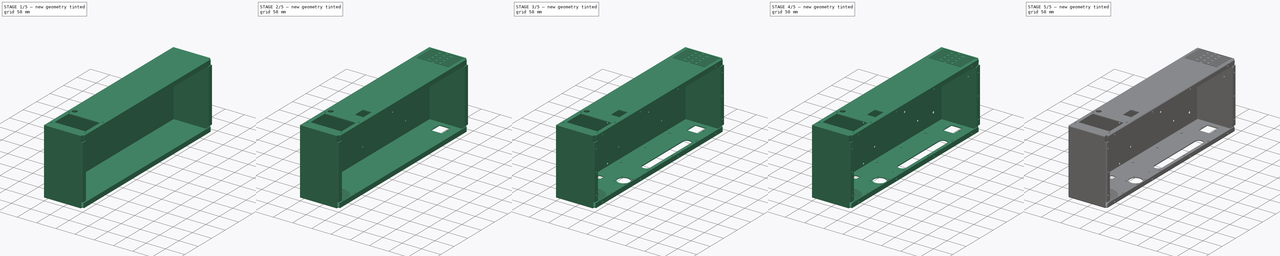
[diagram: build sequence overview — one tinted view per stage of 5, left to right]
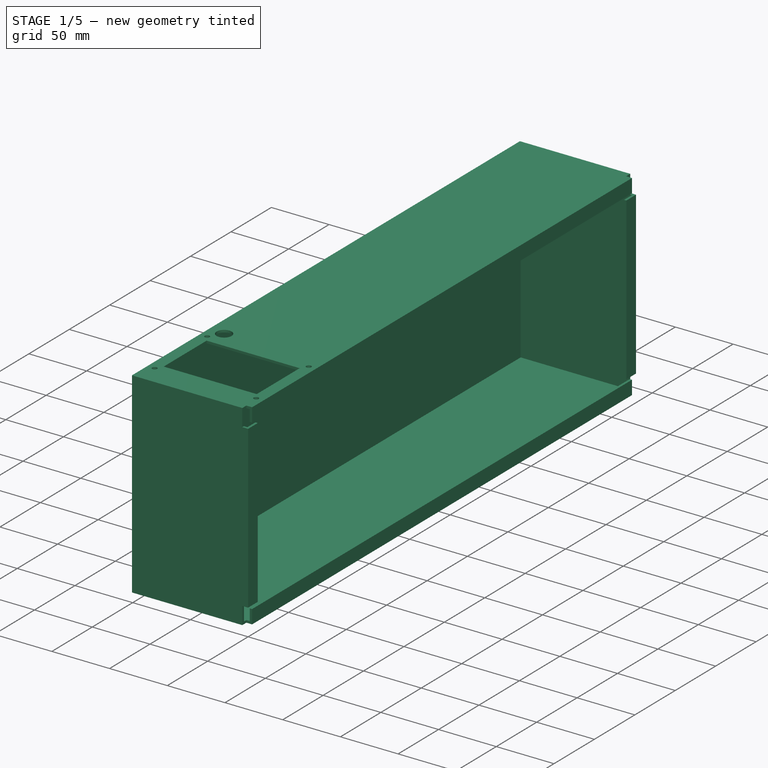
[diagram: stage 1 of 5 — iso view after this stage's code; geometry added in this stage tinted green]
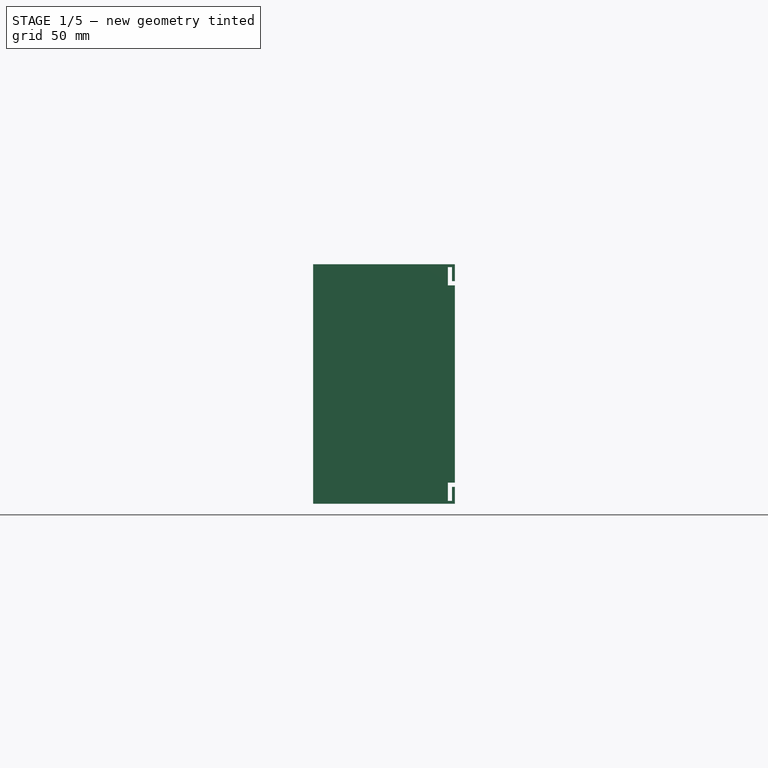
[diagram: stage 1 of 5 — front view after this stage's code; geometry added in this stage tinted green]
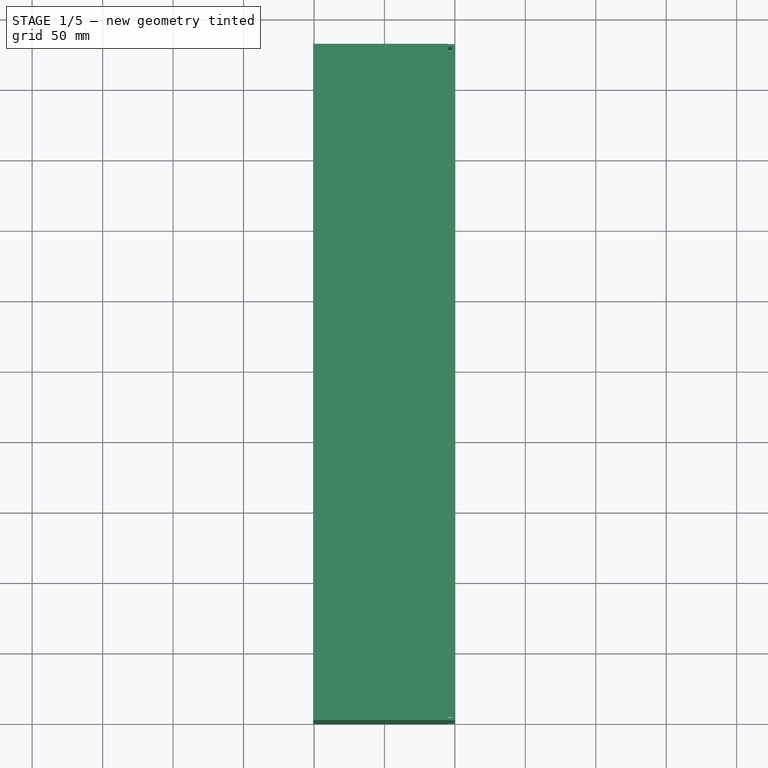
[diagram: stage 1 of 5 — top view after this stage's code; geometry added in this stage tinted green]
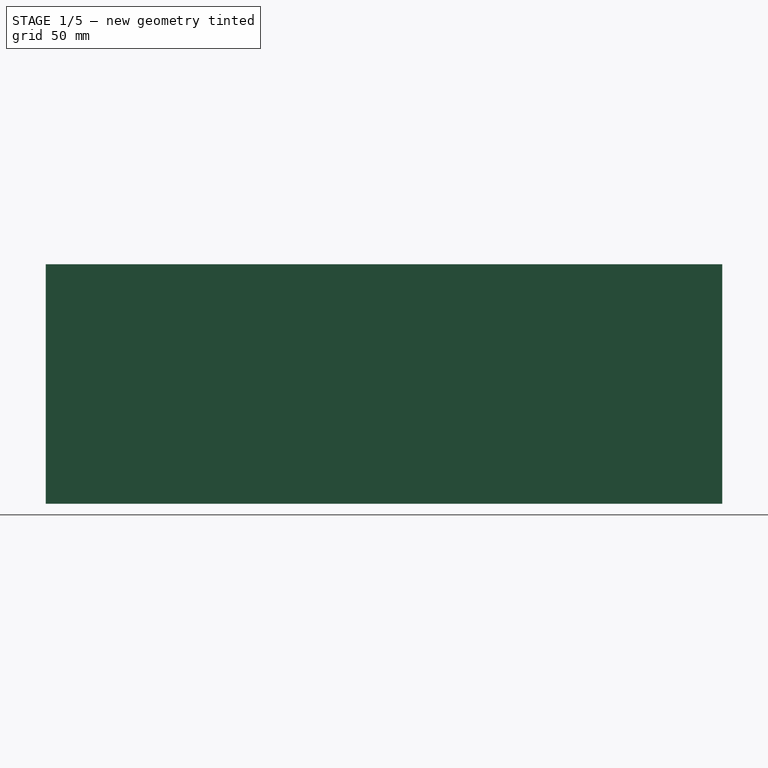
[diagram: stage 1 of 5 — right view after this stage's code; geometry added in this stage tinted green]
FCSTD DOCUMENT  (FreeCAD 0.16R5861 (Git))
Label: electronics_chassis_revA
License: All rights reserved
LicenseURL: http://en.wikipedia.org/wiki/All_rights_reserved
objects: Drawing::FeatureView×164, Sketcher::SketchObject×19, PartDesign::Pocket×18, Drawing::FeatureViewPart×13, Drawing::FeaturePage×6, PartDesign::Fillet×4, PartDesign::Chamfer×2, PartDesign::Pad×1
note: 63 computed .brp shape members not serialized (recipe doc carries the construction recipe); baked Part::Feature solids carry a one-line shape summary decoded from their .brp

FEATURE [Sketcher::SketchObject] Sketch
  sketch-geometry (4):
    g0: LineSegment StartX=0 StartY=0 StartZ=0 EndX=-100.6 EndY=0 EndZ=0
    g1: LineSegment StartX=-100.6 StartY=0 StartZ=0 EndX=-100.6 EndY=480 EndZ=0
    g2: LineSegment StartX=-100.6 StartY=480 StartZ=0 EndX=0 EndY=480 EndZ=0
    g3: LineSegment StartX=0 StartY=480 StartZ=0 EndX=0 EndY=0 EndZ=0
  constraints (11):
    c: Coincident(g0,g1)
    c: Coincident(g1,g2)
    c: Coincident(g2,g3)
    c: Coincident(g3,g0)
    c: Horizontal(g0)
    c: Horizontal(g2)
    c: Vertical(g1)
    c: Vertical(g3)
    c: Coincident(g0,g-1)
    c: DistanceX(g0) = -100.6
    c: DistanceY(g3) = -480
FEATURE [PartDesign::Pad] Pad
  Length = 170
  Length2 = 100
  Sketch = -> Sketch
  Type = 0
FEATURE [Sketcher::SketchObject] Sketch001
  ExternalGeometry = -> [Pad]
  Support = -> Pad [Face4]
  sketch-geometry (4):
    g0: LineSegment StartX=12 StartY=12 StartZ=0 EndX=468 EndY=12 EndZ=0
    g1: LineSegment StartX=468 StartY=12 StartZ=0 EndX=468 EndY=158 EndZ=0
    g2: LineSegment StartX=468 StartY=158 StartZ=0 EndX=12 EndY=158 EndZ=0
    g3: LineSegment StartX=12 StartY=158 StartZ=0 EndX=12 EndY=12 EndZ=0
  constraints (12):
    c: Coincident(g0,g1)
    c: Coincident(g0,g3)
    c: Coincident(g1,g2)
    c: Coincident(g2,g3)
    c: Horizontal(g0)
    c: Horizontal(g2)
    c: Vertical(g3)
    c: Vertical(g1)
    c: DistanceY(g-1,g0) = 12
    c: DistanceX(g-1,g0) = 12
    c: DistanceX(g0,g-5) = 12
    c: DistanceY(g-4,g2) = -12
FEATURE [PartDesign::Pocket] Pocket
  Length = 98.56
  Sketch = -> Sketch001
  Type = 0
FEATURE [Sketcher::SketchObject] Sketch031
  ExternalGeometry = -> [Pocket]
  Support = -> Pocket [Face11]
  sketch-geometry (4):
    g0: LineSegment StartX=2.03 StartY=167.97 StartZ=0 EndX=477.97 EndY=167.97 EndZ=0
    g1: LineSegment StartX=477.97 StartY=167.97 StartZ=0 EndX=477.97 EndY=2.03 EndZ=0
    g2: LineSegment StartX=477.97 StartY=2.03 StartZ=0 EndX=2.03 EndY=2.03 EndZ=0
    g3: LineSegment StartX=2.03 StartY=2.03 StartZ=0 EndX=2.03 EndY=167.97 EndZ=0
  constraints (12):
    c: Coincident(g0,g1)
    c: Coincident(g1,g2)
    c: Coincident(g2,g3)
    c: Coincident(g3,g0)
    c: Horizontal(g0)
    c: Horizontal(g2)
    c: Vertical(g1)
    c: Vertical(g3)
    c: DistanceX(g-1,g2) = 2.03
    c: DistanceY(g-1,g2) = 2.03
    c: DistanceY(g0,g-4) = 2.03
    c: DistanceX(g0,g-4) = 2.03
FEATURE [PartDesign::Pocket] Pocket001
  Length = 96.54
  Reversed = true
  Sketch = -> Sketch031
  Type = 0
FEATURE [Sketcher::SketchObject] Sketch032
  ExternalGeometry = -> [Pocket001]
  Support = -> Pocket001 [Face2]
  sketch-geometry (24):
    g0: LineSegment StartX=12 StartY=158 StartZ=0 EndX=5 EndY=158 EndZ=0
    g1: LineSegment StartX=5 StartY=158 StartZ=0 EndX=5 EndY=170 EndZ=0
    g2: LineSegment StartX=5 StartY=170 StartZ=0 EndX=0 EndY=170 EndZ=0
    g3: LineSegment StartX=0 StartY=170 StartZ=0 EndX=0 EndY=155 EndZ=0
    g4: LineSegment StartX=0 StartY=155 StartZ=0 EndX=12 EndY=155 EndZ=0
    g5: LineSegment StartX=12 StartY=155 StartZ=0 EndX=12 EndY=158 EndZ=0
    g6: LineSegment StartX=0 StartY=0 StartZ=0 EndX=0 EndY=15 EndZ=0
    g7: LineSegment StartX=0 StartY=15 StartZ=0 EndX=12 EndY=15 EndZ=0
    g8: LineSegment StartX=12 StartY=15 StartZ=0 EndX=12 EndY=12 EndZ=0
    g9: LineSegment StartX=12 StartY=12 StartZ=0 EndX=5 EndY=12 EndZ=0
    g10: LineSegment StartX=5 StartY=12 StartZ=0 EndX=5 EndY=0 EndZ=0
    g11: LineSegment StartX=5 StartY=0 StartZ=0 EndX=0 EndY=0 EndZ=0
    g12: LineSegment StartX=480 StartY=0 StartZ=0 EndX=480 EndY=15 EndZ=0
    g13: LineSegment StartX=480 StartY=15 StartZ=0 EndX=468 EndY=15 EndZ=0
    g14: LineSegment StartX=468 StartY=15 StartZ=0 EndX=468 EndY=12 EndZ=0
    g15: LineSegment StartX=468 StartY=12 StartZ=0 EndX=475 EndY=12 EndZ=0
    g16: LineSegment StartX=475 StartY=12 StartZ=0 EndX=475 EndY=0 EndZ=0
    g17: LineSegment StartX=480 StartY=0 StartZ=0 EndX=475 EndY=0 EndZ=0
    g18: LineSegment StartX=475 StartY=170 StartZ=0 EndX=480 EndY=170 EndZ=0
    g19: LineSegment StartX=480 StartY=170 StartZ=0 EndX=480 EndY=155 EndZ=0
    g20: LineSegment StartX=480 StartY=155 StartZ=0 EndX=468 EndY=155 EndZ=0
    g21: LineSegment StartX=468 StartY=155 StartZ=0 EndX=468 EndY=158 EndZ=0
    g22: LineSegment StartX=468 StartY=158 StartZ=0 EndX=475 EndY=158 EndZ=0
    g23: LineSegment StartX=475 StartY=158 StartZ=0 EndX=475 EndY=170 EndZ=0
  constraints (67):
    c: Coincident(g0,g1)
    c: Coincident(g1,g2)
    c: Coincident(g2,g3)
    c: Coincident(g3,g4)
    c: Coincident(g4,g5)
    c: Coincident(g6,g7)
    c: Coincident(g8,g9)
    c: Coincident(g9,g10)
    c: Coincident(g10,g11)
    c: Coincident(g12,g13)
    c: Coincident(g13,g14)
    c: Coincident(g14,g15)
    c: Coincident(g15,g16)
    c: Coincident(g18,g19)
    c: Coincident(g19,g20)
    c: Coincident(g20,g21)
    c: Coincident(g21,g22)
    c: Coincident(g22,g23)
    c: Vertical(g10)
    c: Vertical(g6)
    c: Vertical(g8)
    c: Horizontal(g7)
    c: Horizontal(g9)
    c: Horizontal(g11)
    c: Coincident(g6,g11)
    c: Distance(g6) = 15
    c: DistanceX(g11) = -5
    c: Coincident(g6,g-1)
    c: PointOnObject(g8,g-8)
    c: Coincident(g7,g8)
    c: Coincident(g8,g-8)
    c: Vertical(g3)
    c: Vertical(g1)
    c: Vertical(g5)
    c: Horizontal(g2)
    c: Horizontal(g0)
    c: Horizontal(g4)
    c: Coincident(g2,g-4)
    c: DistanceX(g1,g2) = -5
    c: DistanceY(g3,g2) = 15
    c: Coincident(g0,g5)
    c: PointOnObject(g0,g-5)
    c: Coincident(g0,g-6)
    c: Vertical(g23)
    c: Vertical(g21)
    c: Vertical(g19)
    c: Horizontal(g18)
    c: Horizontal(g22)
    c: Horizontal(g20)
    c: Coincident(g18,g23)
    c: DistanceY(g19) = -15
    c: DistanceX(g18) = 5
    c: Coincident(g18,g-10)
    c: Coincident(g21,g-9)
    c: Coincident(g12,g17)
    c: Horizontal(g13)
    c: Horizontal(g15)
    c: Horizontal(g17)
    c: Vertical(g14)
    c: Vertical(g16)
    c: Vertical(g12)
    c: Coincident(g16,g17)
    c: DistanceY(g12) = 15
    c: Coincident(g-10,g12)
    c: DistanceX(g16,g12) = 5
    c: PointOnObject(g-9,g15)
    c: Coincident(g14,g-9)
FEATURE [PartDesign::Pocket] Pocket002
  Length = 5
  Sketch = -> Sketch032
  Type = 0
FEATURE [Sketcher::SketchObject] Sketch004  label="lcd"
  ExternalGeometry = -> [Pocket]
  Support = -> Pocket002 [Face6]
  sketch-geometry (13):
    g0: LineSegment StartX=-90.6 StartY=25 StartZ=0 EndX=-10 EndY=25 EndZ=0
    g1: LineSegment StartX=-10 StartY=25 StartZ=0 EndX=-10 EndY=78.1 EndZ=0
    g2: LineSegment StartX=-10 StartY=78.1 StartZ=0 EndX=-90.6 EndY=78.1 EndZ=0
    g3: LineSegment StartX=-90.6 StartY=78.1 StartZ=0 EndX=-90.6 EndY=25 EndZ=0
    g4: Circle CenterX=-87.1 CenterY=94.75 CenterZ=0 NormalX=0 NormalY=0 NormalZ=1 Radius=6.5
    g5: LineSegment [constr] StartX=-94.3 StartY=84.05 StartZ=0 EndX=-6.3 EndY=84.05 EndZ=0
    g6: LineSegment [constr] StartX=-6.3 StartY=84.05 StartZ=0 EndX=-6.3 EndY=19.05 EndZ=0
    g7: LineSegment [constr] StartX=-6.3 StartY=19.05 StartZ=0 EndX=-94.3 EndY=19.05 EndZ=0
    g8: LineSegment [constr] StartX=-94.3 StartY=19.05 StartZ=0 EndX=-94.3 EndY=84.05 EndZ=0
    g9: Circle CenterX=-6.3 CenterY=84.05 CenterZ=0 NormalX=0 NormalY=0 NormalZ=1 Radius=2.11
    g10: Circle CenterX=-6.3 CenterY=19.05 CenterZ=0 NormalX=0 NormalY=0 NormalZ=1 Radius=2.11
    g11: Circle CenterX=-94.3 CenterY=19.05 CenterZ=0 NormalX=0 NormalY=0 NormalZ=1 Radius=2.11
    g12: Circle CenterX=-94.3 CenterY=84.05 CenterZ=0 NormalX=0 NormalY=0 NormalZ=1 Radius=2.11
  constraints (35):
    c: Coincident(g0,g1)
    c: Coincident(g0,g3)
    c: Coincident(g1,g2)
    c: Coincident(g2,g3)
    c: DistanceX(g-1,g1) = -10
    c: Distance(g0) = 80.6
    c: Vertical(g1)
    c: Vertical(g3)
    c: Horizontal(g0)
    c: Horizontal(g2)
    c: Distance(g3) = 53.1
    c: DistanceY(g2,g4) = 16.65
    c: Radius(g4) = 6.5
    c: DistanceY(g-1,g0) = 25
    c: DistanceX(g2,g4) = 3.5
    c: Coincident(g5,g6)
    c: Coincident(g6,g7)
    c: Coincident(g7,g8)
    c: Coincident(g8,g5)
    c: Horizontal(g5)
    c: Horizontal(g7)
    c: Vertical(g6)
    c: Vertical(g8)
    c: DistanceY(g8) = 65
    c: DistanceX(g7) = -88
    c: DistanceX(g6,g0) = -3.7
    c: DistanceY(g0,g6) = -5.95
    c: Coincident(g5,g9)
    c: Coincident(g6,g10)
    c: Coincident(g5,g12)
    c: Coincident(g7,g11)
    c: Radius(g9) = 2.11
    c: Equal(g9,g10)
    c: Equal(g10,g11)
    c: Equal(g11,g12)
FEATURE [PartDesign::Pocket] Pocket003  label="lcd-panel"
  Length = 5
  Sketch = -> Sketch004
  Type = 0
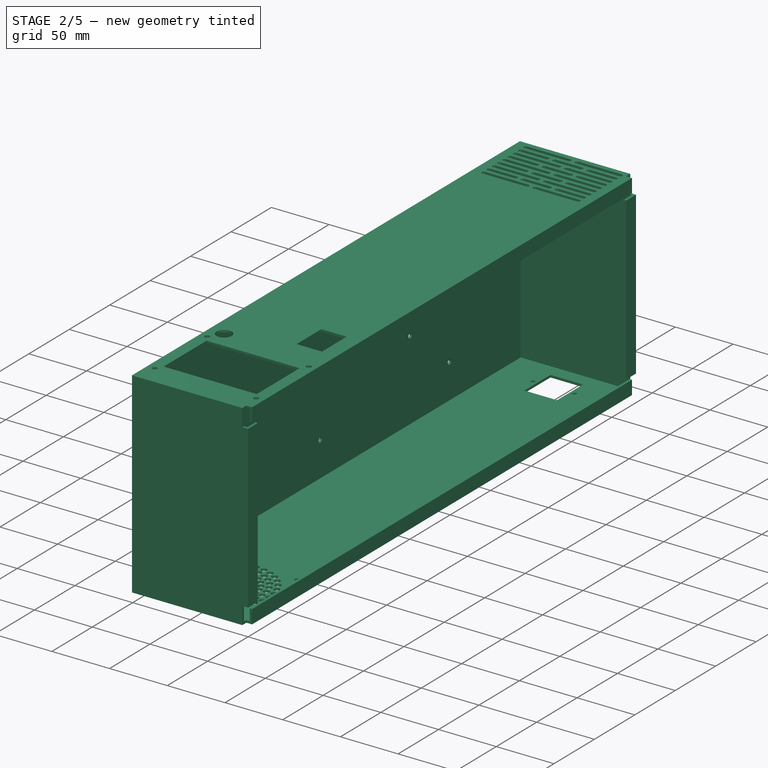
[diagram: stage 2 of 5 — iso view after this stage's code; geometry added in this stage tinted green]
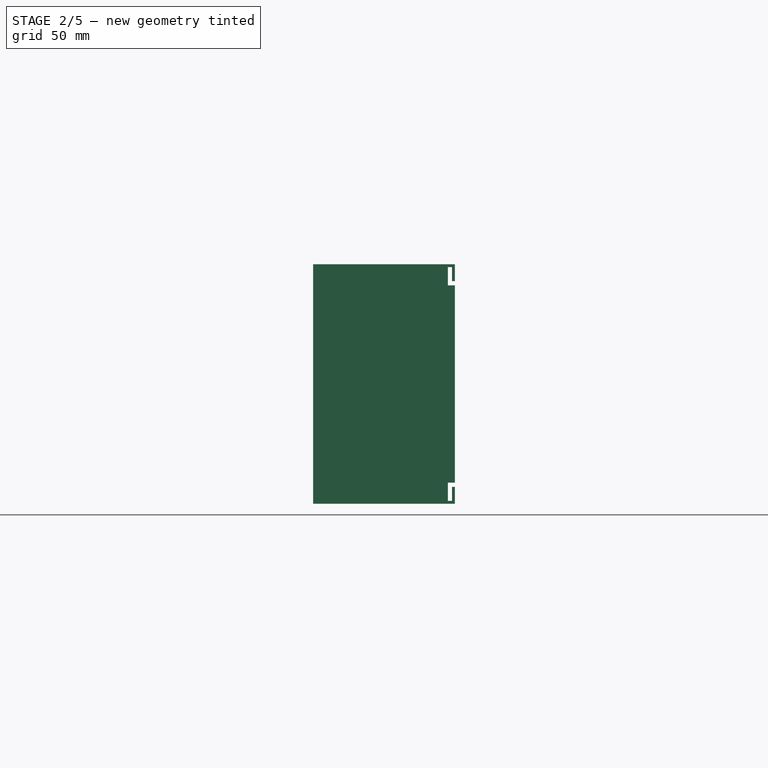
[diagram: stage 2 of 5 — front view after this stage's code; geometry added in this stage tinted green]
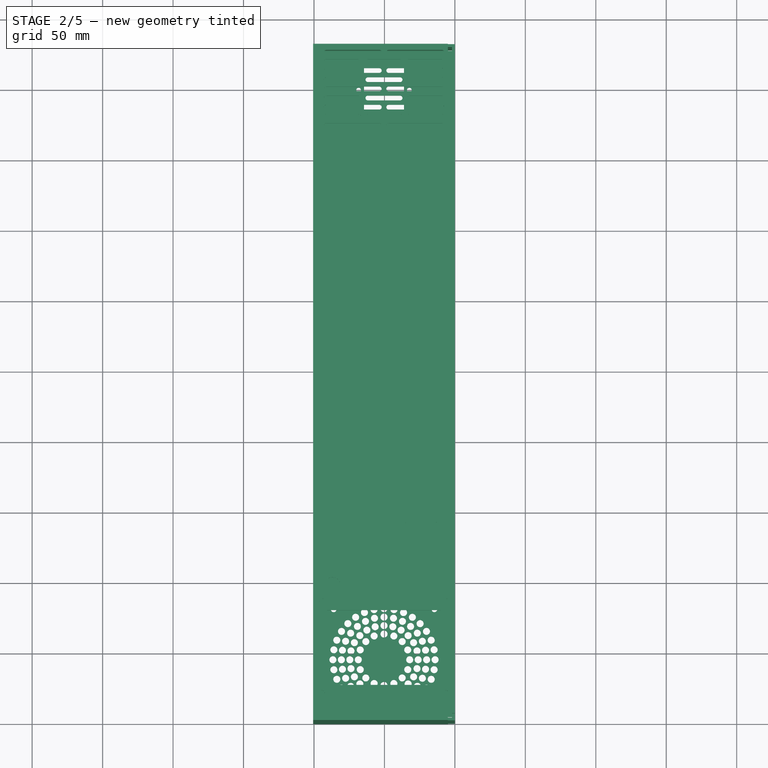
[diagram: stage 2 of 5 — top view after this stage's code; geometry added in this stage tinted green]
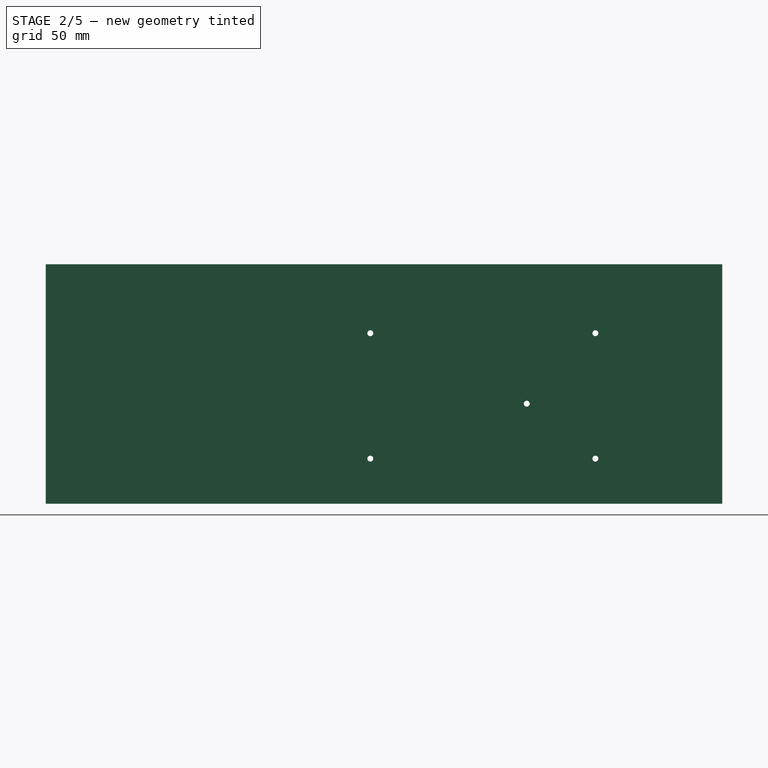
[diagram: stage 2 of 5 — right view after this stage's code; geometry added in this stage tinted green]
FEATURE [Sketcher::SketchObject] Sketch015  label="intake"
  Support = -> Pocket003 [Face6]
  sketch-geometry (99):
    g0: LineSegment [constr] StartX=-91.3 StartY=474 StartZ=0 EndX=-9.3 EndY=474 EndZ=0
    g1: LineSegment [constr] StartX=-9.3 StartY=474 StartZ=0 EndX=-9.3 EndY=422 EndZ=0
    g2: LineSegment [constr] StartX=-9.3 StartY=422 StartZ=0 EndX=-91.3 EndY=422 EndZ=0
    g3: LineSegment [constr] StartX=-91.3 StartY=422 StartZ=0 EndX=-91.3 EndY=474 EndZ=0
    g4: ArcOfCircle CenterX=-9.3 CenterY=422 CenterZ=0 NormalX=0 NormalY=0 NormalZ=1 Radius=1.65 StartAngle=4.71239 EndAngle=7.85398
    g5: ArcOfCircle CenterX=-47 CenterY=422 CenterZ=0 NormalX=0 NormalY=0 NormalZ=1 Radius=1.65 StartAngle=1.5708 EndAngle=4.71239
    g6: LineSegment StartX=-9.3 StartY=423.65 StartZ=0 EndX=-47 EndY=423.65 EndZ=0
    g7: LineSegment StartX=-9.3 StartY=420.35 StartZ=0 EndX=-47 EndY=420.35 EndZ=0
    g8: ArcOfCircle CenterX=-91.3 CenterY=422 CenterZ=0 NormalX=0 NormalY=0 NormalZ=1 Radius=1.65 StartAngle=1.5708 EndAngle=4.71239
    g9: ArcOfCircle CenterX=-53.6 CenterY=422 CenterZ=0 NormalX=0 NormalY=0 NormalZ=1 Radius=1.65 StartAngle=4.71239 EndAngle=7.85398
    g10: LineSegment StartX=-91.3 StartY=420.35 StartZ=0 EndX=-53.6 EndY=420.35 EndZ=0
    g11: LineSegment StartX=-91.3 StartY=423.65 StartZ=0 EndX=-53.6 EndY=423.65 EndZ=0
    g12: ArcOfCircle CenterX=-91.3 CenterY=428.5 CenterZ=0 NormalX=0 NormalY=0 NormalZ=1 Radius=1.65 StartAngle=1.5708 EndAngle=4.71239
    g13: ArcOfCircle CenterX=-68.3667 CenterY=428.5 CenterZ=0 NormalX=0 NormalY=0 NormalZ=1 Radius=1.65 StartAngle=4.71239 EndAngle=7.85398
    g14: LineSegment StartX=-91.3 StartY=426.85 StartZ=0 EndX=-68.3667 EndY=426.85 EndZ=0
    g15: LineSegment StartX=-91.3 StartY=430.15 StartZ=0 EndX=-68.3667 EndY=430.15 EndZ=0
    g16: ArcOfCircle CenterX=-61.7667 CenterY=428.5 CenterZ=0 NormalX=0 NormalY=0 NormalZ=1 Radius=1.65 StartAngle=1.5708 EndAngle=4.71239
    g17: ArcOfCircle CenterX=-38.8333 CenterY=428.5 CenterZ=0 NormalX=0 NormalY=0 NormalZ=1 Radius=1.65 StartAngle=4.71239 EndAngle=7.85398
    g18: LineSegment StartX=-61.7667 StartY=426.85 StartZ=0 EndX=-38.8333 EndY=426.85 EndZ=0
    g19: LineSegment StartX=-61.7667 StartY=430.15 StartZ=0 EndX=-38.8333 EndY=430.15 EndZ=0
    g20: ArcOfCircle CenterX=-32.2333 CenterY=428.5 CenterZ=0 NormalX=0 NormalY=0 NormalZ=1 Radius=1.65 StartAngle=1.5708 EndAngle=4.71239
    g21: ArcOfCircle CenterX=-9.3 CenterY=428.5 CenterZ=0 NormalX=0 NormalY=0 NormalZ=1 Radius=1.65 StartAngle=4.71239 EndAngle=7.85398
    g22: LineSegment StartX=-32.2333 StartY=426.85 StartZ=0 EndX=-9.3 EndY=426.85 EndZ=0
    g23: LineSegment StartX=-32.2333 StartY=430.15 StartZ=0 EndX=-9.3 EndY=430.15 EndZ=0
    g24: ArcOfCircle CenterX=-91.3 CenterY=435 CenterZ=0 NormalX=0 NormalY=0 NormalZ=1 Radius=1.65 StartAngle=1.5708 EndAngle=4.71239
    g25: ArcOfCircle CenterX=-53.6 CenterY=435 CenterZ=0 NormalX=0 NormalY=0 NormalZ=1 Radius=1.65 StartAngle=4.71239 EndAngle=7.85398
    g26: LineSegment StartX=-91.3 StartY=433.35 StartZ=0 EndX=-53.6 EndY=433.35 EndZ=0
    g27: LineSegment StartX=-91.3 StartY=436.65 StartZ=0 EndX=-53.6 EndY=436.65 EndZ=0
    g28: ArcOfCircle CenterX=-47 CenterY=435 CenterZ=0 NormalX=0 NormalY=0 NormalZ=1 Radius=1.65 StartAngle=1.5708 EndAngle=4.71239
    g29: ArcOfCircle CenterX=-9.3 CenterY=435 CenterZ=0 NormalX=0 NormalY=0 NormalZ=1 Radius=1.65 StartAngle=4.71239 EndAngle=7.85398
    g30: LineSegment StartX=-47 StartY=433.35 StartZ=0 EndX=-9.3 EndY=433.35 EndZ=0
    g31: LineSegment StartX=-47 StartY=436.65 StartZ=0 EndX=-9.3 EndY=436.65 EndZ=0
    g32: ArcOfCircle CenterX=-91.3 CenterY=441.5 CenterZ=0 NormalX=0 NormalY=0 NormalZ=1 Radius=1.65 StartAngle=1.5708 EndAngle=4.71239
    g33: ArcOfCircle CenterX=-68.3667 CenterY=441.5 CenterZ=0 NormalX=0 NormalY=0 NormalZ=1 Radius=1.65 StartAngle=4.71239 EndAngle=7.85398
    g34: LineSegment StartX=-91.3 StartY=439.85 StartZ=0 EndX=-68.3667 EndY=439.85 EndZ=0
    g35: LineSegment StartX=-91.3 StartY=443.15 StartZ=0 EndX=-68.3667 EndY=443.15 EndZ=0
    g36: ArcOfCircle CenterX=-61.7667 CenterY=441.5 CenterZ=0 NormalX=0 NormalY=0 NormalZ=1 Radius=1.65 StartAngle=1.5708 EndAngle=4.71239
    g37: ArcOfCircle CenterX=-38.8333 CenterY=441.5 CenterZ=0 NormalX=0 NormalY=0 NormalZ=1 Radius=1.65 StartAngle=4.71239 EndAngle=7.85398
    g38: LineSegment StartX=-61.7667 StartY=439.85 StartZ=0 EndX=-38.8333 EndY=439.85 EndZ=0
    g39: LineSegment StartX=-61.7667 StartY=443.15 StartZ=0 EndX=-38.8333 EndY=443.15 EndZ=0
    g40: ArcOfCircle CenterX=-32.2333 CenterY=441.5 CenterZ=0 NormalX=0 NormalY=0 NormalZ=1 Radius=1.65 StartAngle=1.5708 EndAngle=4.71239
    g41: ArcOfCircle CenterX=-9.3 CenterY=441.5 CenterZ=0 NormalX=0 NormalY=0 NormalZ=1 Radius=1.65 StartAngle=4.71239 EndAngle=7.85398
    g42: LineSegment StartX=-32.2333 StartY=439.85 StartZ=0 EndX=-9.3 EndY=439.85 EndZ=0
    g43: LineSegment StartX=-32.2333 StartY=443.15 StartZ=0 EndX=-9.3 EndY=443.15 EndZ=0
    g44: ArcOfCircle CenterX=-91.3 CenterY=448 CenterZ=0 NormalX=0 NormalY=0 NormalZ=1 Radius=1.65 StartAngle=1.5708 EndAngle=4.71239
    g45: ArcOfCircle CenterX=-53.6 CenterY=448 CenterZ=0 NormalX=0 NormalY=0 NormalZ=1 Radius=1.65 StartAngle=4.71239 EndAngle=7.85398
    g46: LineSegment StartX=-91.3 StartY=446.35 StartZ=0 EndX=-53.6 EndY=446.35 EndZ=0
    g47: LineSegment StartX=-91.3 StartY=449.65 StartZ=0 EndX=-53.6 EndY=449.65 EndZ=0
    g48: ArcOfCircle CenterX=-47 CenterY=448 CenterZ=0 NormalX=0 NormalY=0 NormalZ=1 Radius=1.65 StartAngle=1.5708 EndAngle=4.71239
    g49: ArcOfCircle CenterX=-9.3 CenterY=448 CenterZ=0 NormalX=0 NormalY=0 NormalZ=1 Radius=1.65 StartAngle=4.71239 EndAngle=7.85398
    g50: LineSegment StartX=-47 StartY=446.35 StartZ=0 EndX=-9.3 EndY=446.35 EndZ=0
    g51: LineSegment StartX=-47 StartY=449.65 StartZ=0 EndX=-9.3 EndY=449.65 EndZ=0
    g52: ArcOfCircle CenterX=-91.3 CenterY=454.5 CenterZ=0 NormalX=0 NormalY=0 NormalZ=1 Radius=1.65 StartAngle=1.5708 EndAngle=4.71239
    g53: ArcOfCircle CenterX=-68.3667 CenterY=454.5 CenterZ=0 NormalX=0 NormalY=0 NormalZ=1 Radius=1.65 StartAngle=4.71239 EndAngle=7.85398
    g54: LineSegment StartX=-91.3 StartY=452.85 StartZ=0 EndX=-68.3667 EndY=452.85 EndZ=0
    g55: LineSegment StartX=-91.3 StartY=456.15 StartZ=0 EndX=-68.3667 EndY=456.15 EndZ=0
    g56: ArcOfCircle CenterX=-61.7667 CenterY=454.5 CenterZ=0 NormalX=0 NormalY=0 NormalZ=1 Radius=1.65 StartAngle=1.5708 EndAngle=4.71239
    g57: ArcOfCircle CenterX=-38.8333 CenterY=454.5 CenterZ=0 NormalX=0 NormalY=0 NormalZ=1 Radius=1.65 StartAngle=4.71239 EndAngle=7.85398
    g58: LineSegment StartX=-61.7667 StartY=452.85 StartZ=0 EndX=-38.8333 EndY=452.85 EndZ=0
    g59: LineSegment StartX=-61.7667 StartY=456.15 StartZ=0 EndX=-38.8333 EndY=456.15 EndZ=0
    g60: ArcOfCircle CenterX=-32.2333 CenterY=454.5 CenterZ=0 NormalX=0 NormalY=0 NormalZ=1 Radius=1.65 StartAngle=1.5708 EndAngle=4.71239
    g61: ArcOfCircle CenterX=-9.3 CenterY=454.5 CenterZ=0 NormalX=0 NormalY=0 NormalZ=1 Radius=1.65 StartAngle=4.71239 EndAngle=7.85398
    g62: LineSegment StartX=-32.2333 StartY=452.85 StartZ=0 EndX=-9.3 EndY=452.85 EndZ=0
    g63: LineSegment StartX=-32.2333 StartY=456.15 StartZ=0 EndX=-9.3 EndY=456.15 EndZ=0
    g64: ArcOfCircle CenterX=-91.3 CenterY=461 CenterZ=0 NormalX=0 NormalY=0 NormalZ=1 Radius=1.65 StartAngle=1.5708 EndAngle=4.71239
    g65: ArcOfCircle CenterX=-53.6 CenterY=461 CenterZ=0 NormalX=0 NormalY=0 NormalZ=1 Radius=1.65 StartAngle=4.71239 EndAngle=7.85398
    g66: LineSegment StartX=-91.3 StartY=459.35 StartZ=0 EndX=-53.6 EndY=459.35 EndZ=0
    g67: LineSegment StartX=-91.3 StartY=462.65 StartZ=0 EndX=-53.6 EndY=462.65 EndZ=0
    g68: ArcOfCircle CenterX=-47 CenterY=461 CenterZ=0 NormalX=0 NormalY=0 NormalZ=1 Radius=1.65 StartAngle=1.5708 EndAngle=4.71239
    g69: ArcOfCircle CenterX=-9.3 CenterY=461 CenterZ=0 NormalX=0 NormalY=0 NormalZ=1 Radius=1.65 StartAngle=4.71239 EndAngle=7.85398
    g70: LineSegment StartX=-47 StartY=459.35 StartZ=0 EndX=-9.3 EndY=459.35 EndZ=0
    g71: LineSegment StartX=-47 StartY=462.65 StartZ=0 EndX=-9.3 EndY=462.65 EndZ=0
    g72: ArcOfCircle CenterX=-91.3 CenterY=467.5 CenterZ=0 NormalX=0 NormalY=0 NormalZ=1 Radius=1.65 StartAngle=1.5708 EndAngle=4.71239
    g73: ArcOfCircle CenterX=-68.3667 CenterY=467.5 CenterZ=0 NormalX=0 NormalY=0 NormalZ=1 Radius=1.65 StartAngle=4.71239 EndAngle=7.85398
    g74: LineSegment StartX=-91.3 StartY=465.85 StartZ=0 EndX=-68.3667 EndY=465.85 EndZ=0
    g75: LineSegment StartX=-91.3 StartY=469.15 StartZ=0 EndX=-68.3667 EndY=469.15 EndZ=0
    g76: ArcOfCircle CenterX=-61.7667 CenterY=467.5 CenterZ=0 NormalX=0 NormalY=0 NormalZ=1 Radius=1.65 StartAngle=1.5708 EndAngle=4.71239
    g77: ArcOfCircle CenterX=-38.8333 CenterY=467.5 CenterZ=0 NormalX=0 NormalY=0 NormalZ=1 Radius=1.65 StartAngle=4.71239 EndAngle=7.85398
    g78: LineSegment StartX=-61.7667 StartY=465.85 StartZ=0 EndX=-38.8333 EndY=465.85 EndZ=0
    g79: LineSegment StartX=-61.7667 StartY=469.15 StartZ=0 EndX=-38.8333 EndY=469.15 EndZ=0
    g80: ArcOfCircle CenterX=-32.2333 CenterY=467.5 CenterZ=0 NormalX=0 NormalY=0 NormalZ=1 Radius=1.65 StartAngle=1.5708 EndAngle=4.71239
    g81: ArcOfCircle CenterX=-9.3 CenterY=467.5 CenterZ=0 NormalX=0 NormalY=0 NormalZ=1 Radius=1.65 StartAngle=4.71239 EndAngle=7.85398
    g82: LineSegment StartX=-32.2333 StartY=465.85 StartZ=0 EndX=-9.3 EndY=465.85 EndZ=0
    g83: LineSegment StartX=-32.2333 StartY=469.15 StartZ=0 EndX=-9.3 EndY=469.15 EndZ=0
    g84: ArcOfCircle CenterX=-91.3 CenterY=474 CenterZ=0 NormalX=0 NormalY=0 NormalZ=1 Radius=1.65 StartAngle=1.5708 EndAngle=4.71239
    g85: ArcOfCircle CenterX=-53.6 CenterY=474 CenterZ=0 NormalX=0 NormalY=0 NormalZ=1 Radius=1.65 StartAngle=4.71239 EndAngle=7.85398
    g86: LineSegment StartX=-91.3 StartY=472.35 StartZ=0 EndX=-53.6 EndY=472.35 EndZ=0
    g87: LineSegment StartX=-91.3 StartY=475.65 StartZ=0 EndX=-53.6 EndY=475.65 EndZ=0
    g88: LineSegment [constr] StartX=-91.3 StartY=435 StartZ=0 EndX=-9.3 EndY=435 EndZ=0
    g89: LineSegment [constr] StartX=-9.3 StartY=448 StartZ=0 EndX=-91.3 EndY=448 EndZ=0
    g90: LineSegment [constr] StartX=-91.3 StartY=441.5 StartZ=0 EndX=-9.3 EndY=441.5 EndZ=0
    g91: LineSegment [constr] StartX=-91.3 StartY=428.5 StartZ=0 EndX=-9.3 EndY=428.5 EndZ=0
    g92: LineSegment [constr] StartX=-91.3 StartY=454.5 StartZ=0 EndX=-9.3 EndY=454.5 EndZ=0
    g93: LineSegment [constr] StartX=-91.3 StartY=461 StartZ=0 EndX=-9.3 EndY=461 EndZ=0
    g94: LineSegment [constr] StartX=-91.3 StartY=467.5 StartZ=0 EndX=-9.3 EndY=467.5 EndZ=0
    g95: ArcOfCircle CenterX=-47 CenterY=474 CenterZ=0 NormalX=0 NormalY=0 NormalZ=1 Radius=1.65 StartAngle=1.5708 EndAngle=4.71239
    g96: ArcOfCircle CenterX=-9.3 CenterY=474 CenterZ=0 NormalX=0 NormalY=0 NormalZ=1 Radius=1.65 StartAngle=4.71239 EndAngle=7.85398
    g97: LineSegment StartX=-47 StartY=472.35 StartZ=0 EndX=-9.3 EndY=472.35 EndZ=0
    g98: LineSegment StartX=-47 StartY=475.65 StartZ=0 EndX=-9.3 EndY=475.65 EndZ=0
  constraints (243):
    c: Coincident(g1,g2)
    c: Coincident(g2,g3)
    c: Coincident(g3,g0)
    c: Horizontal(g0)
    c: Horizontal(g2)
    c: Vertical(g1)
    c: Vertical(g3)
    c: DistanceX(g2) = -82
    c: DistanceX(g-1,g1) = -9.3
    c: Tangent(g4,g7) = 1.5708
    c: Tangent(g4,g6) = -1.5708
    c: Tangent(g6,g5) = -1.5708
    c: Tangent(g7,g5) = 1.5708
    c: Horizontal(g6)
    c: Equal(g4,g5)
    c: Tangent(g8,g11) = 1.5708
    c: Tangent(g8,g10) = -1.5708
    c: Tangent(g10,g9) = -1.5708
    c: Tangent(g11,g9) = 1.5708
    c: Horizontal(g10)
    c: Equal(g8,g9)
    c: Tangent(g12,g15) = 1.5708
    c: Tangent(g12,g14) = -1.5708
    c: Tangent(g14,g13) = -1.5708
    c: Tangent(g15,g13) = 1.5708
    c: Horizontal(g14)
    c: Equal(g12,g13)
    c: Tangent(g16,g19) = 1.5708
    c: Tangent(g16,g18) = -1.5708
    c: Tangent(g18,g17) = -1.5708
    c: Tangent(g19,g17) = 1.5708
    c: Horizontal(g18)
    c: Equal(g16,g17)
    c: Tangent(g20,g23) = 1.5708
    c: Tangent(g20,g22) = -1.5708
    c: Tangent(g22,g21) = -1.5708
    c: Tangent(g23,g21) = 1.5708
    c: Horizontal(g22)
    c: Equal(g20,g21)
    c: Tangent(g24,g27) = 1.5708
    c: Tangent(g24,g26) = -1.5708
    c: Tangent(g26,g25) = -1.5708
    c: Tangent(g27,g25) = 1.5708
    c: Horizontal(g26)
    c: Equal(g24,g25)
    c: Tangent(g28,g31) = 1.5708
    c: Tangent(g28,g30) = -1.5708
    c: Tangent(g30,g29) = -1.5708
    c: Tangent(g31,g29) = 1.5708
    c: Horizontal(g30)
    c: Equal(g28,g29)
    c: Tangent(g32,g35) = 1.5708
    c: Tangent(g32,g34) = -1.5708
    c: Tangent(g34,g33) = -1.5708
    c: Tangent(g35,g33) = 1.5708
    c: Horizontal(g34)
    c: Equal(g32,g33)
    c: Tangent(g36,g39) = 1.5708
    c: Tangent(g36,g38) = -1.5708
    c: Tangent(g38,g37) = -1.5708
    c: Tangent(g39,g37) = 1.5708
    c: Horizontal(g38)
    c: Equal(g36,g37)
    c: Tangent(g40,g43) = 1.5708
    c: Tangent(g40,g42) = -1.5708
    c: Tangent(g42,g41) = -1.5708
    c: Tangent(g43,g41) = 1.5708
    c: Horizontal(g42)
    c: Equal(g40,g41)
    c: Tangent(g44,g47) = 1.5708
    c: Tangent(g44,g46) = -1.5708
    c: Tangent(g46,g45) = -1.5708
    c: Tangent(g47,g45) = 1.5708
    c: Horizontal(g46)
    c: Equal(g44,g45)
    c: Tangent(g48,g51) = 1.5708
    c: Tangent(g48,g50) = -1.5708
    c: Tangent(g50,g49) = -1.5708
    c: Tangent(g51,g49) = 1.5708
    c: Horizontal(g50)
    c: Equal(g48,g49)
    c: Coincident(g1,g4)
    c: Radius(g4) = 1.65
    c: Coincident(g2,g8)
    c: DistanceX(g5,g9) = -6.6
    c: Tangent(g52,g55) = 1.5708
    c: Tangent(g52,g54) = -1.5708
    c: Tangent(g54,g53) = -1.5708
    c: Tangent(g55,g53) = 1.5708
    c: Horizontal(g54)
    c: Equal(g52,g53)
    c: Tangent(g56,g59) = 1.5708
    c: Tangent(g56,g58) = -1.5708
    c: Tangent(g58,g57) = -1.5708
    c: Tangent(g59,g57) = 1.5708
    c: Horizontal(g58)
    c: Equal(g56,g57)
    c: Tangent(g60,g63) = 1.5708
    c: Tangent(g60,g62) = -1.5708
    c: Tangent(g62,g61) = -1.5708
    c: Tangent(g63,g61) = 1.5708
    c: Horizontal(g62)
    c: Equal(g60,g61)
    c: Tangent(g64,g67) = 1.5708
    c: Tangent(g64,g66) = -1.5708
    c: Tangent(g66,g65) = -1.5708
    c: Tangent(g67,g65) = 1.5708
    c: Horizontal(g66)
    c: Equal(g64,g65)
    c: Tangent(g68,g71) = 1.5708
    c: Tangent(g68,g70) = -1.5708
    c: Tangent(g70,g69) = -1.5708
    c: Tangent(g71,g69) = 1.5708
    c: Horizontal(g70)
    c: Equal(g68,g69)
    c: Tangent(g72,g75) = 1.5708
    c: Tangent(g72,g74) = -1.5708
    c: Tangent(g74,g73) = -1.5708
    c: Tangent(g75,g73) = 1.5708
    c: Horizontal(g74)
    c: Equal(g72,g73)
    c: Tangent(g76,g79) = 1.5708
    c: Tangent(g76,g78) = -1.5708
    c: Tangent(g78,g77) = -1.5708
    c: Tangent(g79,g77) = 1.5708
    c: Horizontal(g78)
    c: Equal(g76,g77)
    c: Tangent(g80,g83) = 1.5708
    c: Tangent(g80,g82) = -1.5708
    c: Tangent(g82,g81) = -1.5708
    c: Tangent(g83,g81) = 1.5708
    c: Horizontal(g82)
    c: Equal(g80,g81)
    c: Tangent(g84,g87) = 1.5708
    c: Tangent(g84,g86) = -1.5708
    c: Tangent(g86,g85) = -1.5708
    c: Tangent(g87,g85) = 1.5708
    c: Horizontal(g86)
    c: Equal(g84,g85)
    c: Horizontal(g94)
    c: Horizontal(g93)
    c: Horizontal(g92)
    c: Horizontal(g89)
    c: Horizontal(g90)
    c: Horizontal(g88)
    c: Horizontal(g91)
    c: PointOnObject(g94,g1)
    c: PointOnObject(g93,g1)
    c: DistanceY(g94,g93) = -6.5
    c: PointOnObject(g92,g1)
    c: DistanceY(g92,g93) = 6.5
    c: PointOnObject(g89,g1)
    c: DistanceY(g89,g92) = 6.5
    c: DistanceY(g94,g0) = 6.5
    c: PointOnObject(g90,g1)
    c: DistanceY(g90,g89) = 6.5
    c: DistanceY(g88,g90) = 6.5
    c: PointOnObject(g88,g1)
    c: PointOnObject(g91,g1)
    c: DistanceY(g91,g88) = 6.5
    c: DistanceY(g1,g91) = 6.5
    c: Equal(g4,g9)
    c: Equal(g9,g21)
    c: Equal(g21,g13)
    c: Equal(g13,g17)
    c: Equal(g17,g25)
    c: Equal(g25,g29)
    c: Equal(g29,g33)
    c: Equal(g33,g37)
    c: Equal(g37,g41)
    c: Equal(g41,g49)
    c: Equal(g49,g45)
    c: Equal(g45,g53)
    c: Equal(g53,g57)
    c: Equal(g57,g61)
    c: Equal(g61,g69)
    c: Equal(g69,g65)
    c: Equal(g65,g81)
    c: Equal(g81,g77)
    c: Equal(g77,g73)
    c: Equal(g73,g85)
    c: PointOnObject(g91,g3)
    c: PointOnObject(g88,g3)
    c: PointOnObject(g90,g3)
    c: PointOnObject(g89,g3)
    c: PointOnObject(g92,g3)
    c: PointOnObject(g93,g3)
    c: PointOnObject(g94,g3)
    c: Coincident(g12,g91)
    c: Coincident(g24,g88)
    c: Coincident(g32,g90)
    c: PointOnObject(g16,g91)
    c: PointOnObject(g20,g91)
    c: DistanceX(g13,g16) = 6.6
    c: Equal(g7,g10)
    c: Equal(g10,g30)
    c: Equal(g30,g26)
    c: Equal(g26,g46)
    c: Equal(g46,g50)
    c: Equal(g50,g66)
    c: Equal(g66,g70)
    c: Equal(g70,g86)
    c: DistanceX(g17,g20) = 6.6
    c: Coincident(g21,g91)
    c: Coincident(g44,g89)
    c: Coincident(g52,g92)
    c: Coincident(g64,g93)
    c: Coincident(g72,g94)
    c: Coincident(g84,g0)
    c: Tangent(g95,g98) = 1.5708
    c: Tangent(g95,g97) = -1.5708
    c: Tangent(g97,g96) = -1.5708
    c: Tangent(g98,g96) = 1.5708
    c: Horizontal(g97)
    c: Equal(g95,g96)
    c: Equal(g4,g96)
    c: Coincident(g0,g1)
    c: Coincident(g0,g96)
    c: Coincident(g81,g94)
    c: Coincident(g69,g93)
    c: Coincident(g61,g92)
    c: Coincident(g49,g89)
    c: Coincident(g41,g90)
    c: Coincident(g29,g88)
    c: Equal(g14,g18)
    c: Equal(g18,g22)
    c: Equal(g22,g39)
    c: Equal(g39,g35)
    c: Equal(g35,g43)
    c: Equal(g43,g62)
    c: Equal(g62,g58)
    c: Equal(g58,g54)
    c: Equal(g54,g74)
    c: Equal(g74,g78)
    c: Equal(g78,g82)
    c: PointOnObject(g36,g90)
    c: PointOnObject(g56,g92)
    c: PointOnObject(g76,g94)
    c: DistanceX(g85,g95) = 6.6
    c: DistanceX(g73,g76) = 6.6
    c: DistanceX(g53,g56) = 6.6
    c: DistanceX(g33,g36) = 6.6
    c: DistanceY(g-1,g1) = 422
FEATURE [PartDesign::Pocket] Pocket004  label="air-inlet"
  Length = 5
  Sketch = -> Sketch015
  Type = 0
FEATURE [Sketcher::SketchObject] Sketch014  label="pwr"
  Placement = pos=(0,0,170) rot=(0,0,1;0rad)
  Support = -> Pocket004 [Face6]
  sketch-geometry (8):
    g0: LineSegment StartX=-34.5 StartY=140.6 StartZ=0 EndX=-13.5 EndY=140.6 EndZ=0
    g1: LineSegment StartX=-13 StartY=140.1 StartZ=0 EndX=-13 EndY=110.5 EndZ=0
    g2: LineSegment StartX=-13.5 StartY=110 StartZ=0 EndX=-34.5 EndY=110 EndZ=0
    g3: LineSegment StartX=-35 StartY=110.5 StartZ=0 EndX=-35 EndY=140.1 EndZ=0
    g4: ArcOfCircle CenterX=-34.5 CenterY=140.1 CenterZ=0 NormalX=0 NormalY=0 NormalZ=1 Radius=0.5 StartAngle=1.5708 EndAngle=3.14159
    g5: ArcOfCircle CenterX=-34.5 CenterY=110.5 CenterZ=0 NormalX=0 NormalY=0 NormalZ=1 Radius=0.5 StartAngle=3.14159 EndAngle=4.71239
    g6: ArcOfCircle CenterX=-13.5 CenterY=110.5 CenterZ=0 NormalX=0 NormalY=0 NormalZ=1 Radius=0.5 StartAngle=4.71239 EndAngle=6.28319
    g7: ArcOfCircle CenterX=-13.5 CenterY=140.1 CenterZ=0 NormalX=0 NormalY=0 NormalZ=1 Radius=0.5 StartAngle=0 EndAngle=1.5708
  constraints (20):
    c: Horizontal(g0)
    c: Horizontal(g2)
    c: Vertical(g1)
    c: Vertical(g3)
    c: Tangent(g0,g4) = 1.5708
    c: Tangent(g3,g4) = 1.5708
    c: Tangent(g3,g5) = 1.5708
    c: Tangent(g2,g5) = 1.5708
    c: Tangent(g2,g6) = 1.5708
    c: Tangent(g1,g6) = 1.5708
    c: Tangent(g1,g7) = 1.5708
    c: Tangent(g0,g7) = 1.5708
    c: Radius(g4) = 0.5
    c: Equal(g4,g7)
    c: Equal(g7,g6)
    c: Equal(g6,g5)
    c: DistanceX(g-1,g1) = -13
    c: DistanceY(g-1,g2) = 110
    c: Distance(g0) = 21
    c: DistanceY(g2,g0) = 30.6
FEATURE [PartDesign::Pocket] Pocket005  label="pwr-switch"
  Length = 5
  Sketch = -> Sketch014
  Type = 0
FEATURE [Sketcher::SketchObject] Sketch016  label="exhaust"
  Placement = pos=(0,0,0) rot=(1,0,0;3.14159rad)
  Support = -> Pocket005 [Face4]
  sketch-geometry (163):
    g0: LineSegment [constr] StartX=-86.05 StartY=-10 StartZ=0 EndX=-14.55 EndY=-10 EndZ=0
    g1: LineSegment [constr] StartX=-14.55 StartY=-10 StartZ=0 EndX=-14.55 EndY=-81.5 EndZ=0
    g2: LineSegment [constr] StartX=-14.55 StartY=-81.5 StartZ=0 EndX=-86.05 EndY=-81.5 EndZ=0
    g3: LineSegment [constr] StartX=-86.05 StartY=-81.5 StartZ=0 EndX=-86.05 EndY=-10 EndZ=0
    g4: Circle CenterX=-86.05 CenterY=-10 CenterZ=0 NormalX=0 NormalY=0 NormalZ=1 Radius=2
    g5: Circle CenterX=-14.55 CenterY=-10 CenterZ=0 NormalX=0 NormalY=0 NormalZ=1 Radius=2
    g6: Circle CenterX=-14.55 CenterY=-81.5 CenterZ=0 NormalX=0 NormalY=0 NormalZ=1 Radius=2
    g7: Circle CenterX=-86.05 CenterY=-81.5 CenterZ=0 NormalX=0 NormalY=0 NormalZ=1 Radius=2
    g8: Circle [constr] CenterX=-50.3 CenterY=-45.75 CenterZ=0 NormalX=0 NormalY=0 NormalZ=1 Radius=16
    g9: Circle [constr] CenterX=-50.3 CenterY=-45.75 CenterZ=0 NormalX=0 NormalY=0 NormalZ=1 Radius=18.25
    g10: Circle [constr] CenterX=-50.3 CenterY=-45.75 CenterZ=0 NormalX=0 NormalY=0 NormalZ=1 Radius=24.25
    g11: Circle [constr] CenterX=-50.3 CenterY=-45.75 CenterZ=0 NormalX=0 NormalY=0 NormalZ=1 Radius=30.25
    g12: Circle [constr] CenterX=-50.3 CenterY=-45.75 CenterZ=0 NormalX=0 NormalY=0 NormalZ=1 Radius=36.25
    g13: LineSegment [constr] StartX=-50.3 StartY=-9.5 StartZ=0 EndX=-50.3 EndY=-82 EndZ=0
    g14: LineSegment [constr] StartX=-86.55 StartY=-45.75 StartZ=0 EndX=-14.05 EndY=-45.75 EndZ=0
    g15: LineSegment [constr] StartX=-85.8535 StartY=-38.678 StartZ=0 EndX=-14.7465 EndY=-52.822 EndZ=0
    g16: LineSegment [constr] StartX=-83.7906 StartY=-31.8777 StartZ=0 EndX=-16.8094 EndY=-59.6223 EndZ=0
    g17: LineSegment [constr] StartX=-80.4408 StartY=-25.6106 StartZ=0 EndX=-20.1592 EndY=-65.8894 EndZ=0
    g18: LineSegment [constr] StartX=-75.9326 StartY=-20.1174 StartZ=0 EndX=-24.6674 EndY=-71.3826 EndZ=0
    g19: LineSegment [constr] StartX=-70.4394 StartY=-15.6092 StartZ=0 EndX=-30.1606 EndY=-75.8908 EndZ=0
    g20: LineSegment [constr] StartX=-64.1723 StartY=-12.2594 StartZ=0 EndX=-36.4277 EndY=-79.2406 EndZ=0
    g21: LineSegment [constr] StartX=-43.228 StartY=-10.1965 StartZ=0 EndX=-57.372 EndY=-81.3035 EndZ=0
    g22: LineSegment [constr] StartX=-36.4277 StartY=-12.2594 StartZ=0 EndX=-64.1723 EndY=-79.2406 EndZ=0
    g23: LineSegment [constr] StartX=-70.4394 StartY=-75.8908 StartZ=0 EndX=-30.1606 EndY=-15.6092 EndZ=0
    g24: LineSegment [constr] StartX=-24.6674 StartY=-20.1174 StartZ=0 EndX=-75.9326 EndY=-71.3826 EndZ=0
    g25: LineSegment [constr] StartX=-80.4408 StartY=-65.8894 StartZ=0 EndX=-20.1592 EndY=-25.6106 EndZ=0
    g26: LineSegment [constr] StartX=-83.7906 StartY=-59.6223 StartZ=0 EndX=-16.8094 EndY=-31.8777 EndZ=0
    g27: LineSegment [constr] StartX=-14.7465 StartY=-38.678 StartZ=0 EndX=-85.8535 EndY=-52.822 EndZ=0
    g28: LineSegment [constr] StartX=-57.372 StartY=-10.1965 StartZ=0 EndX=-43.228 EndY=-81.3035 EndZ=0
    g29: Circle CenterX=-50.3 CenterY=-9.5 CenterZ=0 NormalX=0 NormalY=0 NormalZ=1 Radius=2.5
    g30: Circle CenterX=-43.228 CenterY=-10.1965 CenterZ=0 NormalX=0 NormalY=0 NormalZ=1 Radius=2.5
    g31: Circle CenterX=-36.4277 CenterY=-12.2594 CenterZ=0 NormalX=0 NormalY=0 NormalZ=1 Radius=2.5
    g32: Circle CenterX=-30.1606 CenterY=-15.6092 CenterZ=0 NormalX=0 NormalY=0 NormalZ=1 Radius=2.5
    g33: Circle CenterX=-24.6674 CenterY=-20.1174 CenterZ=0 NormalX=0 NormalY=0 NormalZ=1 Radius=2.5
    g34: Circle CenterX=-20.1592 CenterY=-25.6106 CenterZ=0 NormalX=0 NormalY=0 NormalZ=1 Radius=2.5
    g35: Circle CenterX=-16.8094 CenterY=-31.8777 CenterZ=0 NormalX=0 NormalY=0 NormalZ=1 Radius=2.5
    g36: Circle CenterX=-14.7465 CenterY=-38.678 CenterZ=0 NormalX=0 NormalY=0 NormalZ=1 Radius=2.5
    g37: Circle CenterX=-14.05 CenterY=-45.75 CenterZ=0 NormalX=0 NormalY=0 NormalZ=1 Radius=2.5
    g38: Circle CenterX=-57.372 CenterY=-10.1965 CenterZ=0 NormalX=0 NormalY=0 NormalZ=1 Radius=2.5
    g39: Circle CenterX=-64.1723 CenterY=-12.2594 CenterZ=0 NormalX=0 NormalY=0 NormalZ=1 Radius=2.5
    g40: Circle CenterX=-70.4394 CenterY=-15.6092 CenterZ=0 NormalX=0 NormalY=0 NormalZ=1 Radius=2.5
    g41: Circle CenterX=-75.9326 CenterY=-20.1174 CenterZ=0 NormalX=0 NormalY=0 NormalZ=1 Radius=2.5
    g42: Circle CenterX=-80.4408 CenterY=-25.6106 CenterZ=0 NormalX=0 NormalY=0 NormalZ=1 Radius=2.5
    g43: Circle CenterX=-83.7906 CenterY=-31.8777 CenterZ=0 NormalX=0 NormalY=0 NormalZ=1 Radius=2.5
    g44: Circle CenterX=-85.8535 CenterY=-38.678 CenterZ=0 NormalX=0 NormalY=0 NormalZ=1 Radius=2.5
    g45: Circle CenterX=-86.55 CenterY=-45.75 CenterZ=0 NormalX=0 NormalY=0 NormalZ=1 Radius=2.5
    g46: Circle CenterX=-85.8535 CenterY=-52.822 CenterZ=0 NormalX=0 NormalY=0 NormalZ=1 Radius=2.5
    g47: Circle CenterX=-83.7906 CenterY=-59.6223 CenterZ=0 NormalX=0 NormalY=0 NormalZ=1 Radius=2.5
    g48: Circle CenterX=-80.4408 CenterY=-65.8894 CenterZ=0 NormalX=0 NormalY=0 NormalZ=1 Radius=2.5
    g49: Circle CenterX=-75.9326 CenterY=-71.3826 CenterZ=0 NormalX=0 NormalY=0 NormalZ=1 Radius=2.5
    g50: Circle CenterX=-70.4394 CenterY=-75.8908 CenterZ=0 NormalX=0 NormalY=0 NormalZ=1 Radius=2.5
    g51: Circle CenterX=-64.1723 CenterY=-79.2406 CenterZ=0 NormalX=0 NormalY=0 NormalZ=1 Radius=2.5
    g52: Circle CenterX=-57.372 CenterY=-81.3035 CenterZ=0 NormalX=0 NormalY=0 NormalZ=1 Radius=2.5
    g53: Circle CenterX=-50.3 CenterY=-82 CenterZ=0 NormalX=0 NormalY=0 NormalZ=1 Radius=2.5
    g54: Circle CenterX=-43.228 CenterY=-81.3035 CenterZ=0 NormalX=0 NormalY=0 NormalZ=1 Radius=2.5
    g55: Circle CenterX=-36.4277 CenterY=-79.2406 CenterZ=0 NormalX=0 NormalY=0 NormalZ=1 Radius=2.5
    g56: Circle CenterX=-30.1606 CenterY=-75.8908 CenterZ=0 NormalX=0 NormalY=0 NormalZ=1 Radius=2.5
    g57: Circle CenterX=-24.6674 CenterY=-71.3826 CenterZ=0 NormalX=0 NormalY=0 NormalZ=1 Radius=2.5
    g58: Circle CenterX=-20.1592 CenterY=-65.8894 CenterZ=0 NormalX=0 NormalY=0 NormalZ=1 Radius=2.5
    g59: Circle CenterX=-16.8094 CenterY=-59.6223 CenterZ=0 NormalX=0 NormalY=0 NormalZ=1 Radius=2.5
    g60: Circle CenterX=-14.7465 CenterY=-52.822 CenterZ=0 NormalX=0 NormalY=0 NormalZ=1 Radius=2.5
    g61: Circle CenterX=-50.3 CenterY=-15.5 CenterZ=0 NormalX=0 NormalY=0 NormalZ=1 Radius=2.5
    g62: Circle CenterX=-20.05 CenterY=-45.75 CenterZ=0 NormalX=0 NormalY=0 NormalZ=1 Radius=2.5
    g63: Circle CenterX=-80.55 CenterY=-45.75 CenterZ=0 NormalX=0 NormalY=0 NormalZ=1 Radius=2.5
    g64: Circle CenterX=-50.3 CenterY=-76 CenterZ=0 NormalX=0 NormalY=0 NormalZ=1 Radius=2.5
    g65: LineSegment [constr] StartX=-37.1595 StartY=-18.5032 StartZ=0 EndX=-63.4405 EndY=-72.9968 EndZ=0
    g66: LineSegment [constr] StartX=-69.1711 StartY=-69.392 StartZ=0 EndX=-31.4289 EndY=-22.108 EndZ=0
    g67: LineSegment [constr] StartX=-57.0518 StartY=-75.2369 StartZ=0 EndX=-43.5482 EndY=-16.2631 EndZ=0
    g68: LineSegment [constr] StartX=-73.9575 StartY=-64.6017 StartZ=0 EndX=-26.6425 EndY=-26.8983 EndZ=0
    g69: LineSegment [constr] StartX=-77.5576 StartY=-58.8682 StartZ=0 EndX=-23.0424 EndY=-32.6318 EndZ=0
    g70: LineSegment [constr] StartX=-20.8076 StartY=-39.0224 StartZ=0 EndX=-79.7924 EndY=-52.4776 EndZ=0
    g71: LineSegment [constr] StartX=-57.0276 StartY=-16.2576 StartZ=0 EndX=-43.5724 EndY=-75.2424 EndZ=0
    g72: LineSegment [constr] StartX=-63.4182 StartY=-18.4924 StartZ=0 EndX=-37.1818 EndY=-73.0076 EndZ=0
    g73: LineSegment [constr] StartX=-69.1517 StartY=-22.0925 StartZ=0 EndX=-31.4483 EndY=-69.4075 EndZ=0
    g74: LineSegment [constr] StartX=-73.941 StartY=-26.8776 StartZ=0 EndX=-26.659 EndY=-64.6224 EndZ=0
    g75: LineSegment [constr] StartX=-77.5461 StartY=-32.608 StartZ=0 EndX=-23.0539 EndY=-58.892 EndZ=0
    g76: LineSegment [constr] StartX=-79.7865 StartY=-38.9967 StartZ=0 EndX=-20.8135 EndY=-52.5033 EndZ=0
    g77: Circle CenterX=-79.7865 CenterY=-38.9967 CenterZ=0 NormalX=0 NormalY=0 NormalZ=1 Radius=2.5
    g78: Circle CenterX=-77.5461 CenterY=-32.608 CenterZ=0 NormalX=0 NormalY=0 NormalZ=1 Radius=2.5
    g79: Circle CenterX=-73.941 CenterY=-26.8776 CenterZ=0 NormalX=0 NormalY=0 NormalZ=1 Radius=2.5
    g80: Circle CenterX=-69.1517 CenterY=-22.0925 CenterZ=0 NormalX=0 NormalY=0 NormalZ=1 Radius=2.5
    g81: Circle CenterX=-63.4182 CenterY=-18.4924 CenterZ=0 NormalX=0 NormalY=0 NormalZ=1 Radius=2.5
    g82: Circle CenterX=-57.0276 CenterY=-16.2576 CenterZ=0 NormalX=0 NormalY=0 NormalZ=1 Radius=2.5
    g83: Circle CenterX=-43.5482 CenterY=-16.2631 CenterZ=0 NormalX=0 NormalY=0 NormalZ=1 Radius=2.5
    g84: Circle CenterX=-37.1595 CenterY=-18.5032 CenterZ=0 NormalX=0 NormalY=0 NormalZ=1 Radius=2.5
    g85: Circle CenterX=-31.4289 CenterY=-22.108 CenterZ=0 NormalX=0 NormalY=0 NormalZ=1 Radius=2.5
    g86: Circle CenterX=-26.6425 CenterY=-26.8983 CenterZ=0 NormalX=0 NormalY=0 NormalZ=1 Radius=2.5
    g87: Circle CenterX=-23.0424 CenterY=-32.6318 CenterZ=0 NormalX=0 NormalY=0 NormalZ=1 Radius=2.5
    g88: Circle CenterX=-20.8076 CenterY=-39.0224 CenterZ=0 NormalX=0 NormalY=0 NormalZ=1 Radius=2.5
    g89: Circle CenterX=-20.8135 CenterY=-52.5033 CenterZ=0 NormalX=0 NormalY=0 NormalZ=1 Radius=2.5
    g90: Circle CenterX=-23.0539 CenterY=-58.892 CenterZ=0 NormalX=0 NormalY=0 NormalZ=1 Radius=2.5
    g91: Circle CenterX=-26.659 CenterY=-64.6224 CenterZ=0 NormalX=0 NormalY=0 NormalZ=1 Radius=2.5
    g92: Circle CenterX=-31.4483 CenterY=-69.4075 CenterZ=0 NormalX=0 NormalY=0 NormalZ=1 Radius=2.5
    g93: Circle CenterX=-37.1818 CenterY=-73.0076 CenterZ=0 NormalX=0 NormalY=0 NormalZ=1 Radius=2.5
    g94: Circle CenterX=-43.5724 CenterY=-75.2424 CenterZ=0 NormalX=0 NormalY=0 NormalZ=1 Radius=2.5
    g95: Circle CenterX=-57.0518 CenterY=-75.2369 CenterZ=0 NormalX=0 NormalY=0 NormalZ=1 Radius=2.5
    g96: Circle CenterX=-63.4405 CenterY=-72.9968 CenterZ=0 NormalX=0 NormalY=0 NormalZ=1 Radius=2.5
    g97: Circle CenterX=-69.1711 CenterY=-69.392 CenterZ=0 NormalX=0 NormalY=0 NormalZ=1 Radius=2.5
    g98: Circle CenterX=-73.9575 CenterY=-64.6017 CenterZ=0 NormalX=0 NormalY=0 NormalZ=1 Radius=2.5
    g99: Circle CenterX=-77.5576 CenterY=-58.8682 CenterZ=0 NormalX=0 NormalY=0 NormalZ=1 Radius=2.5
    g100: Circle CenterX=-79.7924 CenterY=-52.4776 CenterZ=0 NormalX=0 NormalY=0 NormalZ=1 Radius=2.5
    g101: LineSegment [constr] StartX=-33.1527 StartY=-28.6027 StartZ=0 EndX=-67.4473 EndY=-62.8973 EndZ=0
    g102: LineSegment [constr] StartX=-29.2989 StartY=-33.625 StartZ=0 EndX=-71.3011 EndY=-57.875 EndZ=0
    g103: LineSegment [constr] StartX=-26.8763 StartY=-39.4736 StartZ=0 EndX=-73.7237 EndY=-52.0264 EndZ=0
    g104: LineSegment [constr] StartX=-73.7237 StartY=-39.4736 StartZ=0 EndX=-26.8763 EndY=-52.0264 EndZ=0
    g105: LineSegment [constr] StartX=-56.5764 StartY=-22.3263 StartZ=0 EndX=-44.0236 EndY=-69.1737 EndZ=0
    g106: LineSegment [constr] StartX=-62.425 StartY=-24.7489 StartZ=0 EndX=-38.175 EndY=-66.7511 EndZ=0
    g107: LineSegment [constr] StartX=-67.4473 StartY=-28.6027 StartZ=0 EndX=-33.1527 EndY=-62.8973 EndZ=0
    g108: LineSegment [constr] StartX=-71.3011 StartY=-33.625 StartZ=0 EndX=-29.2989 EndY=-57.875 EndZ=0
    g109: Circle CenterX=-44.0236 CenterY=-22.3263 CenterZ=0 NormalX=0 NormalY=0 NormalZ=1 Radius=2.5
    g110: Circle CenterX=-38.175 CenterY=-24.7489 CenterZ=0 NormalX=0 NormalY=0 NormalZ=1 Radius=2.5
    g111: Circle CenterX=-33.1527 CenterY=-28.6027 CenterZ=0 NormalX=0 NormalY=0 NormalZ=1 Radius=2.5
    g112: Circle CenterX=-29.2989 CenterY=-33.625 CenterZ=0 NormalX=0 NormalY=0 NormalZ=1 Radius=2.5
    g113: Circle CenterX=-26.8763 CenterY=-39.4736 CenterZ=0 NormalX=0 NormalY=0 NormalZ=1 Radius=2.5
    g114: Circle CenterX=-26.05 CenterY=-45.75 CenterZ=0 NormalX=0 NormalY=0 NormalZ=1 Radius=2.5
    g115: Circle CenterX=-26.8763 CenterY=-52.0264 CenterZ=0 NormalX=0 NormalY=0 NormalZ=1 Radius=2.5
    g116: Circle CenterX=-29.2989 CenterY=-57.875 CenterZ=0 NormalX=0 NormalY=0 NormalZ=1 Radius=2.5
    g117: Circle CenterX=-33.1527 CenterY=-62.8973 CenterZ=0 NormalX=0 NormalY=0 NormalZ=1 Radius=2.5
    g118: Circle CenterX=-38.175 CenterY=-66.7511 CenterZ=0 NormalX=0 NormalY=0 NormalZ=1 Radius=2.5
    g119: Circle CenterX=-44.0236 CenterY=-69.1737 CenterZ=0 NormalX=0 NormalY=0 NormalZ=1 Radius=2.5
    g120: Circle CenterX=-50.3 CenterY=-70 CenterZ=0 NormalX=0 NormalY=0 NormalZ=1 Radius=2.5
    g121: Circle CenterX=-56.5764 CenterY=-69.1737 CenterZ=0 NormalX=0 NormalY=0 NormalZ=1 Radius=2.5
    g122: Circle CenterX=-62.425 CenterY=-66.7511 CenterZ=0 NormalX=0 NormalY=0 NormalZ=1 Radius=2.5
    g123: Circle CenterX=-67.4473 CenterY=-62.8973 CenterZ=0 NormalX=0 NormalY=0 NormalZ=1 Radius=2.5
    g124: Circle CenterX=-71.3011 CenterY=-57.875 CenterZ=0 NormalX=0 NormalY=0 NormalZ=1 Radius=2.5
    g125: Circle CenterX=-73.7237 CenterY=-52.0264 CenterZ=0 NormalX=0 NormalY=0 NormalZ=1 Radius=2.5
    g126: Circle CenterX=-73.7237 CenterY=-39.4736 CenterZ=0 NormalX=0 NormalY=0 NormalZ=1 Radius=2.5
    g127: Circle CenterX=-74.55 CenterY=-45.75 CenterZ=0 NormalX=0 NormalY=0 NormalZ=1 Radius=2.5
    g128: Circle CenterX=-71.3011 CenterY=-33.625 CenterZ=0 NormalX=0 NormalY=0 NormalZ=1 Radius=2.5
    g129: Circle CenterX=-67.4473 CenterY=-28.6027 CenterZ=0 NormalX=0 NormalY=0 NormalZ=1 Radius=2.5
    g130: Circle CenterX=-62.425 CenterY=-24.7489 CenterZ=0 NormalX=0 NormalY=0 NormalZ=1 Radius=2.5
    g131: Circle CenterX=-56.5764 CenterY=-22.3263 CenterZ=0 NormalX=0 NormalY=0 NormalZ=1 Radius=2.5
    g132: Circle CenterX=-50.3 CenterY=-21.5 CenterZ=0 NormalX=0 NormalY=0 NormalZ=1 Radius=2.5
    g133: LineSegment [constr] StartX=-43.316 StartY=-28.8892 StartZ=0 EndX=-57.284 EndY=-62.6108 EndZ=0
    g134: LineSegment [constr] StartX=-37.3953 StartY=-32.8453 StartZ=0 EndX=-63.2047 EndY=-58.6547 EndZ=0
    g135: LineSegment [constr] StartX=-33.4392 StartY=-38.766 StartZ=0 EndX=-67.1608 EndY=-52.734 EndZ=0
    g136: LineSegment [constr] StartX=-68.55 StartY=-45.75 StartZ=0 EndX=-32.05 EndY=-45.75 EndZ=0
    g137: LineSegment [constr] StartX=-67.1608 StartY=-38.766 StartZ=0 EndX=-33.4392 EndY=-52.734 EndZ=0
    g138: LineSegment [constr] StartX=-63.2047 StartY=-32.8453 StartZ=0 EndX=-37.3953 EndY=-58.6547 EndZ=0
    g139: LineSegment [constr] StartX=-57.284 StartY=-28.8892 StartZ=0 EndX=-43.316 EndY=-62.6108 EndZ=0
    g140: LineSegment [constr] StartX=-50.3 StartY=-27.5 StartZ=0 EndX=-50.3 EndY=-64 EndZ=0
    g141: Circle CenterX=-50.3 CenterY=-27.5 CenterZ=0 NormalX=0 NormalY=0 NormalZ=1 Radius=2.5
    g142: Circle CenterX=-43.316 CenterY=-28.8892 CenterZ=0 NormalX=0 NormalY=0 NormalZ=1 Radius=2.5
    g143: Circle CenterX=-37.3953 CenterY=-32.8453 CenterZ=0 NormalX=0 NormalY=0 NormalZ=1 Radius=2.5
    g144: Circle CenterX=-33.4392 CenterY=-38.766 CenterZ=0 NormalX=0 NormalY=0 NormalZ=1 Radius=2.5
    g145: Circle CenterX=-32.05 CenterY=-45.75 CenterZ=0 NormalX=0 NormalY=0 NormalZ=1 Radius=2.5
    g146: Circle CenterX=-33.4392 CenterY=-52.734 CenterZ=0 NormalX=0 NormalY=0 NormalZ=1 Radius=2.5
    g147: Circle CenterX=-37.3953 CenterY=-58.6547 CenterZ=0 NormalX=0 NormalY=0 NormalZ=1 Radius=2.5
    g148: Circle CenterX=-43.316 CenterY=-62.6108 CenterZ=0 NormalX=0 NormalY=0 NormalZ=1 Radius=2.5
    g149: Circle CenterX=-50.3 CenterY=-64 CenterZ=0 NormalX=0 NormalY=0 NormalZ=1 Radius=2.5
    g150: Circle CenterX=-57.284 CenterY=-62.6108 CenterZ=0 NormalX=0 NormalY=0 NormalZ=1 Radius=2.5
    g151: Circle CenterX=-63.2047 CenterY=-58.6547 CenterZ=0 NormalX=0 NormalY=0 NormalZ=1 Radius=2.5
    g152: Circle CenterX=-68.55 CenterY=-45.75 CenterZ=0 NormalX=0 NormalY=0 NormalZ=1 Radius=2.5
    g153: Circle CenterX=-67.1608 CenterY=-52.734 CenterZ=0 NormalX=0 NormalY=0 NormalZ=1 Radius=2.5
    g154: Circle CenterX=-67.1608 CenterY=-38.766 CenterZ=0 NormalX=0 NormalY=0 NormalZ=1 Radius=2.5
    g155: Circle CenterX=-63.2047 CenterY=-32.8453 CenterZ=0 NormalX=0 NormalY=0 NormalZ=1 Radius=2.5
    g156: Circle CenterX=-57.284 CenterY=-28.8892 CenterZ=0 NormalX=0 NormalY=0 NormalZ=1 Radius=2.5
    g157: LineSegment [constr] StartX=-80.55 StartY=-45.75 StartZ=0 EndX=-20.05 EndY=-45.75 EndZ=0
    g158: LineSegment [constr] StartX=-50.3 StartY=-15.5 StartZ=0 EndX=-50.3 EndY=-76 EndZ=0
    g159: LineSegment [constr] StartX=-50.3 StartY=-21.5 StartZ=0 EndX=-50.3 EndY=-70 EndZ=0
    g160: LineSegment [constr] StartX=-74.55 StartY=-45.75 StartZ=0 EndX=-26.05 EndY=-45.75 EndZ=0
    g161: LineSegment [constr] StartX=-38.175 StartY=-24.7489 StartZ=0 EndX=-62.425 EndY=-66.7511 EndZ=0
    g162: LineSegment [constr] StartX=-44.0236 StartY=-22.3263 StartZ=0 EndX=-56.5764 EndY=-69.1737 EndZ=0
  constraints (431):
    c: Coincident(g1,g0)
    c: Coincident(g0,g3)
    c: Coincident(g2,g1)
    c: Coincident(g2,g3)
    c: DistanceY(g-1,g0) = -10
    c: Distance(g1) = 71.5
    c: Coincident(g6,g1)
    c: Radius(g6) = 2
    c: Equal(g6,g5)
    c: Equal(g5,g4)
    c: Equal(g4,g7)
    c: Vertical(g1)
    c: Coincident(g5,g0)
    c: Radius(g12) = 36.25
    c: DistanceX(g0) = 71.5
    c: Horizontal(g2)
    c: Horizontal(g0)
    c: Vertical(g3)
    c: Radius(g11) = 30.25
    c: Radius(g10) = 24.25
    c: Radius(g9) = 18.25
    c: PointOnObject(g12,g13)
    c: Vertical(g13)
    c: PointOnObject(g13,g12)
    c: PointOnObject(g13,g12)
    c: PointOnObject(g12,g14)
    c: Horizontal(g14)
    c: PointOnObject(g14,g12)
    c: PointOnObject(g14,g12)
    c: Coincident(g53,g13)
    c: PointOnObject(g12,g28)
    c: PointOnObject(g28,g12)
    c: PointOnObject(g28,g12)
    c: PointOnObject(g12,g20)
    c: PointOnObject(g12,g19)
    c: PointOnObject(g12,g18)
    c: PointOnObject(g12,g17)
    c: Angle(g13,g28) = 0.19635
    c: Angle(g28,g20) = 0.19635
    c: PointOnObject(g20,g12)
    c: Angle(g20,g19) = 0.19635
    c: PointOnObject(g19,g12)
    c: Coincident(g54,g28)
    c: Radius(g53) = 2.5
    c: Angle(g19,g18) = 0.19635
    c: PointOnObject(g18,g12)
    c: Angle(g18,g17) = 0.19635
    c: PointOnObject(g17,g12)
    c: PointOnObject(g12,g16)
    c: PointOnObject(g12,g15)
    c: PointOnObject(g12,g27)
    c: Angle(g17,g16) = 0.19635
    c: PointOnObject(g16,g12)
    c: Angle(g16,g15) = 0.19635
    c: PointOnObject(g15,g12)
    c: Angle(g14,g27) = 0.19635
    c: PointOnObject(g27,g12)
    c: PointOnObject(g12,g26)
    c: Angle(g27,g26) = 0.19635
    c: PointOnObject(g26,g12)
    c: PointOnObject(g12,g25)
    c: Angle(g26,g25) = 0.19635
    c: PointOnObject(g25,g12)
    c: PointOnObject(g12,g24)
    c: Angle(g25,g24) = 0.19635
    c: PointOnObject(g24,g12)
    c: PointOnObject(g12,g23)
    c: Angle(g24,g23) = 0.19635
    c: PointOnObject(g23,g12)
    c: PointOnObject(g12,g22)
    c: Angle(g23,g22) = 0.19635
    c: PointOnObject(g22,g12)
    c: PointOnObject(g12,g21)
    c: Angle(g22,g21) = 0.19635
    c: PointOnObject(g21,g12)
    c: PointOnObject(g20,g12)
    c: PointOnObject(g19,g12)
    c: PointOnObject(g18,g12)
    c: PointOnObject(g17,g12)
    c: PointOnObject(g16,g12)
    c: PointOnObject(g15,g12)
    c: PointOnObject(g27,g12)
    c: PointOnObject(g26,g12)
    c: PointOnObject(g25,g12)
    c: PointOnObject(g24,g12)
    c: PointOnObject(g23,g12)
    c: PointOnObject(g22,g12)
    c: PointOnObject(g21,g12)
    c: Coincident(g4,g0)
    c: Coincident(g7,g2)
    c: DistanceX(g-1,g0) = -14.55
    c: Coincident(g20,g55)
    c: Coincident(g19,g56)
    c: Coincident(g18,g57)
    c: Coincident(g17,g58)
    c: Coincident(g16,g59)
    c: Coincident(g15,g60)
    c: Coincident(g14,g37)
    c: Coincident(g27,g36)
    c: Coincident(g26,g35)
    c: Coincident(g25,g34)
    c: Coincident(g24,g33)
    c: Coincident(g23,g32)
    c: Coincident(g22,g31)
    c: Coincident(g21,g30)
    c: Coincident(g13,g29)
    c: Coincident(g28,g38)
    c: Coincident(g20,g39)
    c: Coincident(g19,g40)
    c: Coincident(g18,g41)
    c: Coincident(g17,g42)
    c: Coincident(g16,g43)
    c: Coincident(g15,g44)
    c: Coincident(g14,g45)
    c: Coincident(g27,g46)
    c: Coincident(g26,g47)
    c: Coincident(g25,g48)
    c: Coincident(g24,g49)
    c: Coincident(g23,g50)
    c: Coincident(g22,g51)
    c: Coincident(g21,g52)
    c: Equal(g53,g54)
    c: Equal(g54,g55)
    c: Equal(g55,g56)
    c: Equal(g56,g57)
    c: Equal(g57,g58)
    c: Equal(g58,g59)
    c: Equal(g59,g60)
    c: Equal(g60,g37)
    c: Equal(g37,g36)
    c: Equal(g36,g35)
    c: Equal(g35,g34)
    c: Equal(g34,g33)
    c: Equal(g33,g32)
    c: Equal(g32,g31)
    c: Equal(g31,g30)
    c: Equal(g30,g29)
    c: Equal(g29,g38)
    c: Equal(g38,g39)
    c: Equal(g39,g40)
    c: Equal(g40,g41)
    c: Equal(g41,g42)
    c: Equal(g42,g43)
    c: Equal(g43,g44)
    c: Equal(g44,g45)
    c: Equal(g45,g46)
    c: Equal(g46,g47)
    c: Equal(g47,g48)
    c: Equal(g48,g49)
    c: Equal(g49,g50)
    c: Equal(g50,g51)
    c: Equal(g51,g52)
    c: Vertical(g158)
    c: Horizontal(g157)
    c: PointOnObject(g157,g11)
    c: PointOnObject(g70,g11)
    c: PointOnObject(g69,g11)
    c: PointOnObject(g68,g11)
    c: PointOnObject(g67,g11)
    c: PointOnObject(g66,g11)
    c: PointOnObject(g65,g11)
    c: PointOnObject(g158,g11)
    c: PointOnObject(g71,g11)
    c: PointOnObject(g72,g11)
    c: PointOnObject(g73,g11)
    c: PointOnObject(g74,g11)
    c: PointOnObject(g75,g11)
    c: PointOnObject(g76,g11)
    c: PointOnObject(g157,g11)
    c: PointOnObject(g69,g11)
    c: PointOnObject(g70,g11)
    c: PointOnObject(g68,g11)
    c: PointOnObject(g67,g11)
    c: PointOnObject(g66,g11)
    c: PointOnObject(g65,g11)
    c: PointOnObject(g158,g11)
    c: PointOnObject(g71,g11)
    c: PointOnObject(g72,g11)
    c: PointOnObject(g73,g11)
    c: PointOnObject(g74,g11)
    c: PointOnObject(g75,g11)
    c: PointOnObject(g76,g11)
    c: PointOnObject(g11,g158)
    c: PointOnObject(g11,g157)
    c: PointOnObject(g11,g70)
    c: PointOnObject(g11,g74)
    c: PointOnObject(g11,g75)
    c: PointOnObject(g11,g76)
    c: PointOnObject(g11,g69)
    c: PointOnObject(g11,g73)
    c: PointOnObject(g11,g66)
    c: PointOnObject(g11,g72)
    c: PointOnObject(g11,g71)
    c: PointOnObject(g11,g68)
    c: PointOnObject(g11,g67)
    c: PointOnObject(g11,g65)
    c: Angle(g157,g70) = 0.224275
    c: Angle(g70,g69) = 0.224275
    c: Angle(g69,g68) = 0.224275
    c: Angle(g68,g66) = 0.224327
    c: Angle(g66,g65) = 0.224275
    c: Angle(g65,g67) = 0.224275
    c: Angle(g158,g71) = 0.224275
    c: Angle(g71,g72) = 0.224275
    c: Angle(g72,g73) = 0.224275
    c: Angle(g73,g74) = 0.224275
    c: Angle(g74,g75) = 0.224275
    c: Angle(g75,g76) = 0.224275
    c: Coincident(g64,g158)
    c: Coincident(g71,g94)
    c: Coincident(g72,g93)
    c: Coincident(g73,g92)
    c: Coincident(g74,g91)
    c: Coincident(g75,g90)
    c: Coincident(g76,g89)
    c: Coincident(g62,g157)
    c: Coincident(g70,g88)
    c: Coincident(g69,g87)
    c: Coincident(g68,g86)
    c: Coincident(g66,g85)
    c: Coincident(g65,g84)
    c: Coincident(g67,g83)
    c: Coincident(g61,g158)
    c: Coincident(g71,g82)
    c: Coincident(g72,g81)
    c: Coincident(g73,g80)
    c: Coincident(g74,g79)
    c: Coincident(g75,g78)
    c: Coincident(g76,g77)
    c: Coincident(g63,g157)
    c: Coincident(g70,g100)
    c: Coincident(g69,g99)
    c: Coincident(g68,g98)
    c: Coincident(g66,g97)
    c: Coincident(g65,g96)
    c: Coincident(g67,g95)
    c: Radius(g64) = 2.5
    c: Equal(g64,g94)
    c: Equal(g94,g93)
    c: Equal(g93,g92)
    c: Equal(g92,g91)
    c: Equal(g91,g90)
    c: Equal(g90,g89)
    c: Equal(g89,g62)
    c: Equal(g62,g88)
    c: Equal(g88,g87)
    c: Equal(g87,g86)
    c: Equal(g86,g85)
    c: Equal(g85,g84)
    c: Equal(g84,g83)
    c: Equal(g83,g61)
    c: Equal(g61,g82)
    c: Equal(g82,g81)
    c: Equal(g81,g80)
    c: Equal(g80,g79)
    c: Equal(g79,g78)
    c: Equal(g78,g77)
    c: Equal(g77,g63)
    c: Equal(g63,g100)
    c: Equal(g100,g99)
    c: Equal(g99,g98)
    c: Equal(g98,g97)
    c: Equal(g97,g96)
    c: Equal(g96,g95)
    c: Horizontal(g160)
    c: Vertical(g159)
    c: PointOnObject(g10,g159)
    c: PointOnObject(g10,g160)
    c: PointOnObject(g160,g10)
    c: PointOnObject(g160,g10)
    c: PointOnObject(g159,g10)
    c: PointOnObject(g159,g10)
    c: PointOnObject(g10,g105)
    c: PointOnObject(g10,g106)
    c: PointOnObject(g105,g10)
    c: PointOnObject(g106,g10)
    c: PointOnObject(g105,g10)
    c: PointOnObject(g106,g10)
    c: Angle(g159,g105) = 0.261799
    c: Angle(g105,g106) = 0.261799
    c: PointOnObject(g10,g107)
    c: PointOnObject(g107,g10)
    c: PointOnObject(g107,g10)
    c: Angle(g106,g107) = 0.261799
    c: PointOnObject(g10,g108)
    c: PointOnObject(g108,g10)
    c: PointOnObject(g108,g10)
    c: Angle(g107,g108) = 0.261799
    c: PointOnObject(g10,g104)
    c: PointOnObject(g104,g10)
    c: PointOnObject(g104,g10)
    c: Angle(g108,g104) = 0.261799
    c: PointOnObject(g10,g103)
    c: PointOnObject(g103,g10)
    c: PointOnObject(g103,g10)
    c: Angle(g160,g103) = 0.261799
    c: PointOnObject(g10,g102)
    c: PointOnObject(g102,g10)
    c: PointOnObject(g102,g10)
    c: Angle(g103,g102) = 0.261799
    c: PointOnObject(g10,g101)
    c: PointOnObject(g101,g10)
    c: PointOnObject(g101,g10)
    c: Angle(g102,g101) = 0.261799
    c: PointOnObject(g10,g161)
    c: PointOnObject(g10,g162)
    c: PointOnObject(g161,g10)
    c: PointOnObject(g162,g10)
    c: PointOnObject(g162,g10)
    c: PointOnObject(g161,g10)
    c: Angle(g101,g161) = 0.261799
    c: Angle(g161,g162) = 0.261799
    c: Coincident(g120,g159)
    c: Coincident(g106,g118)
    c: Coincident(g107,g117)
    c: Coincident(g108,g116)
    c: Coincident(g104,g115)
    c: Coincident(g114,g160)
    c: Coincident(g103,g113)
    c: Coincident(g102,g112)
    c: Coincident(g101,g111)
    c: Coincident(g110,g161)
    c: Coincident(g109,g162)
    c: Coincident(g132,g159)
    c: Coincident(g105,g131)
    c: Coincident(g106,g130)
    c: Coincident(g107,g129)
    c: Coincident(g108,g128)
    c: Coincident(g104,g126)
    c: Coincident(g127,g160)
    c: Coincident(g103,g125)
    c: Coincident(g102,g124)
    c: Coincident(g101,g123)
    c: Coincident(g122,g161)
    c: Coincident(g121,g162)
    c: Coincident(g105,g119)
    c: Radius(g120) = 2.5
    c: Equal(g119,g120)
    c: Equal(g120,g118)
    c: Equal(g118,g117)
    c: Equal(g117,g116)
    c: Equal(g116,g115)
    c: Equal(g115,g114)
    c: Equal(g114,g113)
    c: Equal(g113,g112)
    c: Equal(g112,g111)
    c: Equal(g111,g110)
    c: Equal(g110,g109)
    c: Equal(g109,g132)
    c: Equal(g132,g131)
    c: Equal(g131,g130)
    c: Equal(g130,g129)
    c: Equal(g129,g128)
    c: Equal(g128,g126)
    c: Equal(g126,g127)
    c: Equal(g127,g125)
    c: Equal(g125,g124)
    c: Equal(g124,g123)
    c: Equal(g123,g122)
    c: Equal(g122,g121)
    c: PointOnObject(g9,g136)
    c: Horizontal(g136)
    c: PointOnObject(g136,g9)
    c: PointOnObject(g136,g9)
    c: PointOnObject(g9,g135)
    c: PointOnObject(g135,g9)
    c: PointOnObject(g135,g9)
    c: Angle(g136,g135) = 0.392699
    c: PointOnObject(g9,g134)
    c: PointOnObject(g134,g9)
    c: PointOnObject(g134,g9)
    c: Angle(g135,g134) = 0.392699
    c: PointOnObject(g9,g133)
    c: PointOnObject(g133,g9)
    c: PointOnObject(g133,g9)
    c: Angle(g134,g133) = 0.392699
    c: PointOnObject(g140,g9)
    c: PointOnObject(g140,g9)
    c: PointOnObject(g9,g140)
    c: Vertical(g140)
    c: PointOnObject(g9,g139)
    c: PointOnObject(g139,g9)
    c: PointOnObject(g139,g9)
    c: Angle(g140,g139) = 0.392699
    c: PointOnObject(g9,g138)
    c: PointOnObject(g138,g9)
    c: PointOnObject(g138,g9)
    c: Angle(g139,g138) = 0.392699
    c: PointOnObject(g9,g137)
    c: PointOnObject(g137,g9)
    c: PointOnObject(g137,g9)
    c: Angle(g138,g137) = 0.392699
    c: DistanceX(g8,g0) = 35.75
    c: DistanceY(g0,g8) = -35.75
    c: Radius(g8) = 16
    c: Coincident(g140,g149)
    c: Coincident(g139,g148)
    c: Coincident(g138,g147)
    c: Coincident(g137,g146)
    c: Coincident(g136,g145)
    c: Coincident(g135,g144)
    c: Coincident(g134,g143)
    c: Coincident(g133,g142)
    c: Coincident(g140,g141)
    c: Coincident(g139,g156)
    c: Coincident(g138,g155)
    c: Coincident(g137,g154)
    c: Coincident(g136,g152)
    c: Coincident(g135,g153)
    c: Coincident(g134,g151)
    c: Coincident(g133,g150)
    c: Radius(g149) = 2.5
    c: Equal(g149,g148)
    c: Equal(g148,g147)
    c: Equal(g147,g146)
    c: Equal(g146,g145)
    c: Equal(g145,g144)
    c: Equal(g144,g143)
    c: Equal(g143,g142)
    c: Equal(g142,g141)
    c: Equal(g141,g156)
    c: Equal(g156,g155)
    c: Equal(g155,g154)
    c: Equal(g154,g152)
    c: Equal(g152,g153)
    c: Equal(g153,g151)
    c: Equal(g151,g150)
    c: Coincident(g8,g12)
    c: Coincident(g11,g8)
    c: Coincident(g8,g10)
    c: Coincident(g8,g9)
FEATURE [PartDesign::Pocket] Pocket006  label="exhaust001"
  Length = 5
  Sketch = -> Sketch016
  Type = 0
FEATURE [Sketcher::SketchObject] Sketch018  label="pwr-input"
  Placement = pos=(0,0,0) rot=(1,0,0;3.14159rad)
  Support = -> Pocket006 [Face4]
  sketch-geometry (8):
    g0: LineSegment [constr] StartX=-68.3 StartY=-450 StartZ=0 EndX=-32.3 EndY=-450 EndZ=0
    g1: LineSegment StartX=-64.45 StartY=-433.95 StartZ=0 EndX=-36.15 EndY=-433.95 EndZ=0
    g2: LineSegment StartX=-36.15 StartY=-433.95 StartZ=0 EndX=-36.15 EndY=-466.05 EndZ=0
    g3: LineSegment StartX=-36.15 StartY=-466.05 StartZ=0 EndX=-64.45 EndY=-466.05 EndZ=0
    g4: LineSegment StartX=-64.45 StartY=-466.05 StartZ=0 EndX=-64.45 EndY=-433.95 EndZ=0
    g5: LineSegment [constr] StartX=-50.3 StartY=-433.95 StartZ=0 EndX=-50.3 EndY=-466.05 EndZ=0
    g6: Circle CenterX=-68.3 CenterY=-450 CenterZ=0 NormalX=0 NormalY=0 NormalZ=1 Radius=1.7
    g7: Circle CenterX=-32.3 CenterY=-450 CenterZ=0 NormalX=0 NormalY=0 NormalZ=1 Radius=1.7
  constraints (24):
    c: DistanceY(g-1,g0) = -450
    c: DistanceX(g-1,g5) = -50.3
    c: Coincident(g3,g4)
    c: Coincident(g2,g3)
    c: Coincident(g1,g2)
    c: Coincident(g1,g4)
    c: Horizontal(g1)
    c: Horizontal(g3)
    c: Vertical(g2)
    c: Vertical(g4)
    c: DistanceX(g5,g0) = 18
    c: Coincident(g7,g0)
    c: DistanceX(g0) = 36
    c: Coincident(g0,g6)
    c: DistanceY(g2) = -32.1
    c: DistanceY(g0,g1) = 16.05
    c: Horizontal(g0)
    c: DistanceX(g3) = -28.3
    c: Radius(g7) = 1.7
    c: Equal(g7,g6)
    c: PointOnObject(g5,g1)
    c: PointOnObject(g5,g3)
    c: Vertical(g5)
    c: DistanceX(g5,g2) = 14.15
FEATURE [PartDesign::Pocket] Pocket007  label="input-power"
  Length = 5
  Sketch = -> Sketch018
  Type = 0
FEATURE [Sketcher::SketchObject] Sketch017  label="pwrattach"
  Placement = pos=(-100.6,0,0) rot=(0.57735,-0.57735,-0.57735;2.0944rad)
  Support = -> Pocket007 [Face5]
  sketch-geometry (9):
    g0: LineSegment [constr] StartX=-390 StartY=121.03 StartZ=0 EndX=-230.3 EndY=121.03 EndZ=0
    g1: LineSegment [constr] StartX=-230.3 StartY=121.03 StartZ=0 EndX=-230.3 EndY=32.03 EndZ=0
    g2: LineSegment [constr] StartX=-230.3 StartY=32.03 StartZ=0 EndX=-390 EndY=32.03 EndZ=0
    g3: LineSegment [constr] StartX=-390 StartY=32.03 StartZ=0 EndX=-390 EndY=121.03 EndZ=0
    g4: Circle CenterX=-341.3 CenterY=71.03 CenterZ=0 NormalX=0 NormalY=0 NormalZ=1 Radius=2.1
    g5: Circle CenterX=-390 CenterY=121.03 CenterZ=0 NormalX=0 NormalY=0 NormalZ=1 Radius=2.1
    g6: Circle CenterX=-230.3 CenterY=121.03 CenterZ=0 NormalX=0 NormalY=0 NormalZ=1 Radius=2.1
    g7: Circle CenterX=-230.3 CenterY=32.03 CenterZ=0 NormalX=0 NormalY=0 NormalZ=1 Radius=2.1
    g8: Circle CenterX=-390 CenterY=32.03 CenterZ=0 NormalX=0 NormalY=0 NormalZ=1 Radius=2.1
  constraints (23):
    c: Coincident(g0,g1)
    c: Coincident(g0,g3)
    c: Coincident(g1,g2)
    c: Coincident(g2,g3)
    c: DistanceY(g-1,g1) = 32.03
    c: DistanceY(g1) = -89
    c: DistanceX(g-1,g1) = -230.3
    c: DistanceX(g2) = -159.7
    c: DistanceY(g1,g4) = 39
    c: DistanceX(g1,g4) = -111
    c: Radius(g6) = 2.1
    c: Equal(g7,g8)
    c: Equal(g8,g4)
    c: Equal(g4,g5)
    c: Equal(g5,g6)
    c: Coincident(g0,g6)
    c: Coincident(g0,g5)
    c: Coincident(g2,g8)
    c: Coincident(g1,g7)
    c: Horizontal(g2)
    c: Horizontal(g0)
    c: Vertical(g1)
    c: Vertical(g3)
FEATURE [PartDesign::Pocket] Pocket008  label="power-attach"
  Length = 5
  Sketch = -> Sketch017
  Type = 0
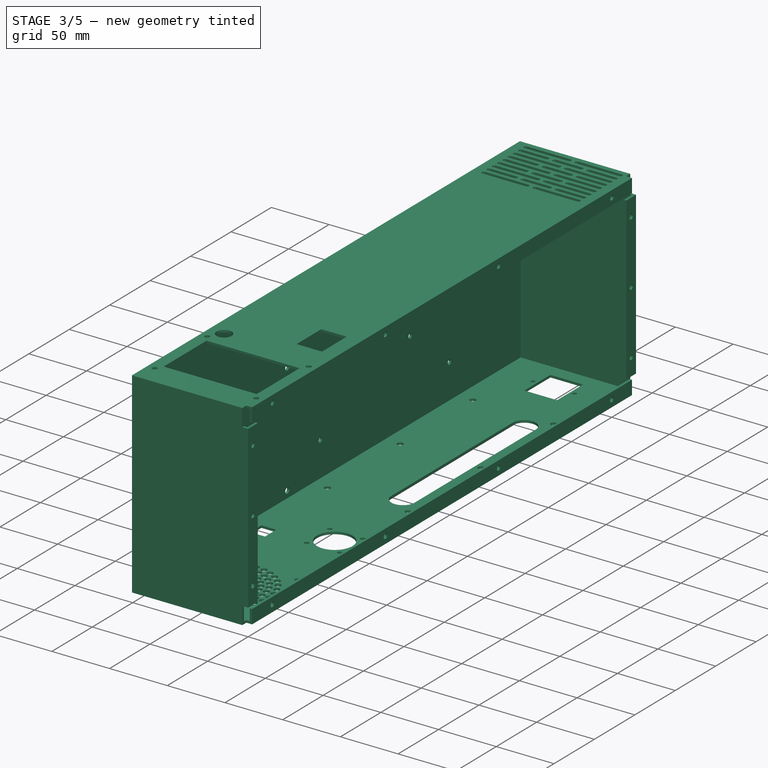
[diagram: stage 3 of 5 — iso view after this stage's code; geometry added in this stage tinted green]
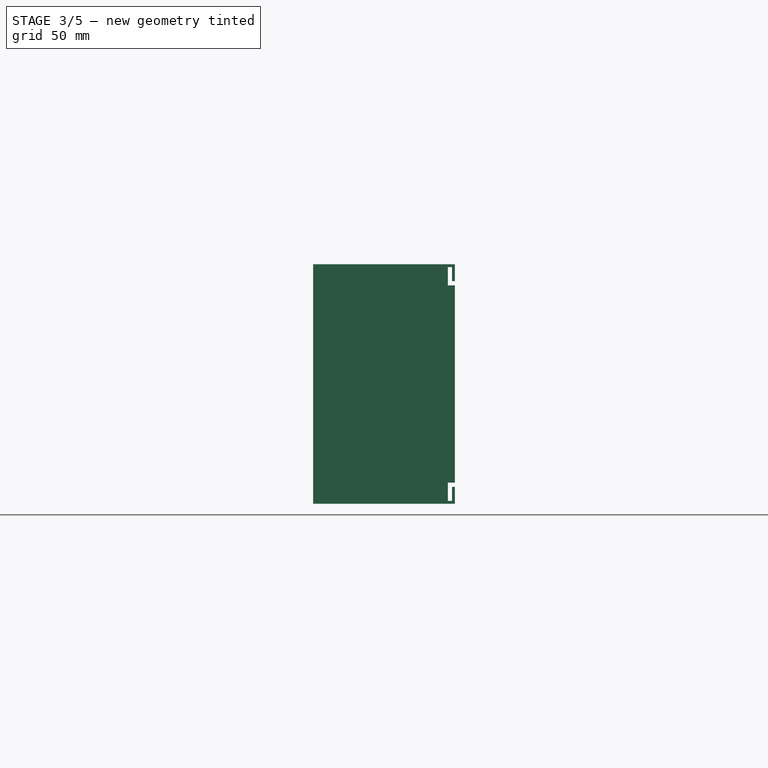
[diagram: stage 3 of 5 — front view after this stage's code; geometry added in this stage tinted green]
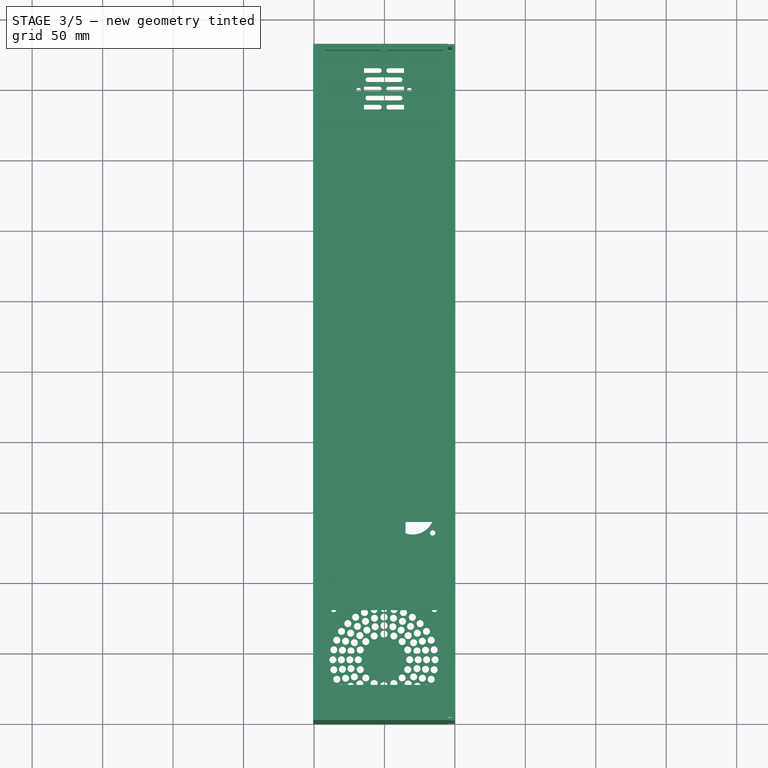
[diagram: stage 3 of 5 — top view after this stage's code; geometry added in this stage tinted green]
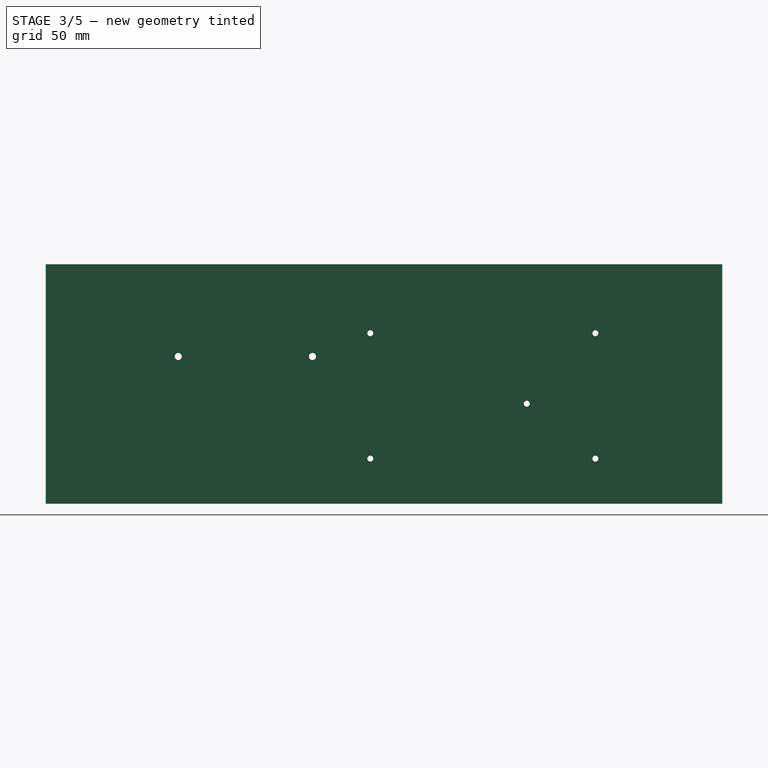
[diagram: stage 3 of 5 — right view after this stage's code; geometry added in this stage tinted green]
FEATURE [Sketcher::SketchObject] Sketch019
  Placement = pos=(0,0,0) rot=(1,0,0;3.14159rad)
  Support = -> Pocket008 [Face4]
  sketch-geometry (26):
    g0: Circle CenterX=-30 CenterY=-150 CenterZ=0 NormalX=0 NormalY=0 NormalZ=1 Radius=15.365
    g1: LineSegment [constr] StartX=-30 StartY=-150 StartZ=0 EndX=-30 EndY=-180 EndZ=0
    g2: LineSegment [constr] StartX=-30 StartY=-150 StartZ=0 EndX=30 EndY=-150 EndZ=0
    g3: LineSegment [constr] StartX=-44.29 StartY=-135.75 StartZ=0 EndX=-15.75 EndY=-135.75 EndZ=0
    g4: LineSegment [constr] StartX=-15.75 StartY=-135.75 StartZ=0 EndX=-15.75 EndY=-164.29 EndZ=0
    g5: LineSegment [constr] StartX=-15.75 StartY=-164.29 StartZ=0 EndX=-44.29 EndY=-164.29 EndZ=0
    g6: LineSegment [constr] StartX=-44.29 StartY=-164.29 StartZ=0 EndX=-44.29 EndY=-135.75 EndZ=0
    g7: Circle CenterX=-44.29 CenterY=-135.75 CenterZ=0 NormalX=0 NormalY=0 NormalZ=1 Radius=1.905
    g8: Circle CenterX=-15.75 CenterY=-135.75 CenterZ=0 NormalX=0 NormalY=0 NormalZ=1 Radius=1.905
    g9: Circle CenterX=-15.75 CenterY=-164.29 CenterZ=0 NormalX=0 NormalY=0 NormalZ=1 Radius=1.905
    g10: Circle CenterX=-44.29 CenterY=-164.29 CenterZ=0 NormalX=0 NormalY=0 NormalZ=1 Radius=1.905
    g11: LineSegment [constr] StartX=-85.3 StartY=-220 StartZ=0 EndX=-15.3 EndY=-220 EndZ=0
    g12: LineSegment [constr] StartX=-15.3 StartY=-220 StartZ=0 EndX=-15.3 EndY=-400 EndZ=0
    g13: LineSegment [constr] StartX=-15.3 StartY=-400 StartZ=0 EndX=-85.3 EndY=-400 EndZ=0
    g14: LineSegment [constr] StartX=-85.3 StartY=-400 StartZ=0 EndX=-85.3 EndY=-220 EndZ=0
    g15: Circle CenterX=-85.3 CenterY=-220 CenterZ=0 NormalX=0 NormalY=0 NormalZ=1 Radius=2.5
    g16: Circle CenterX=-15.3 CenterY=-220 CenterZ=0 NormalX=0 NormalY=0 NormalZ=1 Radius=2.5
    g17: Circle CenterX=-15.3 CenterY=-400 CenterZ=0 NormalX=0 NormalY=0 NormalZ=1 Radius=2.5
    g18: Circle CenterX=-85.3 CenterY=-400 CenterZ=0 NormalX=0 NormalY=0 NormalZ=1 Radius=2.5
    g19: ArcOfCircle CenterX=-30.3 CenterY=-235 CenterZ=0 NormalX=0 NormalY=0 NormalZ=1 Radius=10 StartAngle=0 EndAngle=3.14159
    g20: ArcOfCircle CenterX=-30.3 CenterY=-385 CenterZ=0 NormalX=0 NormalY=0 NormalZ=1 Radius=10 StartAngle=3.14159 EndAngle=6.28319
    g21: LineSegment StartX=-40.3 StartY=-235 StartZ=0 EndX=-40.3 EndY=-385 EndZ=0
    g22: LineSegment StartX=-20.3 StartY=-235 StartZ=0 EndX=-20.3 EndY=-385 EndZ=0
    g23: Circle CenterX=-85.3 CenterY=-310 CenterZ=0 NormalX=0 NormalY=0 NormalZ=1 Radius=2.5
    g24: Circle CenterX=-15.3 CenterY=-310 CenterZ=0 NormalX=0 NormalY=0 NormalZ=1 Radius=2.5
    g25: LineSegment [constr] StartX=-85.3 StartY=-310 StartZ=0 EndX=-15.3 EndY=-310 EndZ=0
  constraints (67):
    c: Vertical(g1)
    c: Horizontal(g2)
    c: Coincident(g2,g1)
    c: DistanceX(g-1,g1) = -30
    c: Coincident(g0,g1)
    c: Radius(g0) = 15.365
    c: Coincident(g3,g4)
    c: Coincident(g4,g5)
    c: Coincident(g5,g6)
    c: Coincident(g6,g3)
    c: Horizontal(g3)
    c: Horizontal(g5)
    c: Vertical(g4)
    c: Vertical(g6)
    c: Equal(g6,g5)
    c: DistanceY(g0,g4) = -14.29
    c: Distance(g2) = 60
    c: Coincident(g4,g9)
    c: Coincident(g3,g8)
    c: Coincident(g3,g7)
    c: Coincident(g5,g10)
    c: Radius(g7) = 1.905
    c: Equal(g8,g9)
    c: Equal(g9,g10)
    c: DistanceY(g-1,g2) = -150
    c: Coincident(g11,g12)
    c: Coincident(g12,g13)
    c: Coincident(g13,g14)
    c: Coincident(g14,g11)
    c: Horizontal(g11)
    c: Horizontal(g13)
    c: Vertical(g12)
    c: Vertical(g14)
    c: DistanceX(g13) = -70
    c: DistanceY(g14) = 180
    c: Coincident(g12,g17)
    c: Coincident(g13,g18)
    c: Coincident(g11,g15)
    c: Coincident(g11,g16)
    c: Equal(g16,g15)
    c: Equal(g15,g18)
    c: Equal(g18,g17)
    c: Radius(g15) = 2.5
    c: DistanceY(g-1,g11) = -220
    c: DistanceX(g-1,g11) = -15.3
    c: Equal(g7,g10)
    c: DistanceY(g-1,g3) = -135.75
    c: DistanceX(g-1,g3) = -15.75
    c: DistanceY(g1) = -30
    c: Tangent(g19,g22) = 1.5708
    c: Tangent(g19,g21) = -1.5708
    c: Tangent(g21,g20) = -1.5708
    c: Tangent(g22,g20) = 1.5708
    c: Vertical(g21)
    c: Equal(g19,g20)
    c: Radius(g19) = 10
    c: DistanceX(g19,g11) = 5
    c: DistanceY(g19,g11) = 15
    c: DistanceY(g20,g12) = -15
    c: DistanceY(g11,g24) = -90
    c: Horizontal(g25)
    c: Coincident(g25,g24)
    c: PointOnObject(g24,g12)
    c: PointOnObject(g25,g14)
    c: Coincident(g23,g25)
    c: Equal(g18,g24)
    c: Equal(g24,g23)
FEATURE [PartDesign::Pocket] Pocket009  label="cable-exit"
  Length = 5
  Sketch = -> Sketch019
  Type = 0
FEATURE [Sketcher::SketchObject] Sketch021
  Placement = pos=(-100.6,0,0) rot=(0.57735,-0.57735,-0.57735;2.0944rad)
  Support = -> Pocket009 [Face5]
  sketch-geometry (8):
    g0: LineSegment [constr] StartX=-189.25 StartY=104.52 StartZ=0 EndX=-94 EndY=104.52 EndZ=0
    g1: LineSegment [constr] StartX=-94 StartY=104.52 StartZ=0 EndX=-94 EndY=8 EndZ=0
    g2: LineSegment [constr] StartX=-94 StartY=8 StartZ=0 EndX=-189.25 EndY=8 EndZ=0
    g3: LineSegment [constr] StartX=-189.25 StartY=8 StartZ=0 EndX=-189.25 EndY=104.52 EndZ=0
    g4: Circle CenterX=-189.25 CenterY=104.52 CenterZ=0 NormalX=0 NormalY=0 NormalZ=1 Radius=2.5
    g5: Circle CenterX=-94 CenterY=104.52 CenterZ=0 NormalX=0 NormalY=0 NormalZ=1 Radius=2.5
    g6: Circle CenterX=-94 CenterY=8 CenterZ=0 NormalX=0 NormalY=0 NormalZ=1 Radius=2.5
    g7: Circle CenterX=-189.25 CenterY=8 CenterZ=0 NormalX=0 NormalY=0 NormalZ=1 Radius=2.5
  constraints (20):
    c: Coincident(g0,g1)
    c: Coincident(g1,g2)
    c: Coincident(g2,g3)
    c: Coincident(g3,g0)
    c: Horizontal(g0)
    c: Horizontal(g2)
    c: Vertical(g1)
    c: Vertical(g3)
    c: DistanceX(g0) = 95.25
    c: DistanceY(g3) = 96.52
    c: Coincident(g0,g4)
    c: Coincident(g0,g5)
    c: Coincident(g1,g6)
    c: Coincident(g7,g2)
    c: Radius(g7) = 2.5
    c: Equal(g7,g6)
    c: Equal(g6,g5)
    c: Equal(g5,g4)
    c: DistanceX(g-1,g1) = -94
    c: DistanceY(g-1,g1) = 8
FEATURE [PartDesign::Pocket] Pocket010  label="board-attach"
  Length = 5
  Sketch = -> Sketch021
  Type = 0
FEATURE [Sketcher::SketchObject] Sketch022
  Placement = pos=(0,0,0) rot=(1,0,0;3.14159rad)
  Support = -> Pocket010 [Face4]
  sketch-geometry (10):
    g0: LineSegment StartX=-87.6 StartY=-127.5 StartZ=0 EndX=-74.6 EndY=-127.5 EndZ=0
    g1: LineSegment StartX=-74.6 StartY=-127.5 StartZ=0 EndX=-74.6 EndY=-141.5 EndZ=0
    g2: LineSegment StartX=-74.6 StartY=-141.5 StartZ=0 EndX=-87.6 EndY=-141.5 EndZ=0
    g3: LineSegment StartX=-87.6 StartY=-141.5 StartZ=0 EndX=-87.6 EndY=-127.5 EndZ=0
    g4: LineSegment [constr] StartX=-110 StartY=-94 StartZ=0 EndX=0 EndY=-94 EndZ=0
    g5: LineSegment [constr] StartX=-110 StartY=-90.19 StartZ=0 EndX=0 EndY=-90.19 EndZ=0
    g6: LineSegment [constr] StartX=-110 StartY=-193.06 StartZ=0 EndX=0 EndY=-193.06 EndZ=0
    g7: LineSegment [constr] StartX=-110 StartY=-113.49 StartZ=0 EndX=0 EndY=-113.49 EndZ=0
    g8: LineSegment [constr] StartX=-110 StartY=-90.19 StartZ=0 EndX=-110 EndY=-193.06 EndZ=0
    g9: Circle CenterX=-83.6 CenterY=-113.49 CenterZ=0 NormalX=0 NormalY=0 NormalZ=1 Radius=2
  constraints (33):
    c: Coincident(g0,g1)
    c: Coincident(g1,g2)
    c: Coincident(g2,g3)
    c: Coincident(g3,g0)
    c: Horizontal(g0)
    c: Horizontal(g2)
    c: Vertical(g1)
    c: Vertical(g3)
    c: DistanceY(g1) = -14
    c: DistanceX(g0) = 13
    c: DistanceX(g-1,g0) = -74.6
    c: DistanceY(g-1,g0) = -127.5
    c: DistanceY(g-1,g4) = -94
    c: Horizontal(g4)
    c: Horizontal(g5)
    c: DistanceY(g4,g5) = 3.81
    c: Horizontal(g6)
    c: DistanceY(g5,g6) = -102.87
    c: Horizontal(g7)
    c: DistanceY(g6,g7) = 79.57
    c: PointOnObject(g5,g-2)
    c: PointOnObject(g7,g-2)
    c: PointOnObject(g6,g-2)
    c: Vertical(g8)
    c: Coincident(g5,g8)
    c: Coincident(g6,g8)
    c: PointOnObject(g4,g8)
    c: PointOnObject(g7,g8)
    c: PointOnObject(g4,g-2)
    c: DistanceX(g-1,g5) = -110
    c: PointOnObject(g9,g7)
    c: DistanceX(g0,g9) = 4
    c: Radius(g9) = 2
FEATURE [PartDesign::Pocket] Pocket011  label="usb"
  Length = 5
  Sketch = -> Sketch022
  Type = 0
FEATURE [Sketcher::SketchObject] Sketch023
  Placement = pos=(0,0,158) rot=(1,0,0;3.14159rad)
  Support = -> Pocket011 [Face279]
  sketch-geometry (8):
    g0: LineSegment [constr] StartX=31.3 StartY=141 StartZ=0 EndX=448.7 EndY=141 EndZ=0
    g1: LineSegment [constr] StartX=31.3 StartY=29 StartZ=0 EndX=448.7 EndY=29 EndZ=0
    g2: LineSegment [constr] StartX=31.3 StartY=141 StartZ=0 EndX=31.3 EndY=29 EndZ=0
    g3: LineSegment [constr] StartX=448.7 StartY=141 StartZ=0 EndX=448.7 EndY=29 EndZ=0
    g4: Circle CenterX=31.3 CenterY=141 CenterZ=0 NormalX=0 NormalY=0 NormalZ=1 Radius=3.175
    g5: Circle CenterX=448.7 CenterY=141 CenterZ=0 NormalX=0 NormalY=0 NormalZ=1 Radius=3.175
    g6: Circle CenterX=448.7 CenterY=29 CenterZ=0 NormalX=0 NormalY=0 NormalZ=1 Radius=3.175
    g7: Circle CenterX=31.3 CenterY=29 CenterZ=0 NormalX=0 NormalY=0 NormalZ=1 Radius=3.175
  constraints (4):
    c: Coincident(g0,g2)
    c: Coincident(g0,g3)
    c: Coincident(g1,g2)
    c: Coincident(g1,g3)
FEATURE [PartDesign::Pocket] Pocket012  label="chassis-attach"
  Length = 5
  Sketch = -> Sketch023
  Type = 0
FEATURE [Sketcher::SketchObject] Sketch027
  Placement = pos=(0,0,0) rot=(0.57735,0.57735,0.57735;2.0944rad)
  Support = -> Pocket012 [Face9]
  sketch-geometry (29):
    g0: LineSegment [constr] StartX=6 StartY=85 StartZ=0 EndX=474 EndY=85 EndZ=0
    g1: LineSegment [constr] StartX=6 StartY=164 StartZ=0 EndX=6 EndY=6 EndZ=0
    g2: LineSegment [constr] StartX=6 StartY=30 StartZ=0 EndX=474 EndY=30 EndZ=0
    g3: LineSegment [constr] StartX=474 StartY=164 StartZ=0 EndX=474 EndY=30 EndZ=0
    g4: LineSegment [constr] StartX=310 StartY=164 StartZ=0 EndX=310 EndY=6 EndZ=0
    g5: LineSegment [constr] StartX=170 StartY=164 StartZ=0 EndX=170 EndY=6 EndZ=0
    g6: LineSegment [constr] StartX=0 StartY=0 StartZ=0 EndX=480 EndY=0 EndZ=0
    g7: LineSegment [constr] StartX=480 StartY=0 StartZ=0 EndX=480 EndY=170 EndZ=0
    g8: LineSegment [constr] StartX=480 StartY=170 StartZ=0 EndX=0 EndY=170 EndZ=0
    g9: LineSegment [constr] StartX=0 StartY=170 StartZ=0 EndX=0 EndY=0 EndZ=0
    g10: LineSegment [constr] StartX=6 StartY=164 StartZ=0 EndX=474 EndY=164 EndZ=0
    g11: LineSegment [constr] StartX=6 StartY=6 StartZ=0 EndX=450 EndY=6 EndZ=0
    g12: LineSegment [constr] StartX=30 StartY=164 StartZ=0 EndX=30 EndY=6 EndZ=0
    g13: LineSegment [constr] StartX=450 StartY=164 StartZ=0 EndX=450 EndY=6 EndZ=0
    g14: LineSegment [constr] StartX=6 StartY=140 StartZ=0 EndX=474 EndY=140 EndZ=0
    g15: Circle CenterX=450 CenterY=164 CenterZ=0 NormalX=0 NormalY=0 NormalZ=1 Radius=2.11
    g16: Circle CenterX=474 CenterY=140 CenterZ=0 NormalX=0 NormalY=0 NormalZ=1 Radius=2.11
    g17: Circle CenterX=474 CenterY=85 CenterZ=0 NormalX=0 NormalY=0 NormalZ=1 Radius=2.11
    g18: Circle CenterX=474 CenterY=30 CenterZ=0 NormalX=0 NormalY=0 NormalZ=1 Radius=2.11
    g19: Circle CenterX=450 CenterY=6 CenterZ=0 NormalX=0 NormalY=0 NormalZ=1 Radius=2.11
    g20: Circle CenterX=310 CenterY=6 CenterZ=0 NormalX=0 NormalY=0 NormalZ=1 Radius=2.11
    g21: Circle CenterX=170 CenterY=6 CenterZ=0 NormalX=0 NormalY=0 NormalZ=1 Radius=2.11
    g22: Circle CenterX=30 CenterY=6 CenterZ=0 NormalX=0 NormalY=0 NormalZ=1 Radius=2.11
    g23: Circle CenterX=6 CenterY=30 CenterZ=0 NormalX=0 NormalY=0 NormalZ=1 Radius=2.11
    g24: Circle CenterX=6 CenterY=85 CenterZ=0 NormalX=0 NormalY=0 NormalZ=1 Radius=2.11
    g25: Circle CenterX=6 CenterY=140 CenterZ=0 NormalX=0 NormalY=0 NormalZ=1 Radius=2.11
    g26: Circle CenterX=30 CenterY=164 CenterZ=0 NormalX=0 NormalY=0 NormalZ=1 Radius=2.11
    g27: Circle CenterX=170 CenterY=164 CenterZ=0 NormalX=0 NormalY=0 NormalZ=1 Radius=2.11
    g28: Circle CenterX=310 CenterY=164 CenterZ=0 NormalX=0 NormalY=0 NormalZ=1 Radius=2.11
  constraints (78):
    c: Horizontal(g0)
    c: Horizontal(g2)
    c: Vertical(g1)
    c: Vertical(g5)
    c: Vertical(g4)
    c: Vertical(g3)
    c: Coincident(g6,g7)
    c: Coincident(g7,g8)
    c: Coincident(g8,g9)
    c: Coincident(g9,g6)
    c: Horizontal(g6)
    c: Horizontal(g8)
    c: Vertical(g7)
    c: Vertical(g9)
    c: Coincident(g6,g-1)
    c: DistanceY(g7) = 170
    c: DistanceX(g8) = -480
    c: DistanceX(g-1,g1) = 6
    c: DistanceY(g-1,g2) = 30
    c: DistanceY(g-1,g0) = 85
    c: PointOnObject(g0,g1)
    c: DistanceX(g-1,g3) = 474
    c: Coincident(g2,g3)
    c: PointOnObject(g0,g3)
    c: Horizontal(g11)
    c: Horizontal(g10)
    c: DistanceY(g-1,g11) = 6
    c: Coincident(g1,g11)
    c: DistanceY(g-1,g10) = 164
    c: Coincident(g1,g10)
    c: Coincident(g3,g10)
    c: Vertical(g12)
    c: Vertical(g13)
    c: DistanceX(g-1,g12) = 30
    c: PointOnObject(g2,g1)
    c: PointOnObject(g12,g11)
    c: DistanceX(g-1,g13) = 450
    c: Coincident(g11,g13)
    c: PointOnObject(g13,g10)
    c: PointOnObject(g4,g10)
    c: PointOnObject(g5,g10)
    c: PointOnObject(g5,g11)
    c: PointOnObject(g4,g11)
    c: DistanceX(g12,g5) = 140
    c: DistanceX(g4,g11) = 140
    c: PointOnObject(g12,g10)
    c: Horizontal(g14)
    c: DistanceY(g-1,g14) = 140
    c: PointOnObject(g14,g1)
    c: PointOnObject(g14,g3)
    c: Coincident(g13,g15)
    c: Radius(g15) = 2.11
    c: Coincident(g14,g16)
    c: Coincident(g0,g17)
    c: Coincident(g2,g18)
    c: Coincident(g11,g19)
    c: Coincident(g4,g20)
    c: Coincident(g5,g21)
    c: Coincident(g12,g22)
    c: Coincident(g2,g23)
    c: Coincident(g0,g24)
    c: Coincident(g14,g25)
    c: Coincident(g12,g26)
    c: Coincident(g5,g27)
    c: Coincident(g4,g28)
    c: Equal(g15,g16)
    c: Equal(g16,g17)
    c: Equal(g17,g18)
    c: Equal(g18,g19)
    c: Equal(g19,g20)
    c: Equal(g20,g28)
    c: Equal(g28,g27)
    c: Equal(g27,g21)
    c: Equal(g21,g22)
    c: Equal(g22,g26)
    c: Equal(g26,g25)
    c: Equal(g25,g24)
    c: Equal(g24,g23)
FEATURE [PartDesign::Pocket] Pocket013  label="cover-attach"
  Length = 5
  Sketch = -> Sketch027
  Type = 0
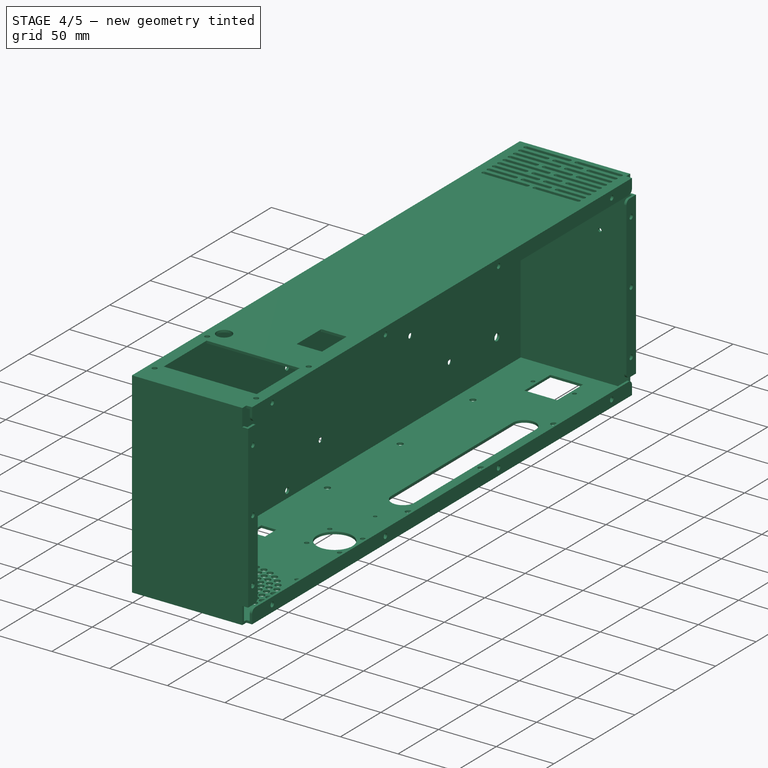
[diagram: stage 4 of 5 — iso view after this stage's code; geometry added in this stage tinted green]
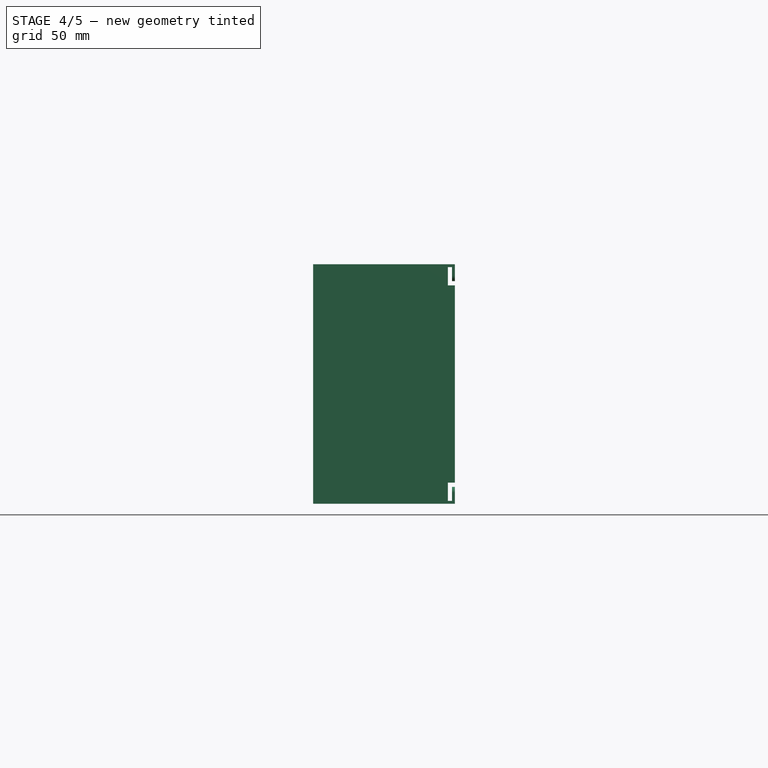
[diagram: stage 4 of 5 — front view after this stage's code; geometry added in this stage tinted green]
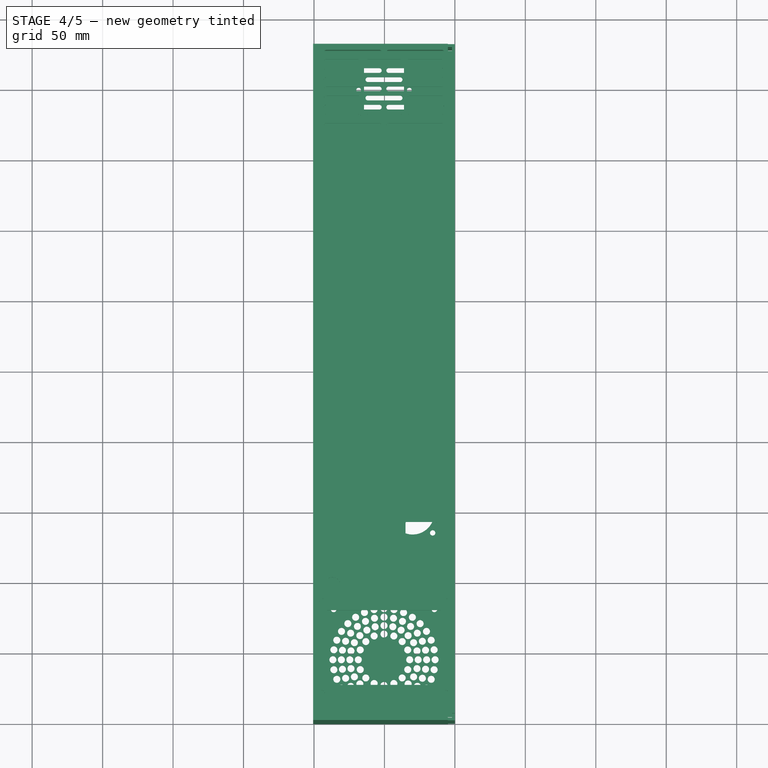
[diagram: stage 4 of 5 — top view after this stage's code; geometry added in this stage tinted green]
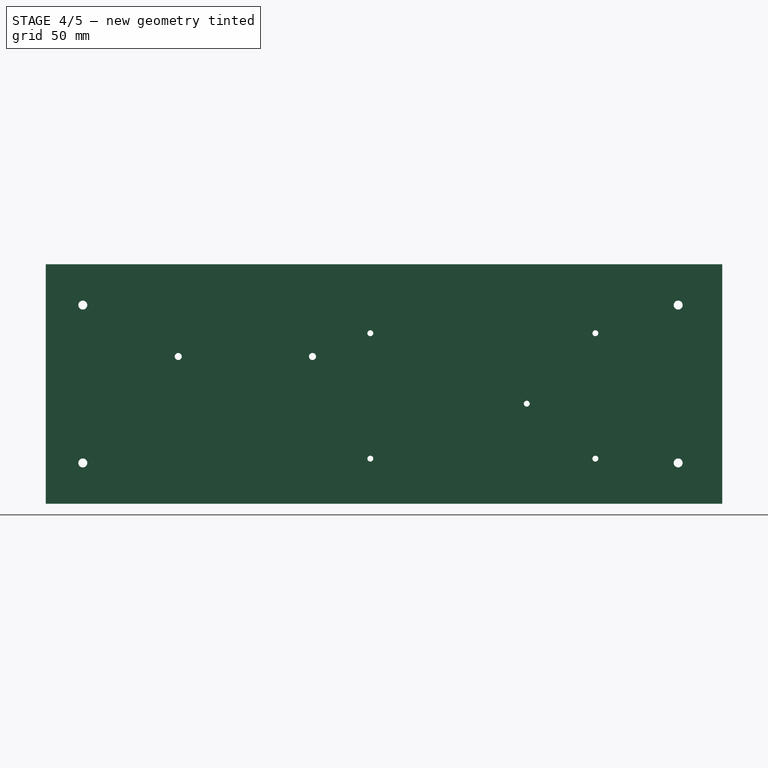
[diagram: stage 4 of 5 — right view after this stage's code; geometry added in this stage tinted green]
FEATURE [Sketcher::SketchObject] Sketch033
  Placement = pos=(-100.6,0,0) rot=(0.57735,-0.57735,-0.57735;2.0944rad)
  Support = -> Pocket013 [Face5]
  sketch-geometry (8):
    g0: LineSegment [constr] StartX=-448.75 StartY=141 StartZ=0 EndX=-26.25 EndY=141 EndZ=0
    g1: LineSegment [constr] StartX=-26.25 StartY=141 StartZ=0 EndX=-26.25 EndY=29 EndZ=0
    g2: LineSegment [constr] StartX=-26.25 StartY=29 StartZ=0 EndX=-448.75 EndY=29 EndZ=0
    g3: LineSegment [constr] StartX=-448.75 StartY=29 StartZ=0 EndX=-448.75 EndY=141 EndZ=0
    g4: Circle CenterX=-448.75 CenterY=141 CenterZ=0 NormalX=0 NormalY=0 NormalZ=1 Radius=3.175
    g5: Circle CenterX=-26.25 CenterY=141 CenterZ=0 NormalX=0 NormalY=0 NormalZ=1 Radius=3.175
    g6: Circle CenterX=-26.25 CenterY=29 CenterZ=0 NormalX=0 NormalY=0 NormalZ=1 Radius=3.175
    g7: Circle CenterX=-448.75 CenterY=29 CenterZ=0 NormalX=0 NormalY=0 NormalZ=1 Radius=3.175
  constraints (20):
    c: Coincident(g0,g1)
    c: Coincident(g0,g3)
    c: Coincident(g1,g2)
    c: Coincident(g2,g3)
    c: DistanceY(g-1,g1) = 29
    c: DistanceY(g1) = -112
    c: DistanceX(g-1,g1) = -26.25
    c: DistanceX(g2) = -422.5
    c: Radius(g6) = 3.175
    c: Equal(g6,g5)
    c: Equal(g5,g4)
    c: Equal(g4,g7)
    c: Coincident(g0,g4)
    c: Coincident(g2,g7)
    c: Coincident(g1,g6)
    c: Coincident(g0,g5)
    c: Horizontal(g2)
    c: Horizontal(g0)
    c: Vertical(g3)
    c: Vertical(g1)
FEATURE [PartDesign::Pocket] Pocket014  label="Electronics-attach"
  Length = 5
  Sketch = -> Sketch033
  Type = 0
FEATURE [Sketcher::SketchObject] Sketch034
  ExternalGeometry = -> [Pocket014]
  Placement = pos=(0,480,0) rot=(0,0.707107,0.707107;3.14159rad)
  Support = -> Pocket014 [Face15]
  sketch-geometry (1):
    g0: Circle CenterX=30 CenterY=120 CenterZ=0 NormalX=0 NormalY=0 NormalZ=1 Radius=1.5
  constraints (3):
    c: DistanceY(g0,g-4) = 50
    c: DistanceX(g-1,g0) = 30
    c: Radius(g0) = 1.5
FEATURE [PartDesign::Pocket] Pocket015
  Length = 5
  Sketch = -> Sketch034
  Type = 0
FEATURE [Sketcher::SketchObject] Sketch035
  Placement = pos=(0,0,0) rot=(1,0,0;3.14159rad)
  Support = -> Pocket015 [Face4]
  sketch-geometry (1):
    g0: Circle CenterX=-30 CenterY=-200 CenterZ=0 NormalX=0 NormalY=0 NormalZ=1 Radius=1.5
  constraints (3):
    c: DistanceY(g-1,g0) = -200
    c: DistanceX(g-1,g0) = -30
    c: Radius(g0) = 1.5
FEATURE [PartDesign::Pocket] Pocket016
  Length = 5
  Sketch = -> Sketch035
  Type = 0
FEATURE [PartDesign::Chamfer] Chamfer
  Base = -> Pocket016 [Edge159,Edge158,Edge161,Edge157,Edge160]
  Size = 2
FEATURE [PartDesign::Fillet] Fillet
  Base = -> Chamfer [Edge330,Edge611,Edge320,Edge308,Edge345,Edge626,Edge846,Edge838]
  Radius = 4
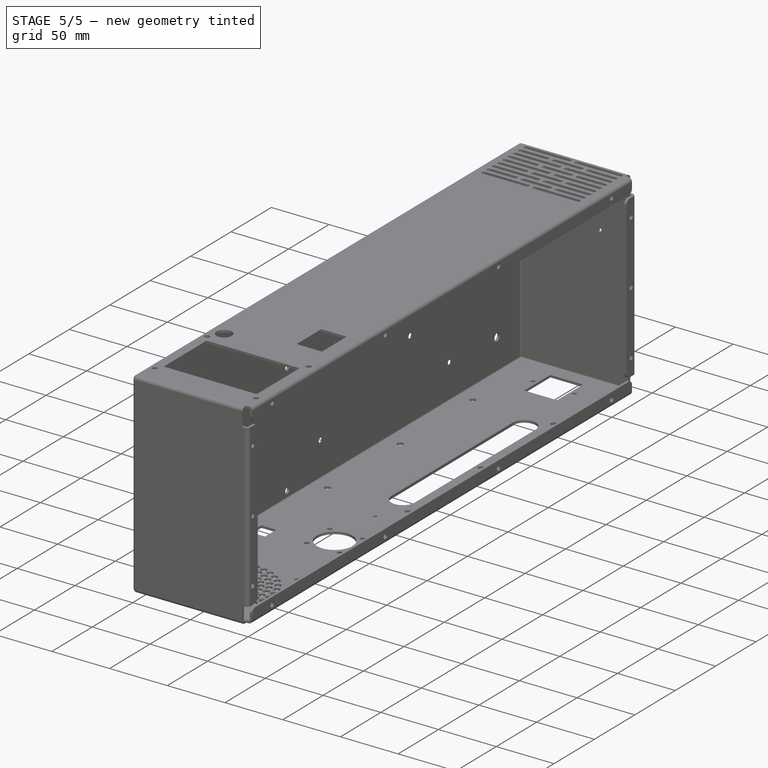
[diagram: stage 5 of 5 — iso view after this stage's code; geometry added in this stage tinted green]
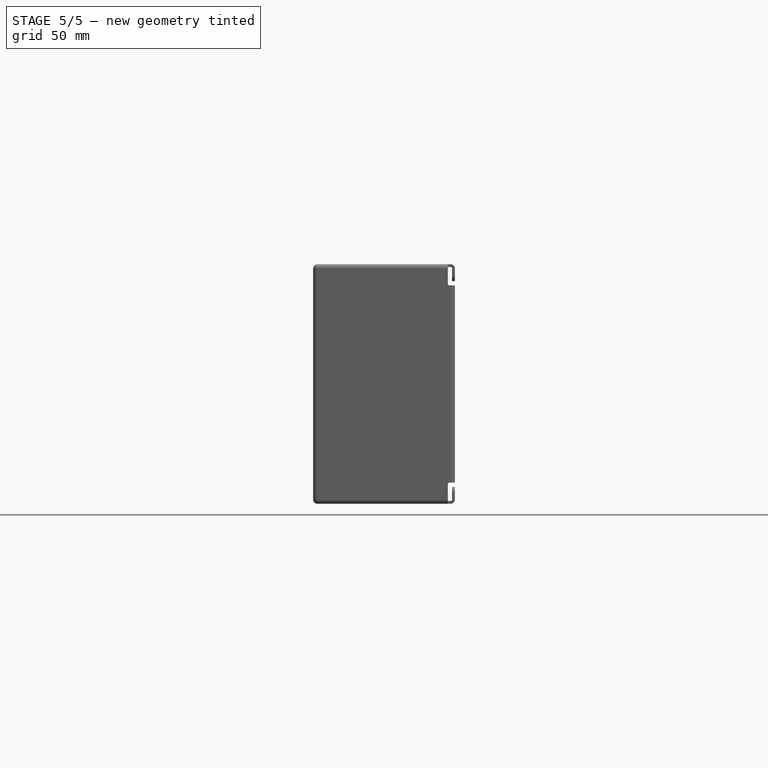
[diagram: stage 5 of 5 — front view after this stage's code; geometry added in this stage tinted green]
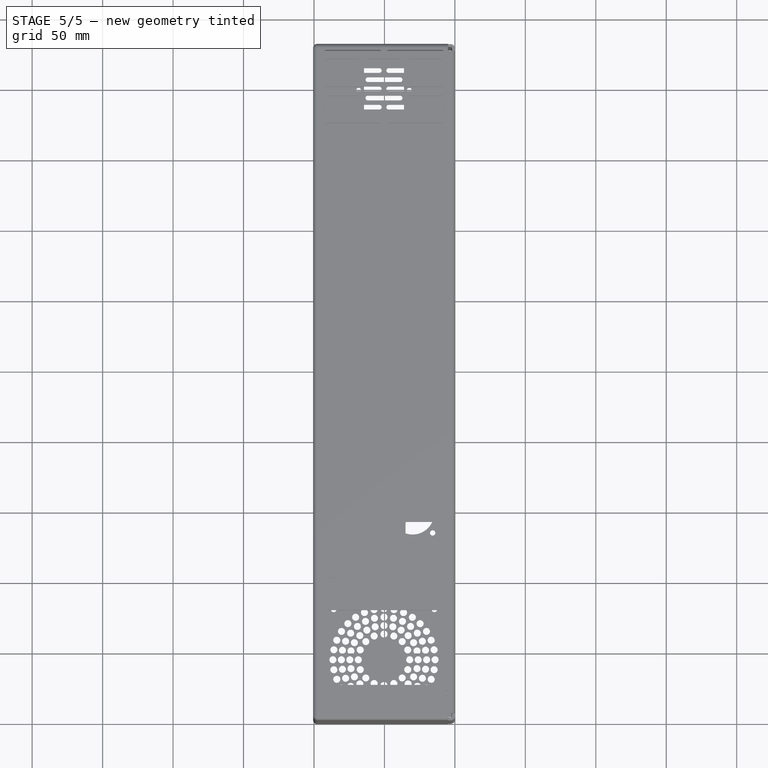
[diagram: stage 5 of 5 — top view after this stage's code; geometry added in this stage tinted green]
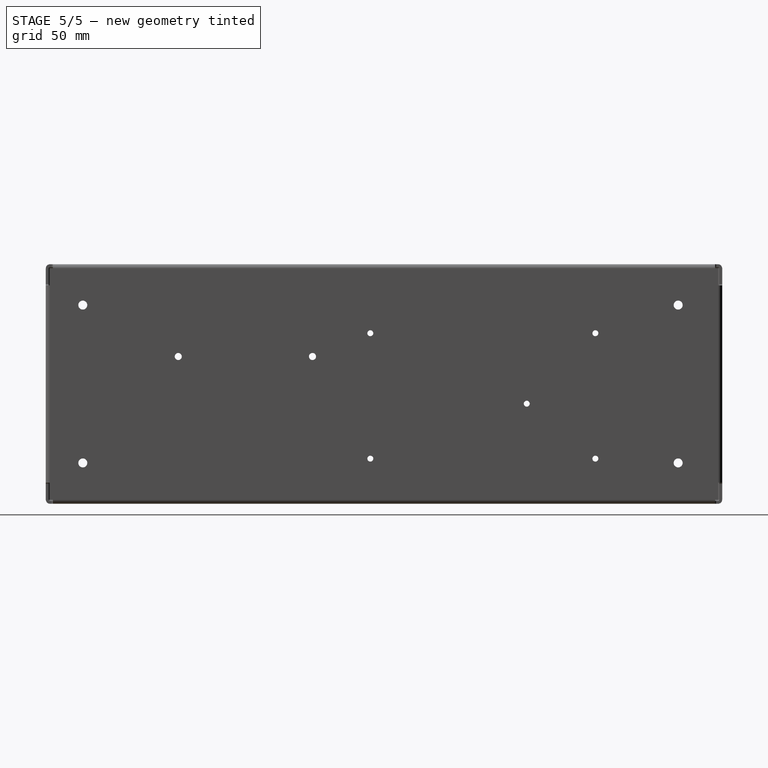
[diagram: stage 5 of 5 — right view after this stage's code; geometry added in this stage tinted green]
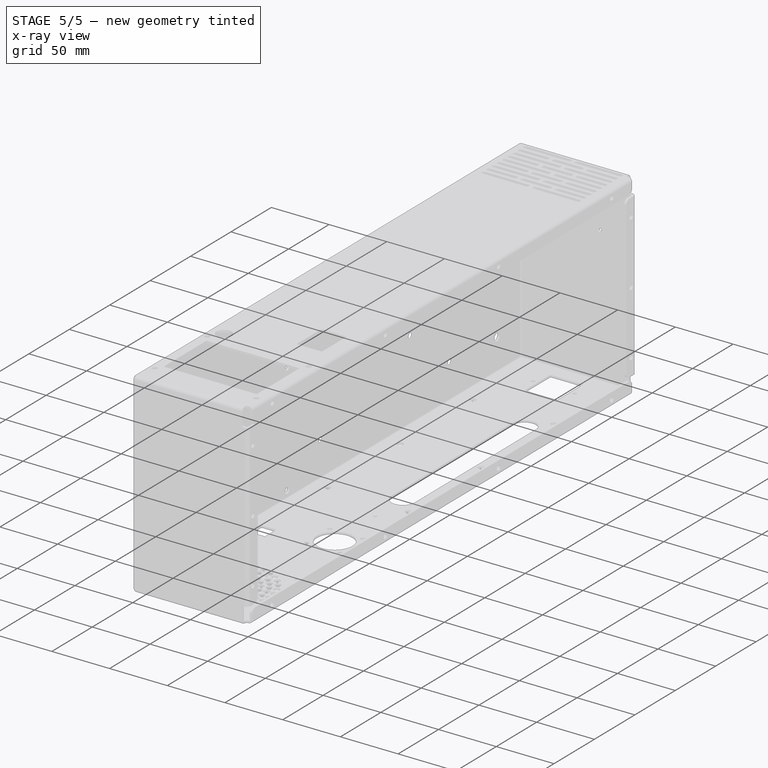
[diagram: stage 5 of 5 — x-ray composite at the iso view; earlier geometry ghosted, this stage's added geometry solid]
FEATURE [PartDesign::Fillet] Fillet001
  Base = -> Fillet [Edge571,Edge48,Edge47,Edge199,Edge200,Edge183,Edge184,Edge45,Edge20,Edge19,Edge8,Edge18]
  Radius = 3
FEATURE [PartDesign::Fillet] Fillet002
  Base = -> Fillet001 [Edge206,Edge28,Edge42,Edge39,Edge38,Edge338,Edge339,Edge202,Edge203,Edge757,Edge350,Edge346]
  Radius = 1
FEATURE [PartDesign::Fillet] Fillet003
  Base = -> Fillet002 [Edge55,Edge48,Edge6,Edge36,Edge593,Edge595,Edge789,Edge792]
  Radius = 1
FEATURE [Drawing::FeatureView] dim022
  Rotation = 0
  ViewResult = <g> <line x1="239.750000" y1="70.000000" x2="272.959326" y2="70.000000" style="stroke:rgb(0,0,255);stroke-width:0.20" />\n<line x1="233.427712" y1="112.435000" x2="272.959326" y2="112.435000" style="stroke:rgb(0,0,255);stroke-width:0.20" />\n<line x1="271.959326" y1="70.000000" x2="271.959326" y2="112.435000" style="stroke:rgb(0,0,255);stroke-width:0.20" />\n<polygon points="271.959326,70.000000 271.209326,73.000000 271.959326,73.000000 272.709326,73.000000" style="fill:rgb(0,0,255);stroke:rgb(0,0,255);stroke-width:0" />\n<polygon points="271.959326,112.435000 272.709326,109.435000 271.959326,109.435000 271.209326,109.435000" style="fill:rgb(0,0,255);stroke:rgb(0,0,255);stroke-width:0" />\n<text x="270.959326" y="91.217500" font-family="Verdana" font-size="3.6" fill="rgb(0,0,255)" text-anchor="middle" transform="rotate(-90.000000 270.959326,91.217500)" >94.3</text> </g> 
  Visible = true
  X = 0
  Y = 0
FEATURE [Drawing::FeatureView] dim014
  Rotation = 0
  ViewResult = <g>  <circle cx ="38.400000" cy ="74.185000" r="0.500000" stroke="none" fill="rgb(0,0,255)" /> \n<line x1="42.344533" y1="59.726702" x2="38.400000" y2="74.185000" style="stroke:rgb(0,0,255);stroke-width:0.20" />\n<polygon points="38.595427,73.468680 40.108589,70.771859 39.385033,70.574458 38.661478,70.377056" style="fill:rgb(0,0,255);stroke:rgb(0,0,255);stroke-width:0" />\n<line x1="42.344533" y1="59.726702" x2="65.346502" y2="59.726702" style="stroke:rgb(0,0,255);stroke-width:0.20" />\n<text x="53.845517" y="58.726702" font-family="Verdana" font-size="3.6" fill="rgb(0,0,255)" text-anchor="middle"  >R1.65 TYP</text> </g>
  Visible = true
  X = 0
  Y = 0
FEATURE [Drawing::FeatureViewPart] Ortho021  label="Ortho_-2_0"
  Direction = (0,0,-1)
  HiddenWidth = 0.15
  LineWidth = 0.35
  Rotation = -90
  Scale = 0.4
  ShowHiddenLines = false
  ShowSmoothLines = false
  Tolerance = 0.05
  ViewResult = <blob: 14355 chars omitted>
  Visible = true
  X = 235
  Y = 120
FEATURE [Drawing::FeatureView] dim009
  Rotation = 0
  ViewResult = <g> <line x1="47.917500" y1="113.085000" x2="47.917500" y2="125.774028" style="stroke:rgb(0,0,255);stroke-width:0.20" />\n<line x1="49.357500" y1="113.085000" x2="49.357500" y2="125.774028" style="stroke:rgb(0,0,255);stroke-width:0.20" />\n<line x1="47.917500" y1="124.774028" x2="49.357500" y2="124.774028" style="stroke:rgb(0,0,255);stroke-width:0.20" />\n<polygon points="47.917500,124.774028 44.917500,124.024028 44.917500,124.774028 44.917500,125.524028" style="fill:rgb(0,0,255);stroke:rgb(0,0,255);stroke-width:0" />\n<polygon points="49.357500,124.774028 52.357500,125.524028 52.357500,124.774028 52.357500,124.024028" style="fill:rgb(0,0,255);stroke:rgb(0,0,255);stroke-width:0" />\n<text x="61.201965" y="126.243168" font-family="Verdana" font-size="3.6" fill="rgb(0,0,255)" text-anchor="middle"  >3.2 TYP</text> </g> 
  Visible = true
  X = 0
  Y = 0
FEATURE [Drawing::FeatureView] dim048
  Rotation = 0
  ViewResult = <g> <line x1="46.580000" y1="105.540000" x2="25.897898" y2="105.540000" style="stroke:rgb(0,0,255);stroke-width:0.20" />\n<line x1="53.679987" y1="107.080000" x2="25.897898" y2="107.080000" style="stroke:rgb(0,0,255);stroke-width:0.20" />\n<line x1="26.897898" y1="105.540000" x2="26.897898" y2="107.080000" style="stroke:rgb(0,0,255);stroke-width:0.20" />\n<polygon points="26.897898,105.540000 27.647898,102.540000 26.897898,102.540000 26.147898,102.540000" style="fill:rgb(0,0,255);stroke:rgb(0,0,255);stroke-width:0" />\n<polygon points="26.897898,107.080000 26.147898,110.080000 26.897898,110.080000 27.647898,110.080000" style="fill:rgb(0,0,255);stroke:rgb(0,0,255);stroke-width:0" />\n<text x="25.897898" y="106.310000" font-family="Verdana" font-size="3.6" fill="rgb(0,0,255)" text-anchor="middle" transform="rotate(-90.000000 25.897898,106.310000)" >3.85</text> </g> 
  Visible = true
  X = 0
  Y = 0
FEATURE [Drawing::FeatureView] dim031
  Rotation = 0
  ViewResult = <g>  <circle cx ="176.955000" cy ="76.075000" r="0.500000" stroke="none" fill="rgb(0,0,255)" /> \n<line x1="164.516077" y1="60.363793" x2="176.955000" y2="76.075000" style="stroke:rgb(0,0,255);stroke-width:0.20" />\n<polygon points="176.815336,75.898595 175.541164,73.080974 174.953145,73.546522 174.365127,74.012069" style="fill:rgb(0,0,255);stroke:rgb(0,0,255);stroke-width:0" />\n<line x1="164.516077" y1="60.363793" x2="144.229884" y2="60.363793" style="stroke:rgb(0,0,255);stroke-width:0.20" />\n<text x="154.372980" y="59.363793" font-family="Verdana" font-size="3.6" fill="rgb(0,0,255)" text-anchor="middle"  >4 X R0.5</text> </g>
  Visible = true
  X = 0
  Y = 0
FEATURE [Drawing::FeatureView] centerLines002
  Rotation = 0
  ViewResult = <g transform="scale(0.450000,0.450000)" stroke="rgb(0,0,255)"  stroke-width="0.666667" > <path d="M 514.283333,249.855556 L 514.283333,245.411111 M 514.283333,240.966667 L 514.283333,227.633333 M 514.283333,223.188889 L 514.283333,218.744444 M 514.283333,214.300000 L 514.283333,200.966667 M 514.283333,196.522222 L 514.283333,192.077778 M 514.283333,187.633333 L 514.283333,174.300000 M 514.283333,169.855556 L 514.283333,165.411111 "/>\n<path d="M 514.283333,249.855556 L 513.575097,249.855556 "/>\n<path d="M 514.283333,249.855556 L 514.283333,245.411111 M 514.283333,240.966667 L 514.283333,227.633333 M 514.283333,223.188889 L 514.283333,218.744444 M 514.283333,214.300000 L 514.283333,200.966667 M 514.283333,196.522222 L 514.283333,192.077778 M 514.283333,187.633333 L 514.283333,179.339843 "/>\n<path d="M 514.283333,249.855556 L 509.838889,249.855556 M 505.394444,249.855556 L 492.061111,249.855556 M 487.616667,249.855556 L 483.172222,249.855556 M 478.727778,249.855556 L 465.394444,249.855556 M 460.950000,249.855556 L 456.505556,249.855556 M 452.061111,249.855556 L 448.954668,249.855556 "/> </g> 
  Visible = true
  X = 0
  Y = 0
FEATURE [Drawing::FeatureView] dimText008
  Rotation = 0
  ViewResult = <g> <text x="160.909225" y="120.823067" font-family="inherit" font-size="3" fill="rgb(0,0,0)" text-anchor="inherit"  >OVERSPRAY IS ALLOWED</text> </g>
  Visible = true
  X = 0
  Y = 0
FEATURE [Drawing::FeatureView] centerLines006
  Rotation = 0
  ViewResult = <g transform="scale(0.400000,0.400000)" stroke="rgb(0,0,255)"  stroke-width="0.750000" > <path d="M 277.500000,214.700000 L 277.500000,219.700000 M 277.500000,224.700000 L 277.500000,239.700000 M 277.500000,244.700000 L 277.500000,249.700000 M 277.500000,254.700000 L 277.500000,269.700000 M 277.500000,274.700000 L 277.500000,279.700000 "/>\n<path d="M 277.500000,214.700000 L 277.500000,219.700000 M 277.500000,224.700000 L 277.500000,239.700000 M 277.500000,244.700000 L 277.500000,249.700000 M 277.500000,254.700000 L 277.500000,269.700000 M 277.500000,274.700000 L 277.500000,279.700000 "/> </g> 
  Visible = true
  X = 0
  Y = 0
FEATURE [Drawing::FeatureView] dimText009
  Rotation = 0
  ViewResult = <g> <text x="105.348014" y="38.964334" font-family="inherit" font-size="3.6" fill="rgb(0,0,255)" text-anchor="inherit"  >INSTALL STANDOFF TOWARD INSIDE</text> </g>
  Visible = true
  X = 0
  Y = 0
FEATURE [Drawing::FeatureView] dim045
  Rotation = 0
  ViewResult = <g> <line x1="46.580000" y1="94.220000" x2="39.431425" y2="94.220000" style="stroke:rgb(0,0,255);stroke-width:0.20" />\n<line x1="46.580000" y1="105.540000" x2="39.431425" y2="105.540000" style="stroke:rgb(0,0,255);stroke-width:0.20" />\n<line x1="40.431425" y1="94.220000" x2="40.431425" y2="105.540000" style="stroke:rgb(0,0,255);stroke-width:0.20" />\n<polygon points="40.431425,94.220000 39.681425,97.220000 40.431425,97.220000 41.181425,97.220000" style="fill:rgb(0,0,255);stroke:rgb(0,0,255);stroke-width:0" />\n<polygon points="40.431425,105.540000 41.181425,102.540000 40.431425,102.540000 39.681425,102.540000" style="fill:rgb(0,0,255);stroke:rgb(0,0,255);stroke-width:0" />\n<text x="39.431425" y="99.880000" font-family="Verdana" font-size="3.6" fill="rgb(0,0,255)" text-anchor="middle" transform="rotate(-90.000000 39.431425,99.880000)" >29</text> </g> 
  Visible = true
  X = 0
  Y = 0
FEATURE [Drawing::FeatureView] dim024
  Rotation = 0
  ViewResult = <g> <line x1="180.390435" y1="75.850000" x2="180.390435" y2="70.000000" style="stroke:rgb(0,0,255);stroke-width:0.20" />\n<polygon points="180.390435,75.850000 179.640435,78.850000 180.390435,78.850000 181.140435,78.850000" style="fill:rgb(0,0,255);stroke:rgb(0,0,255);stroke-width:0" />\n<polygon points="180.390435,70.000000 181.140435,67.000000 180.390435,67.000000 179.640435,67.000000" style="fill:rgb(0,0,255);stroke:rgb(0,0,255);stroke-width:0" />\n<text x="181.008916" y="62.260470" font-family="Verdana" font-size="3.6" fill="rgb(0,0,255)" text-anchor="middle" transform="rotate(-90.000000 181.008916,62.260470)" >13.0</text> </g> 
  Visible = true
  X = 0
  Y = 0
FEATURE [Drawing::FeatureViewPart] Ortho025  label="Ortho_-1_0"
  Direction = (-1,0,0)
  HiddenWidth = 0.15
  LineWidth = 0.35
  Rotation = 270
  Scale = 0.3
  ShowHiddenLines = false
  ShowSmoothLines = false
  Tolerance = 0.05
  ViewResult = <blob: 6110 chars omitted>
  Visible = true
  X = 50
  Y = 30
FEATURE [Drawing::FeatureView] dim028
  Rotation = 0
  ViewResult = <g> <line x1="240.000000" y1="115.920000" x2="240.000000" y2="134.143497" style="stroke:rgb(0,0,255);stroke-width:0.20" />\n<line x1="197.362500" y1="111.195042" x2="197.362500" y2="134.143497" style="stroke:rgb(0,0,255);stroke-width:0.20" />\n<line x1="240.000000" y1="133.143497" x2="197.362500" y2="133.143497" style="stroke:rgb(0,0,255);stroke-width:0.20" />\n<polygon points="240.000000,133.143497 237.000000,132.393497 237.000000,133.143497 237.000000,133.893497" style="fill:rgb(0,0,255);stroke:rgb(0,0,255);stroke-width:0" />\n<polygon points="197.362500,133.143497 200.362500,133.893497 200.362500,133.143497 200.362500,132.393497" style="fill:rgb(0,0,255);stroke:rgb(0,0,255);stroke-width:0" />\n<text x="218.681250" y="132.143497" font-family="Verdana" font-size="3.6" fill="rgb(0,0,255)" text-anchor="middle" transform="rotate(0.000000 218.681250,132.143497)" >94.75</text> </g> 
  Visible = true
  X = 0
  Y = 0
FEATURE [Drawing::FeatureViewPart] Ortho023  label="Ortho_1_0"
  Direction = (0,1,0)
  HiddenWidth = 0.15
  LineWidth = 0.35
  Rotation = 90
  Scale = 0.3
  ShowHiddenLines = false
  ShowSmoothLines = false
  Tolerance = 0.05
  ViewResult = <blob: 7038 chars omitted>
  Visible = true
  X = 250
  Y = 30
FEATURE [Drawing::FeatureView] dimText005
  Rotation = 0
  ViewResult = <g> <text x="156.580673" y="105.579036" font-family="inherit" font-size="3" fill="rgb(0,0,0)" text-anchor="inherit"  >4. BREAK ALL CORNERS PRIOR TO POWDER COATING</text> </g>
  Visible = true
  X = 0
  Y = 0
FEATURE [Drawing::FeatureView] dimText014
  Rotation = 0
  ViewResult = <g> <text x="182.575736" y="21.374720" font-family="inherit" font-size="3" fill="rgb(0,0,0)" text-anchor="inherit"  >Mangrove Build Release</text> </g>
  Visible = true
  X = 0
  Y = 0
FEATURE [Drawing::FeatureView] dim002
  Rotation = 0
  ViewResult = <g> <line x1="131.400000" y1="40.000000" x2="140.736959" y2="40.000000" style="stroke:rgb(0,0,255);stroke-width:0.20" />\n<line x1="131.400000" y1="160.000000" x2="140.736959" y2="160.000000" style="stroke:rgb(0,0,255);stroke-width:0.20" />\n<line x1="139.736959" y1="40.000000" x2="139.736959" y2="160.000000" style="stroke:rgb(0,0,255);stroke-width:0.20" />\n<polygon points="139.736959,40.000000 138.986959,43.000000 139.736959,43.000000 140.486959,43.000000" style="fill:rgb(0,0,255);stroke:rgb(0,0,255);stroke-width:0" />\n<polygon points="139.736959,160.000000 140.486959,157.000000 139.736959,157.000000 138.986959,157.000000" style="fill:rgb(0,0,255);stroke:rgb(0,0,255);stroke-width:0" />\n<text x="138.736959" y="100.000000" font-family="Verdana" font-size="3.6" fill="rgb(0,0,255)" text-anchor="middle" transform="rotate(-90.000000 138.736959,100.000000)" >480.0</text> </g> 
  Visible = true
  X = 0
  Y = 0
FEATURE [Drawing::FeatureView] dim016
  Rotation = 0
  ViewResult = <g> <line x1="239.750000" y1="70.000000" x2="244.099464" y2="70.000000" style="stroke:rgb(0,0,255);stroke-width:0.20" />\n<line x1="234.377212" y1="72.835000" x2="244.099464" y2="72.835000" style="stroke:rgb(0,0,255);stroke-width:0.20" />\n<line x1="243.099464" y1="70.000000" x2="243.099464" y2="72.835000" style="stroke:rgb(0,0,255);stroke-width:0.20" />\n<polygon points="243.099464,70.000000 243.849464,67.000000 243.099464,67.000000 242.349464,67.000000" style="fill:rgb(0,0,255);stroke:rgb(0,0,255);stroke-width:0" />\n<polygon points="243.099464,72.835000 242.349464,75.835000 243.099464,75.835000 243.849464,75.835000" style="fill:rgb(0,0,255);stroke:rgb(0,0,255);stroke-width:0" />\n<text x="243.861143" y="62.754873" font-family="Verdana" font-size="3.6" fill="rgb(0,0,255)" text-anchor="middle" transform="rotate(-90.000000 243.861143,62.754873)" >6.3</text> </g> 
  Visible = true
  X = 0
  Y = 0
FEATURE [Drawing::FeatureView] dim025
  Rotation = 0
  ViewResult = <g> <line x1="240.000000" y1="115.920000" x2="240.000000" y2="121.891028" style="stroke:rgb(0,0,255);stroke-width:0.20" />\n<line x1="231.427500" y1="114.435042" x2="231.427500" y2="121.891028" style="stroke:rgb(0,0,255);stroke-width:0.20" />\n<line x1="240.000000" y1="120.891028" x2="231.427500" y2="120.891028" style="stroke:rgb(0,0,255);stroke-width:0.20" />\n<polygon points="240.000000,120.891028 237.000000,120.141028 237.000000,120.891028 237.000000,121.641028" style="fill:rgb(0,0,255);stroke:rgb(0,0,255);stroke-width:0" />\n<polygon points="231.427500,120.891028 234.427500,121.641028 234.427500,120.891028 234.427500,120.141028" style="fill:rgb(0,0,255);stroke:rgb(0,0,255);stroke-width:0" />\n<text x="246.731112" y="122.205638" font-family="Verdana" font-size="3.6" fill="rgb(0,0,255)" text-anchor="middle" transform="rotate(0.000000 246.731112,122.205638)" >19.05</text> </g> 
  Visible = true
  X = 0
  Y = 0
FEATURE [Drawing::FeatureView] dim046
  Rotation = 0
  ViewResult = <g> \n  <line x1="53.680000" y1="107.080000" x2="32.178869" y2="107.080000" style="stroke:rgb(0,0,255);stroke-width:0.20" />\n<line x1="53.680000" y1="92.680000" x2="32.178869" y2="92.680000" style="stroke:rgb(0,0,255);stroke-width:0.20" />\n<line x1="33.178869" y1="107.080000" x2="33.178869" y2="92.680000" style="stroke:rgb(0,0,255);stroke-width:0.20" /> \n  <polygon points="33.178869,92.680000 32.428869,95.680000 33.178869,95.680000 33.928869,95.680000" style="fill:rgb(0,0,255);stroke:rgb(0,0,255);stroke-width:0" /><polygon points="33.178869,107.080000 33.928869,104.080000 33.178869,104.080000 32.428869,104.080000" style="fill:rgb(0,0,255);stroke:rgb(0,0,255);stroke-width:0" /> \n  <text x="32.178869" y="99.880000" font-family="Verdana" font-size="3.6" fill="rgb(0,0,255)" text-anchor="middle" transform="rotate(-90.000000 32.178869,99.880000)" >36</text> </g>
  Visible = true
  X = 0
  Y = 0
FEATURE [Drawing::FeatureView] dim013
  Rotation = 0
  ViewResult = <g> <line x1="23.350000" y1="115.270000" x2="14.861821" y2="115.270000" style="stroke:rgb(0,0,255);stroke-width:0.20" />\n<line x1="25.442287" y1="111.085000" x2="14.861821" y2="111.085000" style="stroke:rgb(0,0,255);stroke-width:0.20" />\n<line x1="15.861821" y1="115.270000" x2="15.861821" y2="111.085000" style="stroke:rgb(0,0,255);stroke-width:0.20" />\n<polygon points="15.861821,115.270000 15.111821,118.270000 15.861821,118.270000 16.611821,118.270000" style="fill:rgb(0,0,255);stroke:rgb(0,0,255);stroke-width:0" />\n<polygon points="15.861821,111.085000 16.611821,108.085000 15.861821,108.085000 15.111821,108.085000" style="fill:rgb(0,0,255);stroke:rgb(0,0,255);stroke-width:0" />\n<text x="16.937813" y="122.178093" font-family="Verdana" font-size="3.6" fill="rgb(0,0,255)" text-anchor="middle" transform="rotate(-90.000000 16.937813,122.178093)" >9.3</text> </g> 
  Visible = true
  X = 0
  Y = 0
FEATURE [Drawing::FeatureView] centerLines004
  Rotation = 0
  ViewResult = <g transform="scale(0.400000,0.400000)" stroke="rgb(0,0,255)"  stroke-width="0.750000" > <path d="M 187.500000,214.700000 L 187.500000,219.700000 M 187.500000,224.700000 L 187.500000,239.700000 M 187.500000,244.700000 L 187.500000,249.700000 M 187.500000,254.700000 L 187.500000,269.700000 M 187.500000,274.700000 L 187.500000,279.700000 M 187.500000,284.700000 L 187.500000,284.945538 "/>\n<path d="M 187.500000,214.700000 L 190.026719,214.700000 "/>\n<path d="M 187.500000,214.700000 L 187.500000,217.065346 "/>\n<path d="M 187.500000,214.700000 L 192.500000,214.700000 M 197.500000,214.700000 L 212.500000,214.700000 M 217.500000,214.700000 L 222.500000,214.700000 M 227.500000,214.700000 L 242.500000,214.700000 M 247.500000,214.700000 L 252.500000,214.700000 M 257.500000,214.700000 L 272.500000,214.700000 M 277.500000,214.700000 L 282.500000,214.700000 M 287.500000,214.700000 L 302.500000,214.700000 M 307.500000,214.700000 L 312.500000,214.700000 M 317.500000,214.700000 L 332.500000,214.700000 M 337.500000,214.700000 L 342.500000,214.700000 M 347.500000,214.700000 L 362.500000,214.700000 "/> </g> 
  Visible = true
  X = 0
  Y = 0
FEATURE [Drawing::FeatureView] dimText016
  Rotation = 0
  ViewResult = <g> <text x="186.315945" y="31.993647" font-family="inherit" font-size="3" fill="rgb(0,0,0)" text-anchor="inherit"  >front switch opening, pg 3, changed blind standoffs, pg. 3,</text> </g>
  Visible = true
  X = 0
  Y = 0
FEATURE [Drawing::FeatureView] dimText015
  Rotation = 0
  ViewResult = <g> <text x="182.740185" y="27.665095" font-family="inherit" font-size="3" fill="rgb(0,0,0)" text-anchor="inherit"  >Nutmeg Build Release:  Modified front vent holes, pg. 3,</text> </g>
  Visible = true
  X = 0
  Y = 0
FEATURE [Drawing::FeatureView] dimText013
  Rotation = 0
  ViewResult = <g> <text x="142.246265" y="20.544940" font-family="inherit" font-size="3" fill="rgb(0,0,0)" text-anchor="inherit"  >V0.2</text> </g>
  Visible = true
  X = 0
  Y = 0
FEATURE [Drawing::FeatureView] dim042
  Rotation = 0
  ViewResult = <g> <line x1="114.000188" y1="113.880000" x2="129.850311" y2="113.880000" style="stroke:rgb(0,0,255);stroke-width:0.20" />\n<line x1="128.850311" y1="120.000000" x2="128.850311" y2="113.880000" style="stroke:rgb(0,0,255);stroke-width:0.20" />\n<polygon points="128.850311,120.000000 128.100311,123.000000 128.850311,123.000000 129.600311,123.000000" style="fill:rgb(0,0,255);stroke:rgb(0,0,255);stroke-width:0" />\n<polygon points="128.850311,113.880000 129.600311,110.880000 128.850311,110.880000 128.100311,110.880000" style="fill:rgb(0,0,255);stroke:rgb(0,0,255);stroke-width:0" />\n<text x="129.881113" y="128.231829" font-family="Verdana" font-size="3.6" fill="rgb(0,0,255)" text-anchor="middle" transform="rotate(-90.000000 129.881113,128.231829)" >15.3</text> </g> 
  Visible = true
  X = 0
  Y = 0
FEATURE [Drawing::FeatureView] dim044
  Rotation = 0
  ViewResult = <g> <line x1="48.580000" y1="92.220000" x2="48.580000" y2="73.566152" style="stroke:rgb(0,0,255);stroke-width:0.20" />\n<line x1="55.000000" y1="89.999989" x2="55.000000" y2="73.566152" style="stroke:rgb(0,0,255);stroke-width:0.20" />\n<line x1="48.580000" y1="74.566152" x2="55.000000" y2="74.566152" style="stroke:rgb(0,0,255);stroke-width:0.20" />\n<polygon points="48.580000,74.566152 45.580000,73.816152 45.580000,74.566152 45.580000,75.316152" style="fill:rgb(0,0,255);stroke:rgb(0,0,255);stroke-width:0" />\n<polygon points="55.000000,74.566152 58.000000,75.316152 58.000000,74.566152 58.000000,73.816152" style="fill:rgb(0,0,255);stroke:rgb(0,0,255);stroke-width:0" />\n<text x="38.685129" y="75.801942" font-family="Verdana" font-size="3.6" fill="rgb(0,0,255)" text-anchor="middle"  >16.5</text> </g> 
  Visible = true
  X = 0
  Y = 0
FEATURE [Drawing::FeatureView] dim005
  Rotation = 0
  ViewResult = <g> <line x1="43.750000" y1="38.750000" x2="43.750000" y2="33.216154" style="stroke:rgb(0,0,255);stroke-width:0.20" />\n<line x1="78.750000" y1="38.750000" x2="78.750000" y2="33.216154" style="stroke:rgb(0,0,255);stroke-width:0.20" />\n<line x1="43.750000" y1="34.216154" x2="78.750000" y2="34.216154" style="stroke:rgb(0,0,255);stroke-width:0.20" />\n<polygon points="43.750000,34.216154 46.750000,34.966154 46.750000,34.216154 46.750000,33.466154" style="fill:rgb(0,0,255);stroke:rgb(0,0,255);stroke-width:0" />\n<polygon points="78.750000,34.216154 75.750000,33.466154 75.750000,34.216154 75.750000,34.966154" style="fill:rgb(0,0,255);stroke:rgb(0,0,255);stroke-width:0" />\n<text x="61.250000" y="33.216154" font-family="Verdana" font-size="3.6" fill="rgb(0,0,255)" text-anchor="middle"  >140.0</text> </g> 
  Visible = true
  X = 0
  Y = 0
FEATURE [Drawing::FeatureView] dimText010
  Rotation = 0
  ViewResult = <g> <text x="162.494967" y="167.722687" font-family="inherit" font-size="3.6" fill="rgb(0,0,255)" text-anchor="inherit"  >INSTALL STANDOFF TOWARD OUTSIDE</text> </g>
  Visible = true
  X = 0
  Y = 0
FEATURE [Drawing::FeatureView] dim011
  Rotation = 0
  ViewResult = <g> \n  <line x1="25.442500" y1="91.150000" x2="14.882830" y2="91.150000" style="stroke:rgb(0,0,255);stroke-width:0.20" />\n<line x1="25.442500" y1="94.120000" x2="14.882830" y2="94.120000" style="stroke:rgb(0,0,255);stroke-width:0.20" />\n<line x1="15.882830" y1="91.150000" x2="15.882830" y2="94.120000" style="stroke:rgb(0,0,255);stroke-width:0.20" /> \n  <polygon points="15.882830,94.120000 15.132830,97.120000 15.882830,97.120000 16.632830,97.120000" style="fill:rgb(0,0,255);stroke:rgb(0,0,255);stroke-width:0" /><polygon points="15.882830,91.150000 16.632830,88.150000 15.882830,88.150000 15.132830,88.150000" style="fill:rgb(0,0,255);stroke:rgb(0,0,255);stroke-width:0" /> \n  <text x="14.882830" y="92.635000" font-family="Verdana" font-size="3.6" fill="rgb(0,0,255)" text-anchor="middle" transform="rotate(-90.000000 14.882830,92.635000)" >6.6</text> </g>
  Visible = true
  X = 0
  Y = 0
FEATURE [Drawing::FeatureView] dim052
  Rotation = 0
  ViewResult = <g>  <circle cx ="180.700000" cy ="102.284000" r="0.500000" stroke="none" fill="rgb(0,0,255)" /> \n<line x1="152.186533" y1="45.527110" x2="181.042072" y2="102.964904" style="stroke:rgb(0,0,255);stroke-width:0.20" />\n<polygon points="180.357928,101.603096 179.681369,98.585685 179.011188,98.922370 178.341006,99.259055" style="fill:rgb(0,0,255);stroke:rgb(0,0,255);stroke-width:0" />\n<polygon points="181.042072,102.964904 181.718631,105.982315 182.388812,105.645630 183.058994,105.308945" style="fill:rgb(0,0,255);stroke:rgb(0,0,255);stroke-width:0" />\n<line x1="152.186533" y1="45.527110" x2="109.379597" y2="45.527110" style="stroke:rgb(0,0,255);stroke-width:0.20" />\n<text x="124.685869" y="38.840638" font-family="Verdana" font-size="3.6" fill="rgb(0,0,255)" text-anchor="middle"  >4 X Ø3.81 THRU</text> </g>
  Visible = true
  X = 0
  Y = 0
FEATURE [Drawing::FeatureView] centerLines001
  Rotation = 0
  ViewResult = <g transform="scale(0.450000,0.450000)" stroke="rgb(0,0,255)"  stroke-width="0.666667" > <path d="M 449.283333,161.855556 L 449.283333,166.300000 M 449.283333,170.744444 L 449.283333,184.077778 M 449.283333,188.522222 L 449.283333,192.966667 M 449.283333,197.411111 L 449.283333,210.744444 M 449.283333,215.188889 L 449.283333,219.633333 M 449.283333,224.077778 L 449.283333,237.411111 M 449.283333,241.855556 L 449.283333,246.300000 "/>\n<path d="M 449.283333,161.855556 L 448.954668,161.855556 "/>\n<path d="M 449.283333,161.855556 L 449.283333,166.300000 M 449.283333,170.744444 L 449.283333,184.077778 M 449.283333,188.522222 L 449.283333,192.966667 M 449.283333,197.411111 L 449.283333,210.744444 M 449.283333,215.188889 L 449.283333,219.633333 M 449.283333,224.077778 L 449.283333,237.411111 M 449.283333,241.855556 L 449.283333,246.300000 "/>\n<path d="M 449.283333,161.855556 L 453.727778,161.855556 M 458.172222,161.855556 L 471.505556,161.855556 M 475.950000,161.855556 L 480.394444,161.855556 M 484.838889,161.855556 L 498.172222,161.855556 M 502.616667,161.855556 L 507.061111,161.855556 M 511.505556,161.855556 L 514.059145,161.855556 "/> </g> 
  Visible = true
  X = 0
  Y = 0
FEATURE [Drawing::FeatureViewPart] Ortho014  label="Ortho_1_002"
  Direction = (0.58,-0.58,0.58)
  HiddenWidth = 0.15
  LineWidth = 0.35
  Rotation = -180
  Scale = 0.25
  ShowHiddenLines = false
  ShowSmoothLines = true
  Tolerance = 0.05
  ViewResult = <blob: 58034 chars omitted>
  Visible = true
  X = 80
  Y = 30
FEATURE [Drawing::FeatureView] dim032
  Rotation = 0
  ViewResult = <g>  <circle cx ="202.177500" cy ="72.835000" r="0.500000" stroke="none" fill="rgb(0,0,255)" /> \n<line x1="167.940509" y1="41.037603" x2="202.177500" y2="72.835000" style="stroke:rgb(0,0,255);stroke-width:0.20" />\n<polygon points="201.481772,72.188847 199.793970,69.597743 199.283581,70.147290 198.773192,70.696838" style="fill:rgb(0,0,255);stroke:rgb(0,0,255);stroke-width:0" />\n<line x1="167.940509" y1="41.037603" x2="106.906876" y2="41.037603" style="stroke:rgb(0,0,255);stroke-width:0.20" />\n<text x="138.333693" y="33.810321" font-family="Verdana" font-size="3.6" fill="rgb(0,0,255)" text-anchor="middle"  >4 X TSO-M25-1400Z1 BLIND INSERTS</text> </g>
  Visible = true
  X = 0
  Y = 0
FEATURE [Drawing::FeatureView] dim027
  Rotation = 0
  ViewResult = <g> <line x1="228.750000" y1="112.770000" x2="228.750000" y2="126.882774" style="stroke:rgb(0,0,255);stroke-width:0.20" />\n<line x1="204.855000" y1="112.770000" x2="204.855000" y2="126.882774" style="stroke:rgb(0,0,255);stroke-width:0.20" />\n<line x1="228.750000" y1="125.882774" x2="204.855000" y2="125.882774" style="stroke:rgb(0,0,255);stroke-width:0.20" />\n<polygon points="228.750000,125.882774 225.750000,125.132774 225.750000,125.882774 225.750000,126.632774" style="fill:rgb(0,0,255);stroke:rgb(0,0,255);stroke-width:0" />\n<polygon points="204.855000,125.882774 207.855000,126.632774 207.855000,125.882774 207.855000,125.132774" style="fill:rgb(0,0,255);stroke:rgb(0,0,255);stroke-width:0" />\n<text x="216.802500" y="124.882774" font-family="Verdana" font-size="3.6" fill="rgb(0,0,255)" text-anchor="middle" transform="rotate(0.000000 216.802500,124.882774)" >53.1</text> </g> 
  Visible = true
  X = 0
  Y = 0
FEATURE [Drawing::FeatureView] centerLines003
  Rotation = 0
  ViewResult = <g transform="scale(0.450000,0.450000)" stroke="rgb(0,0,255)"  stroke-width="0.666667" > <path d="M 438.583333,242.655556 L 438.583333,247.100000 "/>\n<path d="M 438.583333,242.655556 L 434.138889,242.655556 "/>\n<path d="M 438.583333,242.655556 L 438.583333,238.211111 "/>\n<path d="M 438.583333,242.655556 L 442.420018,242.655556 "/> </g> 
  Visible = true
  X = 0
  Y = 0
FEATURE [Drawing::FeatureView] dimText007
  Rotation = 0
  ViewResult = <g> <text x="161.097423" y="115.929921" font-family="inherit" font-size="3" fill="rgb(0,0,0)" text-anchor="inherit"  >SEE PAGE 6 FOR FURTHER MASKING DETAILS AND WHERE</text> </g>
  Visible = true
  X = 0
  Y = 0
FEATURE [Drawing::FeatureView] dimText019
  Rotation = 0
  ViewResult = <g> <text x="185.939549" y="45.543898" font-family="inherit" font-size="3" fill="rgb(0,0,0)" text-anchor="inherit"  >text</text> </g>
  Visible = true
  X = 0
  Y = 0
FEATURE [Drawing::FeatureView] dim004
  Rotation = 0
  ViewResult = <g> <line x1="152.500000" y1="38.750000" x2="152.500000" y2="30.104935" style="stroke:rgb(0,0,255);stroke-width:0.20" />\n<line x1="195.000000" y1="38.750000" x2="195.000000" y2="30.104935" style="stroke:rgb(0,0,255);stroke-width:0.20" />\n<line x1="152.500000" y1="31.104935" x2="195.000000" y2="31.104935" style="stroke:rgb(0,0,255);stroke-width:0.20" />\n<polygon points="152.500000,31.104935 155.500000,31.854935 155.500000,31.104935 155.500000,30.354935" style="fill:rgb(0,0,255);stroke:rgb(0,0,255);stroke-width:0" />\n<polygon points="195.000000,31.104935 192.000000,30.354935 192.000000,31.104935 192.000000,31.854935" style="fill:rgb(0,0,255);stroke:rgb(0,0,255);stroke-width:0" />\n<text x="173.750000" y="30.104935" font-family="Verdana" font-size="3.6" fill="rgb(0,0,255)" text-anchor="middle"  >170.0</text> </g> 
  Visible = true
  X = 0
  Y = 0
FEATURE [Drawing::FeatureViewPart] Ortho012  label="Ortho_1_1"
  Direction = (-0.58,-0.58,0.58)
  HiddenWidth = 0.15
  LineWidth = 0.35
  Rotation = -180
  Scale = 0.25
  ShowHiddenLines = false
  ShowSmoothLines = true
  Tolerance = 0.05
  ViewResult = <blob: 30236 chars omitted>
  Visible = true
  X = 50
  Y = 30
FEATURE [Drawing::FeatureView] dim033
  Rotation = 0
  ViewResult = <g> <line x1="48.580000" y1="107.540000" x2="48.580000" y2="131.823696" style="stroke:rgb(0,0,255);stroke-width:0.20" />\n<line x1="61.420000" y1="107.540000" x2="61.420000" y2="131.823696" style="stroke:rgb(0,0,255);stroke-width:0.20" />\n<line x1="48.580000" y1="130.823696" x2="61.420000" y2="130.823696" style="stroke:rgb(0,0,255);stroke-width:0.20" />\n<polygon points="48.580000,130.823696 51.580000,131.573696 51.580000,130.823696 51.580000,130.073696" style="fill:rgb(0,0,255);stroke:rgb(0,0,255);stroke-width:0" />\n<polygon points="61.420000,130.823696 58.420000,130.073696 58.420000,130.823696 58.420000,131.573696" style="fill:rgb(0,0,255);stroke:rgb(0,0,255);stroke-width:0" />\n<text x="55.000000" y="129.823696" font-family="Verdana" font-size="3.6" fill="rgb(0,0,255)" text-anchor="middle"  >33</text> </g> 
  Visible = true
  X = 0
  Y = 0
FEATURE [Drawing::FeatureView] dim003
  Rotation = 0
  ViewResult = <g> <line x1="105.000000" y1="39.250000" x2="105.000000" y2="30.617251" style="stroke:rgb(0,0,255);stroke-width:0.20" />\n<line x1="130.150000" y1="38.750000" x2="130.150000" y2="30.617251" style="stroke:rgb(0,0,255);stroke-width:0.20" />\n<line x1="105.000000" y1="31.617251" x2="130.150000" y2="31.617251" style="stroke:rgb(0,0,255);stroke-width:0.20" />\n<polygon points="105.000000,31.617251 108.000000,32.367251 108.000000,31.617251 108.000000,30.867251" style="fill:rgb(0,0,255);stroke:rgb(0,0,255);stroke-width:0" />\n<polygon points="130.150000,31.617251 127.150000,30.867251 127.150000,31.617251 127.150000,32.367251" style="fill:rgb(0,0,255);stroke:rgb(0,0,255);stroke-width:0" />\n<text x="117.575000" y="30.617251" font-family="Verdana" font-size="3.6" fill="rgb(0,0,255)" text-anchor="middle" transform="rotate(0.000000 117.575000,30.617251)" >100.6</text> </g> 
  Visible = true
  X = 0
  Y = 0
FEATURE [Drawing::FeatureView] dim029
  Rotation = 0
  ViewResult = <g> <line x1="190.500000" y1="88.200000" x2="190.500000" y2="141.222701" style="stroke:rgb(0,0,255);stroke-width:0.20" />\n<line x1="240.000000" y1="115.920000" x2="240.000000" y2="141.222701" style="stroke:rgb(0,0,255);stroke-width:0.20" />\n<line x1="190.500000" y1="140.222701" x2="240.000000" y2="140.222701" style="stroke:rgb(0,0,255);stroke-width:0.20" />\n<polygon points="190.500000,140.222701 193.500000,140.972701 193.500000,140.222701 193.500000,139.472701" style="fill:rgb(0,0,255);stroke:rgb(0,0,255);stroke-width:0" />\n<polygon points="240.000000,140.222701 237.000000,139.472701 237.000000,140.222701 237.000000,140.972701" style="fill:rgb(0,0,255);stroke:rgb(0,0,255);stroke-width:0" />\n<text x="215.250000" y="139.222701" font-family="Verdana" font-size="3.6" fill="rgb(0,0,255)" text-anchor="middle"  >110.0</text> </g> 
  Visible = true
  X = 0
  Y = 0
FEATURE [Drawing::FeatureView] centerLines005
  Rotation = 0
  ViewResult = <g transform="scale(0.400000,0.400000)" stroke="rgb(0,0,255)"  stroke-width="0.750000" > <path d="M 367.500000,284.700000 L 367.500000,279.700000 M 367.500000,274.700000 L 367.500000,259.700000 M 367.500000,254.700000 L 367.500000,249.700000 M 367.500000,244.700000 L 367.500000,229.700000 M 367.500000,224.700000 L 367.500000,219.700000 M 367.500000,214.700000 L 367.500000,214.229127 "/>\n<path d="M 367.500000,284.700000 L 367.384990,284.700000 "/>\n<path d="M 367.500000,284.700000 L 367.500000,284.189212 "/>\n<path d="M 367.500000,284.700000 L 362.500000,284.700000 M 357.500000,284.700000 L 342.500000,284.700000 M 337.500000,284.700000 L 332.500000,284.700000 M 327.500000,284.700000 L 312.500000,284.700000 M 307.500000,284.700000 L 302.500000,284.700000 M 297.500000,284.700000 L 282.500000,284.700000 M 277.500000,284.700000 L 272.500000,284.700000 M 267.500000,284.700000 L 252.500000,284.700000 M 247.500000,284.700000 L 242.500000,284.700000 M 237.500000,284.700000 L 222.500000,284.700000 M 217.500000,284.700000 L 212.500000,284.700000 M 207.500000,284.700000 L 192.500000,284.700000 M 187.500000,284.700000 L 187.190499,284.700000 "/> </g> 
  Visible = true
  X = 0
  Y = 0
FEATURE [Drawing::FeatureViewPart] Ortho019  label="Ortho_0_0"
  Direction = (0,0,1)
  HiddenWidth = 0.15
  LineWidth = 0.35
  Rotation = -90
  Scale = 0.45
  ShowHiddenLines = false
  ShowSmoothLines = false
  Source = -> Fillet003
  Tolerance = 0.05
  ViewResult = <blob: 15248 chars omitted>
  Visible = true
  X = 240
  Y = 70
FEATURE [Drawing::FeatureView] dimText004
  Rotation = 0
  ViewResult = <g> <text x="156.392475" y="100.309494" font-family="inherit" font-size="3" fill="rgb(0,0,0)" text-anchor="inherit"  >3. MATERIAL: 5052 H32 AL, 2.03 MM THICK</text> </g>
  Visible = true
  X = 0
  Y = 0
FEATURE [Drawing::FeatureView] dim001
  Rotation = 0
  ViewResult = <g> <line x1="40.000000" y1="160.750000" x2="40.000000" y2="170.509742" style="stroke:rgb(0,0,255);stroke-width:0.20" />\n<line x1="43.000000" y1="159.000000" x2="43.000000" y2="170.509742" style="stroke:rgb(0,0,255);stroke-width:0.20" />\n<line x1="40.000000" y1="169.509742" x2="43.000000" y2="169.509742" style="stroke:rgb(0,0,255);stroke-width:0.20" />\n<polygon points="40.000000,169.509742 37.000000,168.759742 37.000000,169.509742 37.000000,170.259742" style="fill:rgb(0,0,255);stroke:rgb(0,0,255);stroke-width:0" />\n<polygon points="43.000000,169.509742 46.000000,170.259742 46.000000,169.509742 46.000000,168.759742" style="fill:rgb(0,0,255);stroke:rgb(0,0,255);stroke-width:0" />\n<text x="51.761957" y="170.462152" font-family="Verdana" font-size="3.6" fill="rgb(0,0,255)" text-anchor="middle"  >12.0</text> </g> 
  Visible = true
  X = 0
  Y = 0
FEATURE [Drawing::FeatureView] dim050
  Rotation = 0
  ViewResult = <g>  <circle cx ="55.000000" cy ="92.680000" r="0.500000" stroke="none" fill="rgb(0,0,255)" /> \n<line x1="79.028190" y1="20.472883" x2="54.785294" y2="93.325214" style="stroke:rgb(0,0,255);stroke-width:0.20" />\n<polygon points="55.214706,92.034786 56.873573,89.425062 56.161940,89.188253 55.450307,88.951445" style="fill:rgb(0,0,255);stroke:rgb(0,0,255);stroke-width:0" />\n<polygon points="54.785294,93.325214 53.126427,95.934938 53.838060,96.171747 54.549693,96.408555" style="fill:rgb(0,0,255);stroke:rgb(0,0,255);stroke-width:0" />\n<line x1="79.028190" y1="20.472883" x2="120.832958" y2="20.472883" style="stroke:rgb(0,0,255);stroke-width:0.20" />\n<text x="101.430964" y="13.359200" font-family="Verdana" font-size="3.6" fill="rgb(0,0,255)" text-anchor="middle"  >2 X S-M3-2-Z1 PEM NUT</text> </g>
  Visible = true
  X = 0
  Y = 0
FEATURE [Drawing::FeatureView] dim038
  Rotation = 0
  ViewResult = <g> \n  <line x1="75.000000" y1="83.880000" x2="75.000000" y2="73.990582" style="stroke:rgb(0,0,255);stroke-width:0.20" />\n<line x1="111.000000" y1="83.880000" x2="111.000000" y2="73.990582" style="stroke:rgb(0,0,255);stroke-width:0.20" />\n<line x1="75.000000" y1="74.990582" x2="111.000000" y2="74.990582" style="stroke:rgb(0,0,255);stroke-width:0.20" /> \n  <polygon points="111.000000,74.990582 108.000000,74.240582 108.000000,74.990582 108.000000,75.740582" style="fill:rgb(0,0,255);stroke:rgb(0,0,255);stroke-width:0" /><polygon points="75.000000,74.990582 78.000000,75.740582 78.000000,74.990582 78.000000,74.240582" style="fill:rgb(0,0,255);stroke:rgb(0,0,255);stroke-width:0" /> \n  <text x="93.000000" y="73.990582" font-family="Verdana" font-size="3.6" fill="rgb(0,0,255)" text-anchor="middle" transform="rotate(0.000000 93.000000,73.990582)" >90</text> </g>
  Visible = true
  X = 0
  Y = 0
FEATURE [Drawing::FeatureView] dimText006
  Rotation = 0
  ViewResult = <g> <text x="156.957069" y="110.848577" font-family="inherit" font-size="3" fill="rgb(0,0,0)" text-anchor="inherit"  >5. MASK ALL THREADS PRIOR TO POWDER COATING AND</text> </g>
  Visible = true
  X = 0
  Y = 0
FEATURE [Drawing::FeatureView] dim021
  Rotation = 0
  ViewResult = <g> <line x1="43.000000" y1="120.000000" x2="43.000000" y2="126.465283" style="stroke:rgb(0,0,255);stroke-width:0.20" />\n<line x1="48.580000" y1="107.540000" x2="48.580000" y2="126.465283" style="stroke:rgb(0,0,255);stroke-width:0.20" />\n<line x1="43.000000" y1="125.465283" x2="48.580000" y2="125.465283" style="stroke:rgb(0,0,255);stroke-width:0.20" />\n<polygon points="43.000000,125.465283 40.000000,124.715283 40.000000,125.465283 40.000000,126.215283" style="fill:rgb(0,0,255);stroke:rgb(0,0,255);stroke-width:0" />\n<polygon points="48.580000,125.465283 51.580000,126.215283 51.580000,125.465283 51.580000,124.715283" style="fill:rgb(0,0,255);stroke:rgb(0,0,255);stroke-width:0" />\n<text x="33.672881" y="126.273304" font-family="Verdana" font-size="3.6" fill="rgb(0,0,255)" text-anchor="middle" transform="rotate(0.000000 33.672881,126.273304)" >13.95</text> </g> 
  Visible = true
  X = 0
  Y = 0
FEATURE [Drawing::FeatureView] dimText020
  Rotation = 0
  ViewResult = <g> <text x="142.089433" y="27.445531" font-family="inherit" font-size="3" fill="rgb(0,0,0)" text-anchor="inherit"  >V0.3</text> </g>
  Visible = true
  X = 0
  Y = 0
FEATURE [Drawing::FeatureView] dim041
  Rotation = 0
  ViewResult = <g> <line x1="135.378726" y1="111.880000" x2="135.378726" y2="120.000000" style="stroke:rgb(0,0,255);stroke-width:0.20" />\n<polygon points="135.378726,111.880000 134.628726,114.880000 135.378726,114.880000 136.128726,114.880000" style="fill:rgb(0,0,255);stroke:rgb(0,0,255);stroke-width:0" />\n<polygon points="135.378726,120.000000 136.128726,117.000000 135.378726,117.000000 134.628726,117.000000" style="fill:rgb(0,0,255);stroke:rgb(0,0,255);stroke-width:0" />\n<text x="136.478249" y="125.964064" font-family="Verdana" font-size="3.6" fill="rgb(0,0,255)" text-anchor="middle" transform="rotate(-90.000000 136.478249,125.964064)" >20.3</text> </g> 
  Visible = true
  X = 0
  Y = 0
FEATURE [Drawing::FeatureView] dim037
  Rotation = 0
  ViewResult = <g>  <circle cx ="81.000000" cy ="107.880000" r="0.500000" stroke="none" fill="rgb(0,0,255)" /> \n<line x1="85.613873" y1="135.149659" x2="81.000000" y2="107.880000" style="stroke:rgb(0,0,255);stroke-width:0.20" />\n<polygon points="81.667294,111.823947 81.906313,108.740869 81.166823,108.865987 80.427333,108.991104" style="fill:rgb(0,0,255);stroke:rgb(0,0,255);stroke-width:0" />\n<line x1="85.613873" y1="135.149659" x2="107.232092" y2="135.149659" style="stroke:rgb(0,0,255);stroke-width:0.20" />\n<text x="96.422982" y="134.149659" font-family="Verdana" font-size="3.6" fill="rgb(0,0,255)" text-anchor="middle"  >2 X R10</text> </g>
  Visible = true
  X = 0
  Y = 0
FEATURE [Drawing::FeatureView] dim010
  Rotation = 0
  ViewResult = <g> \n  <line x1="28.367500" y1="74.185000" x2="14.945857" y2="74.185000" style="stroke:rgb(0,0,255);stroke-width:0.20" />\n<line x1="28.367500" y1="84.504985" x2="14.945857" y2="84.504985" style="stroke:rgb(0,0,255);stroke-width:0.20" />\n<line x1="15.945857" y1="74.185000" x2="15.945857" y2="84.504985" style="stroke:rgb(0,0,255);stroke-width:0.20" /> \n  <polygon points="15.945857,84.504985 16.695857,81.504985 15.945857,81.504985 15.195857,81.504985" style="fill:rgb(0,0,255);stroke:rgb(0,0,255);stroke-width:0" /><polygon points="15.945857,74.185000 15.195857,77.185000 15.945857,77.185000 16.695857,77.185000" style="fill:rgb(0,0,255);stroke:rgb(0,0,255);stroke-width:0" /> \n  <text x="14.945857" y="79.344993" font-family="Verdana" font-size="3.6" fill="rgb(0,0,255)" text-anchor="middle" transform="rotate(-90.000000 14.945857,79.344993)" >22.9</text> </g>
  Visible = true
  X = 0
  Y = 0
FEATURE [Drawing::FeatureView] centerLines008
  Rotation = 0
  ViewResult = <g transform="scale(0.400000,0.400000)" stroke="rgb(0,0,255)"  stroke-width="0.750000" > <path d="M 577.500000,285.450000 L 577.500000,280.450000 M 577.500000,275.450000 L 577.500000,260.450000 M 577.500000,255.450000 L 577.500000,250.450000 M 577.500000,245.450000 L 577.500000,230.450000 M 577.500000,225.450000 L 577.500000,220.450000 M 577.500000,215.450000 L 577.500000,213.259195 "/>\n<path d="M 577.500000,285.450000 L 577.738545,285.450000 "/>\n<path d="M 577.500000,285.450000 L 577.500000,285.737494 "/>\n<path d="M 577.500000,285.450000 L 572.500000,285.450000 M 567.500000,285.450000 L 552.500000,285.450000 M 547.500000,285.450000 L 542.500000,285.450000 M 537.500000,285.450000 L 522.500000,285.450000 M 517.500000,285.450000 L 512.500000,285.450000 M 507.500000,285.450000 L 505.558510,285.450000 "/> </g> 
  Visible = true
  X = 0
  Y = 0
FEATURE [Drawing::FeatureView] dimText003
  Rotation = 0
  ViewResult = <g> <text x="156.392475" y="94.663556" font-family="inherit" font-size="3" fill="rgb(0,0,0)" text-anchor="inherit"  >2. 3D MODEL GOVERNS DIMENSIONS NOT SHOWN ON PRINT</text> </g>
  Visible = true
  X = 0
  Y = 0
FEATURE [Drawing::FeatureView] dim030
  Rotation = 0
  ViewResult = <g> <line x1="176.730000" y1="88.200000" x2="176.730000" y2="148.483424" style="stroke:rgb(0,0,255);stroke-width:0.20" />\n<line x1="240.000000" y1="115.920000" x2="240.000000" y2="148.483424" style="stroke:rgb(0,0,255);stroke-width:0.20" />\n<line x1="176.730000" y1="147.483424" x2="240.000000" y2="147.483424" style="stroke:rgb(0,0,255);stroke-width:0.20" />\n<polygon points="176.730000,147.483424 179.730000,148.233424 179.730000,147.483424 179.730000,146.733424" style="fill:rgb(0,0,255);stroke:rgb(0,0,255);stroke-width:0" />\n<polygon points="240.000000,147.483424 237.000000,146.733424 237.000000,147.483424 237.000000,148.233424" style="fill:rgb(0,0,255);stroke:rgb(0,0,255);stroke-width:0" />\n<text x="208.365000" y="146.483424" font-family="Verdana" font-size="3.6" fill="rgb(0,0,255)" text-anchor="middle" transform="rotate(0.000000 208.365000,146.483424)" >140.6</text> </g> 
  Visible = true
  X = 0
  Y = 0
FEATURE [Drawing::FeatureView] centerLines009
  Rotation = 0
  ViewResult = <g transform="scale(0.400000,0.400000)" stroke="rgb(0,0,255)"  stroke-width="0.750000" > <path d="M 423.210000,255.710000 L 423.210000,255.389070 "/>\n<path d="M 423.210000,255.710000 L 428.210000,255.710000 M 433.210000,255.710000 L 448.210000,255.710000 "/>\n<path d="M 423.210000,255.710000 L 423.210000,260.710000 M 423.210000,265.710000 L 423.210000,280.710000 "/>\n<path d="M 423.210000,255.710000 L 423.162912,255.710000 "/> </g> 
  Visible = true
  X = 0
  Y = 0
FEATURE [Drawing::FeatureView] dim012
  Rotation = 0
  ViewResult = <g> \n  <line x1="25.442500" y1="94.120000" x2="14.882830" y2="94.120000" style="stroke:rgb(0,0,255);stroke-width:0.20" />\n<line x1="25.442500" y1="111.085000" x2="14.882830" y2="111.085000" style="stroke:rgb(0,0,255);stroke-width:0.20" />\n<line x1="15.882830" y1="94.120000" x2="15.882830" y2="111.085000" style="stroke:rgb(0,0,255);stroke-width:0.20" /> \n  <polygon points="15.882830,111.085000 16.632830,108.085000 15.882830,108.085000 15.132830,108.085000" style="fill:rgb(0,0,255);stroke:rgb(0,0,255);stroke-width:0" /><polygon points="15.882830,94.120000 15.132830,97.120000 15.882830,97.120000 16.632830,97.120000" style="fill:rgb(0,0,255);stroke:rgb(0,0,255);stroke-width:0" /> \n  <text x="14.882830" y="102.602500" font-family="Verdana" font-size="3.6" fill="rgb(0,0,255)" text-anchor="middle" transform="rotate(-90.000000 14.882830,102.602500)" >37.7</text> </g>
  Visible = true
  X = 0
  Y = 0
FEATURE [Drawing::FeatureView] dim015
  Rotation = 0
  ViewResult = <g>  <circle cx ="197.362500" cy ="109.195000" r="0.500000" stroke="none" fill="rgb(0,0,255)" /> \n<line x1="178.004318" y1="123.481548" x2="199.715974" y2="107.458111" style="stroke:rgb(0,0,255);stroke-width:0.20" />\n<polygon points="195.009026,110.931889 192.149850,112.109859 192.595206,112.713314 193.040563,113.316769" style="fill:rgb(0,0,255);stroke:rgb(0,0,255);stroke-width:0" />\n<polygon points="199.715974,107.458111 202.575150,106.280141 202.129794,105.676686 201.684437,105.073231" style="fill:rgb(0,0,255);stroke:rgb(0,0,255);stroke-width:0" />\n<line x1="178.004318" y1="123.481548" x2="160.466359" y2="123.481548" style="stroke:rgb(0,0,255);stroke-width:0.20" />\n<text x="169.235338" y="122.481548" font-family="Verdana" font-size="3.6" fill="rgb(0,0,255)" text-anchor="middle"  >Ø13.0</text> </g>
  Visible = true
  X = 0
  Y = 0
FEATURE [Drawing::FeatureView] dimText011
  Rotation = 0
  ViewResult = <g> <text x="138.795969" y="14.114844" font-family="inherit" font-size="4" fill="rgb(0,0,0)" text-anchor="inherit"  >Version</text> </g>
  Visible = true
  X = 0
  Y = 0
FEATURE [Drawing::FeatureView] centerLines010
  Rotation = 0
  ViewResult = <g transform="scale(0.400000,0.400000)" stroke="rgb(0,0,255)"  stroke-width="0.750000" > <path d="M 451.750000,284.250000 L 451.750000,283.558506 "/>\n<path d="M 451.750000,284.250000 L 446.750000,284.250000 M 441.750000,284.250000 L 426.750000,284.250000 "/>\n<path d="M 451.750000,284.250000 L 451.750000,279.250000 M 451.750000,274.250000 L 451.750000,259.250000 "/>\n<path d="M 451.750000,284.250000 L 452.575117,284.250000 "/> </g> 
  Visible = true
  X = 0
  Y = 0
FEATURE [Drawing::FeatureView] dimText012
  Rotation = 0
  ViewResult = <g> <text x="180.858205" y="14.303042" font-family="inherit" font-size="4" fill="rgb(0,0,0)" text-anchor="inherit"  >Description</text> </g>
  Visible = true
  X = 0
  Y = 0
FEATURE [Drawing::FeatureView] dim040
  Rotation = 0
  ViewResult = <g> \n  <line x1="74.000000" y1="85.880000" x2="18.241646" y2="85.880000" style="stroke:rgb(0,0,255);stroke-width:0.20" />\n<line x1="74.000000" y1="113.880000" x2="18.241646" y2="113.880000" style="stroke:rgb(0,0,255);stroke-width:0.20" />\n<line x1="19.241646" y1="85.880000" x2="19.241646" y2="113.880000" style="stroke:rgb(0,0,255);stroke-width:0.20" /> \n  <polygon points="19.241646,113.880000 19.991646,110.880000 19.241646,110.880000 18.491646,110.880000" style="fill:rgb(0,0,255);stroke:rgb(0,0,255);stroke-width:0" /><polygon points="19.241646,85.880000 18.491646,88.880000 19.241646,88.880000 19.991646,88.880000" style="fill:rgb(0,0,255);stroke:rgb(0,0,255);stroke-width:0" /> \n  <text x="18.241646" y="99.880000" font-family="Verdana" font-size="3.6" fill="rgb(0,0,255)" text-anchor="middle" transform="rotate(-90.000000 18.241646,99.880000)" >70</text> </g>
  Visible = true
  X = 0
  Y = 0
FEATURE [Drawing::FeatureView] dim047
  Rotation = 0
  ViewResult = <g> <line x1="46.580000" y1="94.220000" x2="25.802005" y2="94.220000" style="stroke:rgb(0,0,255);stroke-width:0.20" />\n<line x1="53.679987" y1="92.680000" x2="25.802005" y2="92.680000" style="stroke:rgb(0,0,255);stroke-width:0.20" />\n<line x1="26.802005" y1="94.220000" x2="26.802005" y2="92.680000" style="stroke:rgb(0,0,255);stroke-width:0.20" />\n<polygon points="26.802005,94.220000 26.052005,97.220000 26.802005,97.220000 27.552005,97.220000" style="fill:rgb(0,0,255);stroke:rgb(0,0,255);stroke-width:0" />\n<polygon points="26.802005,92.680000 27.552005,89.680000 26.802005,89.680000 26.052005,89.680000" style="fill:rgb(0,0,255);stroke:rgb(0,0,255);stroke-width:0" />\n<text x="25.802005" y="93.450000" font-family="Verdana" font-size="3.6" fill="rgb(0,0,255)" text-anchor="middle" transform="rotate(-90.000000 25.802005,93.450000)" >3.85</text> </g> 
  Visible = true
  X = 0
  Y = 0
FEATURE [Drawing::FeatureView] dim023
  Rotation = 0
  ViewResult = <g> \n  <line x1="231.427500" y1="69.885500" x2="231.427500" y2="62.519315" style="stroke:rgb(0,0,255);stroke-width:0.20" />\n<line x1="202.177500" y1="69.885500" x2="202.177500" y2="62.519315" style="stroke:rgb(0,0,255);stroke-width:0.20" />\n<line x1="231.427500" y1="63.519315" x2="202.177500" y2="63.519315" style="stroke:rgb(0,0,255);stroke-width:0.20" /> \n  <polygon points="202.177500,63.519315 205.177500,64.269315 205.177500,63.519315 205.177500,62.769315" style="fill:rgb(0,0,255);stroke:rgb(0,0,255);stroke-width:0" /><polygon points="231.427500,63.519315 228.427500,62.769315 228.427500,63.519315 228.427500,64.269315" style="fill:rgb(0,0,255);stroke:rgb(0,0,255);stroke-width:0" /> \n  <text x="216.802500" y="62.519315" font-family="Verdana" font-size="3.6" fill="rgb(0,0,255)" text-anchor="middle"  >65.0</text> </g>
  Visible = true
  X = 0
  Y = 0
FEATURE [Drawing::FeatureView] dim054
  Rotation = 0
  ViewResult = <g> <line x1="235.000000" y1="78.960000" x2="235.000000" y2="73.965507" style="stroke:rgb(0,0,255);stroke-width:0.20" />\n<line x1="184.000000" y1="82.960000" x2="184.000000" y2="73.965507" style="stroke:rgb(0,0,255);stroke-width:0.20" />\n<line x1="235.000000" y1="74.965507" x2="184.000000" y2="74.965507" style="stroke:rgb(0,0,255);stroke-width:0.20" />\n<polygon points="235.000000,74.965507 232.000000,74.215507 232.000000,74.965507 232.000000,75.715507" style="fill:rgb(0,0,255);stroke:rgb(0,0,255);stroke-width:0" />\n<polygon points="184.000000,74.965507 187.000000,75.715507 187.000000,74.965507 187.000000,74.215507" style="fill:rgb(0,0,255);stroke:rgb(0,0,255);stroke-width:0" />\n<text x="209.500000" y="73.965507" font-family="Verdana" font-size="3.6" fill="rgb(0,0,255)" text-anchor="middle" transform="rotate(0.000000 209.500000,73.965507)" >127.5</text> </g> 
  Visible = true
  X = 0
  Y = 0
FEATURE [Drawing::FeatureView] dimText002
  Rotation = 0
  ViewResult = <g> <text x="156.204277" y="89.017618" font-family="inherit" font-size="3" fill="rgb(0,0,0)" text-anchor="inherit"  >1. ALL COMPONENTS Rohs COMPLIANT</text> </g>
  Visible = true
  X = 0
  Y = 0
FEATURE [Drawing::FeatureView] dim034
  Rotation = 0
  ViewResult = <g> <line x1="43.000000" y1="120.000000" x2="43.000000" y2="138.279968" style="stroke:rgb(0,0,255);stroke-width:0.20" />\n<line x1="75.000000" y1="114.880037" x2="75.000000" y2="138.279968" style="stroke:rgb(0,0,255);stroke-width:0.20" />\n<line x1="43.000000" y1="137.279968" x2="75.000000" y2="137.279968" style="stroke:rgb(0,0,255);stroke-width:0.20" />\n<polygon points="43.000000,137.279968 46.000000,138.029968 46.000000,137.279968 46.000000,136.529968" style="fill:rgb(0,0,255);stroke:rgb(0,0,255);stroke-width:0" />\n<polygon points="75.000000,137.279968 72.000000,136.529968 72.000000,137.279968 72.000000,138.029968" style="fill:rgb(0,0,255);stroke:rgb(0,0,255);stroke-width:0" />\n<text x="59.000000" y="136.279968" font-family="Verdana" font-size="3.6" fill="rgb(0,0,255)" text-anchor="middle" transform="rotate(0.000000 59.000000,136.279968)" >80</text> </g> 
  Visible = true
  X = 0
  Y = 0
FEATURE [Drawing::FeatureView] dim036
  Rotation = 0
  ViewResult = <g> \n  <line x1="81.000000" y1="105.880000" x2="81.000000" y2="144.664119" style="stroke:rgb(0,0,255);stroke-width:0.20" />\n<line x1="141.000000" y1="105.880000" x2="141.000000" y2="144.664119" style="stroke:rgb(0,0,255);stroke-width:0.20" />\n<line x1="81.000000" y1="143.664119" x2="141.000000" y2="143.664119" style="stroke:rgb(0,0,255);stroke-width:0.20" /> \n  <polygon points="141.000000,143.664119 138.000000,142.914119 138.000000,143.664119 138.000000,144.414119" style="fill:rgb(0,0,255);stroke:rgb(0,0,255);stroke-width:0" /><polygon points="81.000000,143.664119 84.000000,144.414119 84.000000,143.664119 84.000000,142.914119" style="fill:rgb(0,0,255);stroke:rgb(0,0,255);stroke-width:0" /> \n  <text x="111.000000" y="142.664119" font-family="Verdana" font-size="3.6" fill="rgb(0,0,255)" text-anchor="middle" transform="rotate(0.000000 111.000000,142.664119)" >150</text> </g>
  Visible = true
  X = 0
  Y = 0
FEATURE [Drawing::FeatureView] dim008
  Rotation = 0
  ViewResult = <g> <line x1="24.000000" y1="115.920000" x2="24.000000" y2="125.939730" style="stroke:rgb(0,0,255);stroke-width:0.20" />\n<line x1="25.957500" y1="113.085000" x2="25.957500" y2="125.939730" style="stroke:rgb(0,0,255);stroke-width:0.20" />\n<line x1="24.000000" y1="124.939730" x2="25.957500" y2="124.939730" style="stroke:rgb(0,0,255);stroke-width:0.20" />\n<polygon points="24.000000,124.939730 21.000000,124.189730 21.000000,124.939730 21.000000,125.689730" style="fill:rgb(0,0,255);stroke:rgb(0,0,255);stroke-width:0" />\n<polygon points="25.957500,124.939730 28.957500,125.689730 28.957500,124.939730 28.957500,124.189730" style="fill:rgb(0,0,255);stroke:rgb(0,0,255);stroke-width:0" />\n<text x="34.327301" y="126.017330" font-family="Verdana" font-size="3.6" fill="rgb(0,0,255)" text-anchor="middle"  >4.4</text> </g> 
  Visible = true
  X = 0
  Y = 0
FEATURE [Drawing::FeatureView] dim017
  Rotation = 0
  ViewResult = <g> <line x1="239.750000" y1="70.000000" x2="250.106182" y2="70.000000" style="stroke:rgb(0,0,255);stroke-width:0.20" />\n<line x1="230.750000" y1="74.500000" x2="250.106182" y2="74.500000" style="stroke:rgb(0,0,255);stroke-width:0.20" />\n<line x1="249.106182" y1="70.000000" x2="249.106182" y2="74.500000" style="stroke:rgb(0,0,255);stroke-width:0.20" />\n<polygon points="249.106182,70.000000 249.856182,67.000000 249.106182,67.000000 248.356182,67.000000" style="fill:rgb(0,0,255);stroke:rgb(0,0,255);stroke-width:0" />\n<polygon points="249.106182,74.500000 248.356182,77.500000 249.106182,77.500000 249.856182,77.500000" style="fill:rgb(0,0,255);stroke:rgb(0,0,255);stroke-width:0" />\n<text x="249.945741" y="62.635568" font-family="Verdana" font-size="3.6" fill="rgb(0,0,255)" text-anchor="middle" transform="rotate(-90.000000 249.945741,62.635568)" >10.0</text> </g> 
  Visible = true
  X = 0
  Y = 0
FEATURE [Drawing::FeatureView] dim026
  Rotation = 0
  ViewResult = <g> <line x1="240.000000" y1="115.920000" x2="240.000000" y2="127.155052" style="stroke:rgb(0,0,255);stroke-width:0.20" />\n<line x1="228.750000" y1="112.770000" x2="228.750000" y2="127.155052" style="stroke:rgb(0,0,255);stroke-width:0.20" />\n<line x1="240.000000" y1="126.155052" x2="228.750000" y2="126.155052" style="stroke:rgb(0,0,255);stroke-width:0.20" />\n<polygon points="240.000000,126.155052 237.000000,125.405052 237.000000,126.155052 237.000000,126.905052" style="fill:rgb(0,0,255);stroke:rgb(0,0,255);stroke-width:0" />\n<polygon points="228.750000,126.155052 231.750000,126.905052 231.750000,126.155052 231.750000,125.405052" style="fill:rgb(0,0,255);stroke:rgb(0,0,255);stroke-width:0" />\n<text x="234.375000" y="125.155052" font-family="Verdana" font-size="3.6" fill="rgb(0,0,255)" text-anchor="middle"  >25.0</text> </g> 
  Visible = true
  X = 0
  Y = 0
FEATURE [Drawing::FeatureView] dim007
  Rotation = 0
  ViewResult = <g> <line x1="38.750000" y1="41.250000" x2="30.978591" y2="41.250000" style="stroke:rgb(0,0,255);stroke-width:0.20" />\n<line x1="38.750000" y1="158.750000" x2="30.978591" y2="158.750000" style="stroke:rgb(0,0,255);stroke-width:0.20" />\n<line x1="31.978591" y1="41.250000" x2="31.978591" y2="158.750000" style="stroke:rgb(0,0,255);stroke-width:0.20" />\n<polygon points="31.978591,41.250000 31.228591,44.250000 31.978591,44.250000 32.728591,44.250000" style="fill:rgb(0,0,255);stroke:rgb(0,0,255);stroke-width:0" />\n<polygon points="31.978591,158.750000 32.728591,155.750000 31.978591,155.750000 31.228591,155.750000" style="fill:rgb(0,0,255);stroke:rgb(0,0,255);stroke-width:0" />\n<text x="30.978591" y="100.000000" font-family="Verdana" font-size="3.6" fill="rgb(0,0,255)" text-anchor="middle" transform="rotate(-90.000000 30.978591,100.000000)" >470.0</text> </g> 
  Visible = true
  X = 0
  Y = 0
FEATURE [Drawing::FeatureView] dim035
  Rotation = 0
  ViewResult = <g> <line x1="43.000000" y1="120.000000" x2="43.000000" y2="144.781492" style="stroke:rgb(0,0,255);stroke-width:0.20" />\n<line x1="81.000000" y1="105.880037" x2="81.000000" y2="144.781492" style="stroke:rgb(0,0,255);stroke-width:0.20" />\n<line x1="43.000000" y1="143.781492" x2="81.000000" y2="143.781492" style="stroke:rgb(0,0,255);stroke-width:0.20" />\n<polygon points="43.000000,143.781492 46.000000,144.531492 46.000000,143.781492 46.000000,143.031492" style="fill:rgb(0,0,255);stroke:rgb(0,0,255);stroke-width:0" />\n<polygon points="81.000000,143.781492 78.000000,143.031492 78.000000,143.781492 78.000000,144.531492" style="fill:rgb(0,0,255);stroke:rgb(0,0,255);stroke-width:0" />\n<text x="62.000000" y="142.781492" font-family="Verdana" font-size="3.6" fill="rgb(0,0,255)" text-anchor="middle" transform="rotate(0.000000 62.000000,142.781492)" >95</text> </g> 
  Visible = true
  X = 0
  Y = 0
FEATURE [Drawing::FeatureView] dimText001
  Rotation = 0
  ViewResult = <g> <text x="156.204277" y="83.183483" font-family="inherit" font-size="5" fill="rgb(0,0,0)" text-anchor="inherit"  >NOTES(UNLESS OTHERWISE SPECIFIED):</text> </g>
  Visible = true
  X = 0
  Y = 0
FEATURE [Drawing::FeatureView] dimText017
  Rotation = 0
  ViewResult = <g> <text x="186.127747" y="36.322199" font-family="inherit" font-size="3" fill="rgb(0,0,0)" text-anchor="inherit"  >added standoffs, pg. 4, added pem stud, pgs 4 and 5, </text> </g>
  Visible = true
  X = 0
  Y = 0
FEATURE [Drawing::FeatureView] dimText018
  Rotation = 0
  ViewResult = <g> <text x="185.939549" y="40.650752" font-family="inherit" font-size="3" fill="rgb(0,0,0)" text-anchor="inherit"  >added sheet 6, painting and masking instructions</text> </g>
  Visible = true
  X = 0
  Y = 0
FEATURE [Drawing::FeatureView] dim039
  Rotation = 0
  ViewResult = <g> \n  <line x1="111.000000" y1="83.880000" x2="111.000000" y2="73.917634" style="stroke:rgb(0,0,255);stroke-width:0.20" />\n<line x1="147.000000" y1="83.880000" x2="147.000000" y2="73.917634" style="stroke:rgb(0,0,255);stroke-width:0.20" />\n<line x1="111.000000" y1="74.917634" x2="147.000000" y2="74.917634" style="stroke:rgb(0,0,255);stroke-width:0.20" /> \n  <polygon points="147.000000,74.917634 144.000000,74.167634 144.000000,74.917634 144.000000,75.667634" style="fill:rgb(0,0,255);stroke:rgb(0,0,255);stroke-width:0" /><polygon points="111.000000,74.917634 114.000000,75.667634 114.000000,74.917634 114.000000,74.167634" style="fill:rgb(0,0,255);stroke:rgb(0,0,255);stroke-width:0" /> \n  <text x="129.000000" y="73.917634" font-family="Verdana" font-size="3.6" fill="rgb(0,0,255)" text-anchor="middle" transform="rotate(0.000000 129.000000,73.917634)" >90</text> </g>
  Visible = true
  X = 0
  Y = 0
FEATURE [Drawing::FeatureView] dim019
  Rotation = 0
  ViewResult = <g> <line x1="239.750000" y1="70.000000" x2="262.119617" y2="70.000000" style="stroke:rgb(0,0,255);stroke-width:0.20" />\n<line x1="199.362712" y1="109.195000" x2="262.119617" y2="109.195000" style="stroke:rgb(0,0,255);stroke-width:0.20" />\n<line x1="261.119617" y1="70.000000" x2="261.119617" y2="109.195000" style="stroke:rgb(0,0,255);stroke-width:0.20" />\n<polygon points="261.119617,70.000000 260.369617,73.000000 261.119617,73.000000 261.869617,73.000000" style="fill:rgb(0,0,255);stroke:rgb(0,0,255);stroke-width:0" />\n<polygon points="261.119617,109.195000 261.869617,106.195000 261.119617,106.195000 260.369617,106.195000" style="fill:rgb(0,0,255);stroke:rgb(0,0,255);stroke-width:0" />\n<text x="260.119617" y="89.597500" font-family="Verdana" font-size="3.6" fill="rgb(0,0,255)" text-anchor="middle" transform="rotate(-90.000000 260.119617,89.597500)" >87.1</text> </g> 
  Visible = true
  X = 0
  Y = 0
FEATURE [Drawing::FeatureView] dim049
  Rotation = 0
  ViewResult = <g> \n  <line x1="231.000000" y1="115.300000" x2="231.000000" y2="135.405299" style="stroke:rgb(0,0,255);stroke-width:0.20" />\n<line x1="202.400000" y1="115.300000" x2="202.400000" y2="135.405299" style="stroke:rgb(0,0,255);stroke-width:0.20" />\n<line x1="231.000000" y1="134.405299" x2="202.400000" y2="134.405299" style="stroke:rgb(0,0,255);stroke-width:0.20" /> \n  <polygon points="202.400000,134.405299 205.400000,135.155299 205.400000,134.405299 205.400000,133.655299" style="fill:rgb(0,0,255);stroke:rgb(0,0,255);stroke-width:0" /><polygon points="231.000000,134.405299 228.000000,133.655299 228.000000,134.405299 228.000000,135.155299" style="fill:rgb(0,0,255);stroke:rgb(0,0,255);stroke-width:0" /> \n  <text x="216.700000" y="133.405299" font-family="Verdana" font-size="3.6" fill="rgb(0,0,255)" text-anchor="middle" transform="rotate(0.000000 216.700000,133.405299)" >71.5</text> </g>
  Visible = true
  X = 0
  Y = 0
FEATURE [Drawing::FeatureView] dim055
  Rotation = 0
  ViewResult = <g> <line x1="184.000000" y1="82.960000" x2="184.000000" y2="73.808675" style="stroke:rgb(0,0,255);stroke-width:0.20" />\n<line x1="178.400000" y1="82.960000" x2="178.400000" y2="73.808675" style="stroke:rgb(0,0,255);stroke-width:0.20" />\n<line x1="184.000000" y1="74.808675" x2="178.400000" y2="74.808675" style="stroke:rgb(0,0,255);stroke-width:0.20" />\n<polygon points="184.000000,74.808675 187.000000,75.558675 187.000000,74.808675 187.000000,74.058675" style="fill:rgb(0,0,255);stroke:rgb(0,0,255);stroke-width:0" />\n<polygon points="178.400000,74.808675 175.400000,74.058675 175.400000,74.808675 175.400000,75.558675" style="fill:rgb(0,0,255);stroke:rgb(0,0,255);stroke-width:0" />\n<text x="181.200000" y="73.808675" font-family="Verdana" font-size="3.6" fill="rgb(0,0,255)" text-anchor="middle" transform="rotate(0.000000 181.200000,73.808675)" >14</text> </g> 
  Visible = true
  X = 0
  Y = 0
FEATURE [Drawing::FeatureViewPart] Ortho027  label="Ortho_0_1"
  Direction = (1,0,0)
  HiddenWidth = 0.15
  LineWidth = 0.35
  Rotation = -90
  Scale = 0.3
  ShowHiddenLines = false
  ShowSmoothLines = false
  Tolerance = 0.05
  ViewResult = <blob: 18153 chars omitted>
  Visible = true
  X = 50
  Y = 175
FEATURE [Drawing::FeatureView] dim006
  Rotation = 0
  ViewResult = <g> <line x1="80.750000" y1="40.000000" x2="94.391042" y2="40.000000" style="stroke:rgb(0,0,255);stroke-width:0.20" />\n<line x1="81.500000" y1="43.000000" x2="94.391042" y2="43.000000" style="stroke:rgb(0,0,255);stroke-width:0.20" />\n<line x1="93.391042" y1="40.000000" x2="93.391042" y2="43.000000" style="stroke:rgb(0,0,255);stroke-width:0.20" />\n<polygon points="93.391042,40.000000 94.141042,37.000000 93.391042,37.000000 92.641042,37.000000" style="fill:rgb(0,0,255);stroke:rgb(0,0,255);stroke-width:0" />\n<polygon points="93.391042,43.000000 92.641042,46.000000 93.391042,46.000000 94.141042,46.000000" style="fill:rgb(0,0,255);stroke:rgb(0,0,255);stroke-width:0" />\n<text x="94.038739" y="30.623566" font-family="Verdana" font-size="3.6" fill="rgb(0,0,255)" text-anchor="middle" transform="rotate(-90.000000 94.038739,30.623566)" >12.0</text> </g> 
  Visible = true
  X = 0
  Y = 0
FEATURE [Drawing::FeatureView] dim020
  Rotation = 0
  ViewResult = <g> <line x1="239.750000" y1="70.000000" x2="267.573993" y2="70.000000" style="stroke:rgb(0,0,255);stroke-width:0.20" />\n<line x1="230.750000" y1="110.770000" x2="267.573993" y2="110.770000" style="stroke:rgb(0,0,255);stroke-width:0.20" />\n<line x1="266.573993" y1="70.000000" x2="266.573993" y2="110.770000" style="stroke:rgb(0,0,255);stroke-width:0.20" />\n<polygon points="266.573993,70.000000 265.823993,73.000000 266.573993,73.000000 267.323993,73.000000" style="fill:rgb(0,0,255);stroke:rgb(0,0,255);stroke-width:0" />\n<polygon points="266.573993,110.770000 267.323993,107.770000 266.573993,107.770000 265.823993,107.770000" style="fill:rgb(0,0,255);stroke:rgb(0,0,255);stroke-width:0" />\n<text x="265.573993" y="90.385000" font-family="Verdana" font-size="3.6" fill="rgb(0,0,255)" text-anchor="middle" transform="rotate(-90.000000 265.573993,90.385000)" >90.6</text> </g> 
  Visible = true
  X = 0
  Y = 0
FEATURE [Drawing::FeatureView] dim018
  Rotation = 0
  ViewResult = <g> <line x1="239.750000" y1="70.000000" x2="255.767686" y2="70.000000" style="stroke:rgb(0,0,255);stroke-width:0.20" />\n<line x1="192.275000" y1="86.425000" x2="255.767686" y2="86.425000" style="stroke:rgb(0,0,255);stroke-width:0.20" />\n<line x1="254.767686" y1="70.000000" x2="254.767686" y2="86.425000" style="stroke:rgb(0,0,255);stroke-width:0.20" />\n<polygon points="254.767686,70.000000 254.017686,73.000000 254.767686,73.000000 255.517686,73.000000" style="fill:rgb(0,0,255);stroke:rgb(0,0,255);stroke-width:0" />\n<polygon points="254.767686,86.425000 255.517686,83.425000 254.767686,83.425000 254.017686,83.425000" style="fill:rgb(0,0,255);stroke:rgb(0,0,255);stroke-width:0" />\n<text x="255.982617" y="63.566153" font-family="Verdana" font-size="3.6" fill="rgb(0,0,255)" text-anchor="middle" transform="rotate(-90.000000 255.982617,63.566153)" >35.0</text> </g> 
  Visible = true
  X = 0
  Y = 0
FEATURE [Drawing::FeaturePage] Page017  label="Sheet 3"
  EditableTexts = Scale | ELECTRONICS CHASSIS REV A | A | DPP-MP-0110 | 3 of 6
  Group = -> [Ortho019,dim008,dim009,dim010,dim011,dim012,dim013,dim014,centerLines001,centerLines002,centerLines003,dim015,dim016,dim017,dim018,dim019,dim020,dim022,dim023,dim025,dim026,dim027,dim028,dim029,dim030,dim031,dim032,dim024,dimText009]
FEATURE [Drawing::FeatureView] dim043
  Rotation = 0
  ViewResult = <g> <line x1="235.000000" y1="120.000000" x2="235.000000" y2="130.496551" style="stroke:rgb(0,0,255);stroke-width:0.20" />\n<line x1="231.000000" y1="115.300037" x2="231.000000" y2="130.496551" style="stroke:rgb(0,0,255);stroke-width:0.20" />\n<line x1="235.000000" y1="129.496551" x2="231.000000" y2="129.496551" style="stroke:rgb(0,0,255);stroke-width:0.20" />\n<polygon points="235.000000,129.496551 238.000000,130.246551 238.000000,129.496551 238.000000,128.746551" style="fill:rgb(0,0,255);stroke:rgb(0,0,255);stroke-width:0" />\n<polygon points="231.000000,129.496551 228.000000,128.746551 228.000000,129.496551 228.000000,130.246551" style="fill:rgb(0,0,255);stroke:rgb(0,0,255);stroke-width:0" />\n<text x="233.000000" y="128.496551" font-family="Verdana" font-size="3.6" fill="rgb(0,0,255)" text-anchor="middle" transform="rotate(0.000000 233.000000,128.496551)" >10</text> </g> 
  Visible = true
  X = 0
  Y = 0
FEATURE [Drawing::FeatureView] dim057
  Rotation = 0
  ViewResult = <g>  <circle cx ="175.000000" cy ="108.000000" r="0.500000" stroke="none" fill="rgb(0,0,255)" /> \n<line x1="183.179313" y1="124.994788" x2="172.334659" y2="102.462016" style="stroke:rgb(0,0,255);stroke-width:0.20" />\n<polygon points="177.665341,113.537984 177.040132,110.509517 176.364329,110.834770 175.688525,111.160024" style="fill:rgb(0,0,255);stroke:rgb(0,0,255);stroke-width:0" />\n<polygon points="172.334659,102.462016 172.959868,105.490483 173.635671,105.165230 174.311475,104.839976" style="fill:rgb(0,0,255);stroke:rgb(0,0,255);stroke-width:0" />\n<line x1="183.179313" y1="124.994788" x2="199.803463" y2="124.994788" style="stroke:rgb(0,0,255);stroke-width:0.20" />\n<text x="191.491388" y="123.994788" font-family="Verdana" font-size="3.6" fill="rgb(0,0,255)" text-anchor="middle" transform="rotate(0.000000 191.491388,123.994788)" >Ø30.73</text> </g>
  Visible = true
  X = 0
  Y = 0
FEATURE [Drawing::FeatureView] centerLines007
  Rotation = 0
  ViewResult = <g transform="scale(0.400000,0.400000)" stroke="rgb(0,0,255)"  stroke-width="0.750000" > <path d="M 506.000000,213.950000 L 506.000000,215.347047 "/>\n<path d="M 506.000000,213.950000 L 511.000000,213.950000 M 516.000000,213.950000 L 531.000000,213.950000 M 536.000000,213.950000 L 541.000000,213.950000 M 546.000000,213.950000 L 561.000000,213.950000 M 566.000000,213.950000 L 571.000000,213.950000 M 576.000000,213.950000 L 577.440281,213.950000 "/>\n<path d="M 506.000000,213.950000 L 506.000000,218.950000 M 506.000000,223.950000 L 506.000000,238.950000 M 506.000000,243.950000 L 506.000000,248.950000 M 506.000000,253.950000 L 506.000000,268.950000 M 506.000000,273.950000 L 506.000000,278.950000 M 506.000000,283.950000 L 506.000000,285.439230 "/>\n<path d="M 506.000000,213.950000 L 505.856775,213.950000 "/> </g> 
  Visible = true
  X = 0
  Y = 0
FEATURE [Drawing::FeatureView] dim059
  Rotation = 0
  ViewResult = <g>  <circle cx ="219.401320" cy ="88.085400" r="0.500000" stroke="none" fill="rgb(0,0,255)" /> \n<line x1="227.277631" y1="50.009033" x2="219.198753" y2="89.064668" style="stroke:rgb(0,0,255);stroke-width:0.20" />\n<polygon points="219.603887,87.106132 220.946040,84.320252 220.211589,84.168327 219.477137,84.016401" style="fill:rgb(0,0,255);stroke:rgb(0,0,255);stroke-width:0" />\n<polygon points="219.198753,89.064668 217.856600,91.850548 218.591051,92.002473 219.325503,92.154399" style="fill:rgb(0,0,255);stroke:rgb(0,0,255);stroke-width:0" />\n<line x1="227.277631" y1="50.009033" x2="265.256658" y2="50.009033" style="stroke:rgb(0,0,255);stroke-width:0.20" />\n<text x="234.871010" y="43.134964" font-family="Verdana" font-size="3.6" fill="rgb(0,0,255)" text-anchor="middle"  >Ø5 THRU</text> </g>
  Visible = true
  X = 0
  Y = 0
FEATURE [Drawing::FeatureView] dimText021
  Rotation = 0
  ViewResult = <g> <text x="226.740859" y="48.103389" font-family="inherit" font-size="3.6" fill="rgb(0,0,255)" text-anchor="inherit"  >SEE 3D BODY FOR DETAIL</text> </g>
  Visible = true
  X = 0
  Y = 0
FEATURE [Drawing::FeatureView] dimText022
  Rotation = 0
  ViewResult = <g> <text x="79.660416" y="18.801837" font-family="inherit" font-size="3.6" fill="rgb(0,0,255)" text-anchor="inherit"  >INSTALL FROM OTHER SIDE</text> </g>
  Visible = true
  X = 0
  Y = 0
FEATURE [Drawing::FeatureView] dimText024
  Rotation = 0
  ViewResult = <g> <text x="169.366575" y="150.468529" font-family="inherit" font-size="3.6" fill="rgb(0,0,255)" text-anchor="inherit"  >INSTALL STUD TOWARD OTHER SIDE</text> </g>
  Visible = true
  X = 0
  Y = 0
FEATURE [Drawing::FeatureView] dim051
  Rotation = 0
  ViewResult = <g>  <circle cx ="147.000000" cy ="113.880000" r="0.500000" stroke="none" fill="rgb(0,0,255)" /> \n<line x1="160.970215" y1="169.900904" x2="146.758035" y2="112.909715" style="stroke:rgb(0,0,255);stroke-width:0.20" />\n<polygon points="147.241965,114.850285 147.240146,117.942614 147.967859,117.761140 148.695573,117.579666" style="fill:rgb(0,0,255);stroke:rgb(0,0,255);stroke-width:0" />\n<polygon points="146.758035,112.909715 146.759854,109.817386 146.032141,109.998860 145.304427,110.180334" style="fill:rgb(0,0,255);stroke:rgb(0,0,255);stroke-width:0" />\n<line x1="160.970215" y1="169.900904" x2="225.554341" y2="169.900904" style="stroke:rgb(0,0,255);stroke-width:0.20" />\n<text x="195.168218" y="162.277145" font-family="Verdana" font-size="3.6" fill="rgb(0,0,255)" text-anchor="middle"  >6 X SOS-35M3-12 BLIND STANDOFFS</text> </g>
  Visible = true
  X = 0
  Y = 0
FEATURE [Drawing::FeatureView] dim053
  Rotation = 0
  ViewResult = <g>  <circle cx ="155.000000" cy ="108.000000" r="0.500000" stroke="none" fill="rgb(0,0,255)" /> \n<line x1="167.362237" y1="152.759202" x2="154.840264" y2="107.421654" style="stroke:rgb(0,0,255);stroke-width:0.20" />\n<polygon points="155.159736,108.578346 155.235483,111.669748 155.958416,111.470078 156.681349,111.270408" style="fill:rgb(0,0,255);stroke:rgb(0,0,255);stroke-width:0" />\n<polygon points="154.840264,107.421654 154.764517,104.330252 154.041584,104.529922 153.318651,104.729592" style="fill:rgb(0,0,255);stroke:rgb(0,0,255);stroke-width:0" />\n<line x1="167.362237" y1="152.759202" x2="234.507565" y2="152.759202" style="stroke:rgb(0,0,255);stroke-width:0.20" />\n<text x="203.726658" y="146.030352" font-family="Verdana" font-size="3.6" fill="rgb(0,0,255)" text-anchor="middle"  >Ø3 FOR FHA-M3-10 FLUSH HEAD STUD</text> </g>
  Visible = true
  X = 0
  Y = 0
FEATURE [Drawing::FeatureView] dimText023
  Rotation = 0
  ViewResult = <g> <text x="109.594920" y="43.293704" font-family="inherit" font-size="3.6" fill="rgb(0,0,255)" text-anchor="inherit"  >Ø6.0, 90 DEG CHAMFER</text> </g>
  Visible = true
  X = 0
  Y = 0
FEATURE [Drawing::FeatureView] dim058
  Rotation = 0
  ViewResult = <g> \n  <line x1="169.284000" y1="114.538000" x2="169.284000" y2="128.304107" style="stroke:rgb(0,0,255);stroke-width:0.20" />\n<line x1="180.700000" y1="114.938000" x2="180.700000" y2="128.304107" style="stroke:rgb(0,0,255);stroke-width:0.20" />\n<line x1="169.284000" y1="127.304107" x2="180.700000" y2="127.304107" style="stroke:rgb(0,0,255);stroke-width:0.20" /> \n  <polygon points="180.700000,127.304107 177.700000,126.554107 177.700000,127.304107 177.700000,128.054107" style="fill:rgb(0,0,255);stroke:rgb(0,0,255);stroke-width:0" /><polygon points="169.284000,127.304107 172.284000,128.054107 172.284000,127.304107 172.284000,126.554107" style="fill:rgb(0,0,255);stroke:rgb(0,0,255);stroke-width:0" /> \n  <text x="174.992000" y="126.304107" font-family="Verdana" font-size="3.6" fill="rgb(0,0,255)" text-anchor="middle" transform="rotate(0.000000 174.992000,126.304107)" >28.54</text> </g>
  Visible = true
  X = 0
  Y = 0
FEATURE [Drawing::FeatureView] dim060
  Rotation = 0
  ViewResult = <g> <line x1="167.283812" y1="113.700000" x2="165.508058" y2="113.700000" style="stroke:rgb(0,0,255);stroke-width:0.20" />\n<line x1="166.508058" y1="120.000000" x2="166.508058" y2="113.700000" style="stroke:rgb(0,0,255);stroke-width:0.20" />\n<polygon points="166.508058,120.000000 165.758058,123.000000 166.508058,123.000000 167.258058,123.000000" style="fill:rgb(0,0,255);stroke:rgb(0,0,255);stroke-width:0" />\n<polygon points="166.508058,113.700000 167.258058,110.700000 166.508058,110.700000 165.758058,110.700000" style="fill:rgb(0,0,255);stroke:rgb(0,0,255);stroke-width:0" />\n<text x="167.773842" y="130.375695" font-family="Verdana" font-size="3.6" fill="rgb(0,0,255)" text-anchor="middle" transform="rotate(-90.000000 167.773842,130.375695)" >15.75</text> </g> 
  Visible = true
  X = 0
  Y = 0
FEATURE [Drawing::FeatureView] dim061
  Rotation = 0
  ViewResult = <g> <line x1="153.599812" y1="108.000000" x2="152.274868" y2="108.000000" style="stroke:rgb(0,0,255);stroke-width:0.20" />\n<line x1="153.274868" y1="120.000000" x2="153.274868" y2="108.000000" style="stroke:rgb(0,0,255);stroke-width:0.20" />\n<polygon points="153.274868,120.000000 154.024868,117.000000 153.274868,117.000000 152.524868,117.000000" style="fill:rgb(0,0,255);stroke:rgb(0,0,255);stroke-width:0" />\n<polygon points="153.274868,108.000000 152.524868,111.000000 153.274868,111.000000 154.024868,111.000000" style="fill:rgb(0,0,255);stroke:rgb(0,0,255);stroke-width:0" />\n<text x="154.435565" y="123.178155" font-family="Verdana" font-size="3.6" fill="rgb(0,0,255)" text-anchor="middle" transform="rotate(-90.000000 154.435565,123.178155)" >30</text> </g> 
  Visible = true
  X = 0
  Y = 0
FEATURE [Drawing::FeatureView] dim062
  Rotation = 0
  ViewResult = <g> <line x1="235.000000" y1="120.000000" x2="235.000000" y2="139.642934" style="stroke:rgb(0,0,255);stroke-width:0.20" />\n<line x1="155.000000" y1="109.400037" x2="155.000000" y2="139.642934" style="stroke:rgb(0,0,255);stroke-width:0.20" />\n<line x1="235.000000" y1="138.642934" x2="155.000000" y2="138.642934" style="stroke:rgb(0,0,255);stroke-width:0.20" />\n<polygon points="235.000000,138.642934 232.000000,137.892934 232.000000,138.642934 232.000000,139.392934" style="fill:rgb(0,0,255);stroke:rgb(0,0,255);stroke-width:0" />\n<polygon points="155.000000,138.642934 158.000000,139.392934 158.000000,138.642934 158.000000,137.892934" style="fill:rgb(0,0,255);stroke:rgb(0,0,255);stroke-width:0" />\n<text x="195.000000" y="137.642934" font-family="Verdana" font-size="3.6" fill="rgb(0,0,255)" text-anchor="middle" transform="rotate(0.000000 195.000000,137.642934)" >200</text> </g> 
  Visible = true
  X = 0
  Y = 0
FEATURE [Drawing::FeatureView] dim063
  Rotation = 0
  ViewResult = <g> \n  <line x1="183.462000" y1="113.700000" x2="243.704772" y2="113.700000" style="stroke:rgb(0,0,255);stroke-width:0.20" />\n<line x1="183.462000" y1="102.284000" x2="243.704772" y2="102.284000" style="stroke:rgb(0,0,255);stroke-width:0.20" />\n<line x1="242.704772" y1="113.700000" x2="242.704772" y2="102.284000" style="stroke:rgb(0,0,255);stroke-width:0.20" /> \n  <polygon points="242.704772,102.284000 241.954772,105.284000 242.704772,105.284000 243.454772,105.284000" style="fill:rgb(0,0,255);stroke:rgb(0,0,255);stroke-width:0" /><polygon points="242.704772,113.700000 243.454772,110.700000 242.704772,110.700000 241.954772,110.700000" style="fill:rgb(0,0,255);stroke:rgb(0,0,255);stroke-width:0" /> \n  <text x="241.704772" y="107.992000" font-family="Verdana" font-size="3.6" fill="rgb(0,0,255)" text-anchor="middle" transform="rotate(-90.000000 241.704772,107.992000)" >28.54</text> </g>
  Visible = true
  X = 0
  Y = 0
FEATURE [Drawing::FeatureView] dim064
  Rotation = 0
  ViewResult = <g> <line x1="235.800000" y1="79.760000" x2="242.832944" y2="79.760000" style="stroke:rgb(0,0,255);stroke-width:0.20" />\n<line x1="232.120190" y1="85.580000" x2="242.832944" y2="85.580000" style="stroke:rgb(0,0,255);stroke-width:0.20" />\n<line x1="241.832944" y1="79.760000" x2="241.832944" y2="85.580000" style="stroke:rgb(0,0,255);stroke-width:0.20" />\n<polygon points="241.832944,79.760000 242.582944,76.760000 241.832944,76.760000 241.082944,76.760000" style="fill:rgb(0,0,255);stroke:rgb(0,0,255);stroke-width:0" />\n<polygon points="241.832944,85.580000 241.082944,88.580000 241.832944,88.580000 242.582944,88.580000" style="fill:rgb(0,0,255);stroke:rgb(0,0,255);stroke-width:0" />\n<text x="242.692137" y="70.259497" font-family="Verdana" font-size="3.6" fill="rgb(0,0,255)" text-anchor="middle" transform="rotate(-90.000000 242.692137,70.259497)" >14.55</text> </g> 
  Visible = true
  X = 0
  Y = 0
FEATURE [Drawing::FeatureView] dim065
  Rotation = 0
  ViewResult = <g> <line x1="176.400000" y1="84.960000" x2="156.025578" y2="84.960000" style="stroke:rgb(0,0,255);stroke-width:0.20" />\n<line x1="157.025578" y1="79.760000" x2="157.025578" y2="84.960000" style="stroke:rgb(0,0,255);stroke-width:0.20" />\n<polygon points="157.025578,79.760000 157.775578,76.760000 157.025578,76.760000 156.275578,76.760000" style="fill:rgb(0,0,255);stroke:rgb(0,0,255);stroke-width:0" />\n<polygon points="157.025578,84.960000 156.275578,87.960000 157.025578,87.960000 157.775578,87.960000" style="fill:rgb(0,0,255);stroke:rgb(0,0,255);stroke-width:0" />\n<text x="156.025578" y="82.360000" font-family="Verdana" font-size="3.6" fill="rgb(0,0,255)" text-anchor="middle" transform="rotate(-90.000000 156.025578,82.360000)" >13</text> </g> 
  Visible = true
  X = 0
  Y = 0
FEATURE [Drawing::FeatureView] dim066
  Rotation = 0
  ViewResult = <g> <line x1="186.000000" y1="84.960000" x2="248.564397" y2="84.960000" style="stroke:rgb(0,0,255);stroke-width:0.20" />\n<line x1="186.000000" y1="90.160000" x2="248.564397" y2="90.160000" style="stroke:rgb(0,0,255);stroke-width:0.20" />\n<line x1="247.564397" y1="84.960000" x2="247.564397" y2="90.160000" style="stroke:rgb(0,0,255);stroke-width:0.20" />\n<polygon points="247.564397,84.960000 248.314397,81.960000 247.564397,81.960000 246.814397,81.960000" style="fill:rgb(0,0,255);stroke:rgb(0,0,255);stroke-width:0" />\n<polygon points="247.564397,90.160000 246.814397,93.160000 247.564397,93.160000 248.314397,93.160000" style="fill:rgb(0,0,255);stroke:rgb(0,0,255);stroke-width:0" />\n<text x="248.382167" y="77.928668" font-family="Verdana" font-size="3.6" fill="rgb(0,0,255)" text-anchor="middle" transform="rotate(-90.000000 248.382167,77.928668)" >13</text> </g> 
  Visible = true
  X = 0
  Y = 0
FEATURE [Drawing::FeatureView] dim067
  Rotation = 0
  ViewResult = <g> \n  <line x1="233.880000" y1="114.180000" x2="256.831553" y2="114.180000" style="stroke:rgb(0,0,255);stroke-width:0.20" />\n<line x1="233.880000" y1="85.580000" x2="256.831553" y2="85.580000" style="stroke:rgb(0,0,255);stroke-width:0.20" />\n<line x1="255.831553" y1="114.180000" x2="255.831553" y2="85.580000" style="stroke:rgb(0,0,255);stroke-width:0.20" /> \n  <polygon points="255.831553,85.580000 255.081553,88.580000 255.831553,88.580000 256.581553,88.580000" style="fill:rgb(0,0,255);stroke:rgb(0,0,255);stroke-width:0" /><polygon points="255.831553,114.180000 256.581553,111.180000 255.831553,111.180000 255.081553,111.180000" style="fill:rgb(0,0,255);stroke:rgb(0,0,255);stroke-width:0" /> \n  <text x="254.831553" y="99.880000" font-family="Verdana" font-size="3.6" fill="rgb(0,0,255)" text-anchor="middle" transform="rotate(-90.000000 254.831553,99.880000)" >71.5</text> </g>
  Visible = true
  X = 0
  Y = 0
FEATURE [Drawing::FeatureView] centerLines011
  Rotation = 0
  ViewResult = <g transform="scale(0.300000,0.300000)" stroke="rgb(0,0,255)"  stroke-width="1.000000" > <path d="M 194.556667,419.333333 L 201.223333,419.333333 M 207.890000,419.333333 L 227.890000,419.333333 M 234.556667,419.333333 L 241.223333,419.333333 M 247.890000,419.333333 L 267.890000,419.333333 M 274.556667,419.333333 L 281.223333,419.333333 M 287.890000,419.333333 L 307.890000,419.333333 M 314.556667,419.333333 L 321.223333,419.333333 M 327.890000,419.333333 L 347.890000,419.333333 M 354.556667,419.333333 L 361.223333,419.333333 M 367.890000,419.333333 L 387.890000,419.333333 M 394.556667,419.333333 L 401.223333,419.333333 M 407.890000,419.333333 L 427.890000,419.333333 M 434.556667,419.333333 L 441.223333,419.333333 M 447.890000,419.333333 L 467.890000,419.333333 M 474.556667,419.333333 L 481.223333,419.333333 M 487.890000,419.333333 L 507.890000,419.333333 M 514.556667,419.333333 L 521.223333,419.333333 M 527.890000,419.333333 L 547.890000,419.333333 M 554.556667,419.333333 L 561.223333,419.333333 M 567.890000,419.333333 L 587.890000,419.333333 M 594.556667,419.333333 L 601.223333,419.333333 M 607.890000,419.333333 L 617.916518,419.333333 "/>\n<path d="M 194.556667,419.333333 L 197.085049,419.333333 "/> </g> 
  Visible = true
  X = 0
  Y = 0
FEATURE [Drawing::FeatureView] dim068
  Rotation = 0
  ViewResult = <g> <line x1="55.500000" y1="124.000000" x2="17.966766" y2="124.000000" style="stroke:rgb(0,0,255);stroke-width:0.20" />\n<line x1="50.432984" y1="166.000000" x2="17.966766" y2="166.000000" style="stroke:rgb(0,0,255);stroke-width:0.20" />\n<line x1="18.966766" y1="124.000000" x2="18.966766" y2="166.000000" style="stroke:rgb(0,0,255);stroke-width:0.20" />\n<polygon points="18.966766,124.000000 18.216766,127.000000 18.966766,127.000000 19.716766,127.000000" style="fill:rgb(0,0,255);stroke:rgb(0,0,255);stroke-width:0" />\n<polygon points="18.966766,166.000000 19.716766,163.000000 18.966766,163.000000 18.216766,163.000000" style="fill:rgb(0,0,255);stroke:rgb(0,0,255);stroke-width:0" />\n<text x="17.966766" y="145.000000" font-family="Verdana" font-size="3.6" fill="rgb(0,0,255)" text-anchor="middle" transform="rotate(-90.000000 17.966766,145.000000)" >140</text> </g> 
  Visible = true
  X = 0
  Y = 0
FEATURE [Drawing::FeatureView] dim069
  Rotation = 0
  ViewResult = <g> <line x1="55.500000" y1="124.000000" x2="26.837610" y2="124.000000" style="stroke:rgb(0,0,255);stroke-width:0.20" />\n<line x1="50.432984" y1="149.500000" x2="26.837610" y2="149.500000" style="stroke:rgb(0,0,255);stroke-width:0.20" />\n<line x1="27.837610" y1="124.000000" x2="27.837610" y2="149.500000" style="stroke:rgb(0,0,255);stroke-width:0.20" />\n<polygon points="27.837610,124.000000 27.087610,127.000000 27.837610,127.000000 28.587610,127.000000" style="fill:rgb(0,0,255);stroke:rgb(0,0,255);stroke-width:0" />\n<polygon points="27.837610,149.500000 28.587610,146.500000 27.837610,146.500000 27.087610,146.500000" style="fill:rgb(0,0,255);stroke:rgb(0,0,255);stroke-width:0" />\n<text x="26.837610" y="136.750000" font-family="Verdana" font-size="3.6" fill="rgb(0,0,255)" text-anchor="middle" transform="rotate(-90.000000 26.837610,136.750000)" >85</text> </g> 
  Visible = true
  X = 0
  Y = 0
FEATURE [Drawing::FeatureView] dim070
  Rotation = 0
  ViewResult = <g> <line x1="55.500000" y1="124.000000" x2="34.417804" y2="124.000000" style="stroke:rgb(0,0,255);stroke-width:0.20" />\n<line x1="50.432984" y1="133.000000" x2="34.417804" y2="133.000000" style="stroke:rgb(0,0,255);stroke-width:0.20" />\n<line x1="35.417804" y1="124.000000" x2="35.417804" y2="133.000000" style="stroke:rgb(0,0,255);stroke-width:0.20" />\n<polygon points="35.417804,124.000000 34.667804,127.000000 35.417804,127.000000 36.167804,127.000000" style="fill:rgb(0,0,255);stroke:rgb(0,0,255);stroke-width:0" />\n<polygon points="35.417804,133.000000 36.167804,130.000000 35.417804,130.000000 34.667804,130.000000" style="fill:rgb(0,0,255);stroke:rgb(0,0,255);stroke-width:0" />\n<text x="34.417804" y="128.500000" font-family="Verdana" font-size="3.6" fill="rgb(0,0,255)" text-anchor="middle" transform="rotate(-90.000000 34.417804,128.500000)" >30</text> </g> 
  Visible = true
  X = 0
  Y = 0
FEATURE [Drawing::FeatureView] dim071
  Rotation = 0
  ViewResult = <g> <line x1="55.500000" y1="124.000000" x2="42.912849" y2="124.000000" style="stroke:rgb(0,0,255);stroke-width:0.20" />\n<line x1="57.632984" y1="125.800000" x2="42.912849" y2="125.800000" style="stroke:rgb(0,0,255);stroke-width:0.20" />\n<line x1="43.912849" y1="124.000000" x2="43.912849" y2="125.800000" style="stroke:rgb(0,0,255);stroke-width:0.20" />\n<polygon points="43.912849,124.000000 44.662849,121.000000 43.912849,121.000000 43.162849,121.000000" style="fill:rgb(0,0,255);stroke:rgb(0,0,255);stroke-width:0" />\n<polygon points="43.912849,125.800000 43.162849,128.800000 43.912849,128.800000 44.662849,128.800000" style="fill:rgb(0,0,255);stroke:rgb(0,0,255);stroke-width:0" />\n<text x="44.827700" y="117.754396" font-family="Verdana" font-size="3.6" fill="rgb(0,0,255)" text-anchor="middle" transform="rotate(-90.000000 44.827700,117.754396)" >6</text> </g> 
  Visible = true
  X = 0
  Y = 0
FEATURE [Drawing::FeatureView] centerLines012
  Rotation = 0
  ViewResult = <g transform="scale(0.300000,0.300000)" stroke="rgb(0,0,255)"  stroke-width="1.000000" > <path d="M 172.666667,441.223333 L 172.666667,447.890000 M 172.666667,454.556667 L 172.666667,474.556667 M 172.666667,481.223333 L 172.666667,487.890000 M 172.666667,494.556667 L 172.666667,514.556667 M 172.666667,521.223333 L 172.666667,527.890000 M 172.666667,534.556667 L 172.666667,553.170379 "/>\n<path d="M 172.666667,441.223333 L 172.666667,447.890000 M 172.666667,454.556667 L 172.666667,474.556667 M 172.666667,481.223333 L 172.666667,487.890000 M 172.666667,494.556667 L 172.666667,514.556667 M 172.666667,521.223333 L 172.666667,527.890000 M 172.666667,534.556667 L 172.666667,553.170379 "/> </g> 
  Visible = true
  X = 0
  Y = 0
FEATURE [Drawing::FeatureView] centerLines013
  Rotation = 0
  ViewResult = <blob: 2232 chars omitted>
  Visible = true
  X = 0
  Y = 0
FEATURE [Drawing::FeatureView] centerLines014
  Rotation = 0
  ViewResult = <g transform="scale(0.300000,0.300000)" stroke="rgb(0,0,255)"  stroke-width="1.000000" > <path d="M 640.666667,553.333333 L 640.666667,546.666667 M 640.666667,540.000000 L 640.666667,520.000000 M 640.666667,513.333333 L 640.666667,506.666667 M 640.666667,500.000000 L 640.666667,480.000000 M 640.666667,473.333333 L 640.666667,466.666667 M 640.666667,460.000000 L 640.666667,442.103636 "/>\n<path d="M 640.666667,553.333333 L 640.666667,546.666667 M 640.666667,540.000000 L 640.666667,520.000000 M 640.666667,513.333333 L 640.666667,506.666667 M 640.666667,500.000000 L 640.666667,480.000000 M 640.666667,473.333333 L 640.666667,466.666667 M 640.666667,460.000000 L 640.666667,442.103636 "/> </g> 
  Visible = true
  X = 0
  Y = 0
FEATURE [Drawing::FeatureView] centerLines015
  Rotation = 0
  ViewResult = <g transform="scale(0.300000,0.300000)" stroke="rgb(0,0,255)"  stroke-width="1.000000" > <path d="M 640.666667,441.223333 L 640.666667,443.484490 "/>\n<path d="M 640.666667,441.223333 L 640.666667,443.484490 "/> </g> 
  Visible = true
  X = 0
  Y = 0
FEATURE [Drawing::FeatureView] dim076
  Rotation = 0
  ViewResult = <g> <line x1="50.000000" y1="126.500000" x2="50.000000" y2="119.134356" style="stroke:rgb(0,0,255);stroke-width:0.20" />\n<line x1="59.000000" y1="124.432958" x2="59.000000" y2="119.134356" style="stroke:rgb(0,0,255);stroke-width:0.20" />\n<line x1="50.000000" y1="120.134356" x2="59.000000" y2="120.134356" style="stroke:rgb(0,0,255);stroke-width:0.20" />\n<polygon points="50.000000,120.134356 53.000000,120.884356 53.000000,120.134356 53.000000,119.384356" style="fill:rgb(0,0,255);stroke:rgb(0,0,255);stroke-width:0" />\n<polygon points="59.000000,120.134356 56.000000,119.384356 56.000000,120.134356 56.000000,120.884356" style="fill:rgb(0,0,255);stroke:rgb(0,0,255);stroke-width:0" />\n<text x="62.414631" y="121.100954" font-family="Verdana" font-size="3.6" fill="rgb(0,0,255)" text-anchor="middle" transform="rotate(0.000000 62.414631,121.100954)" >30</text> </g> 
  Visible = true
  X = 0
  Y = 0
FEATURE [Drawing::FeatureView] dim072
  Rotation = 0
  ViewResult = <g> <line x1="50.000000" y1="126.500000" x2="50.000000" y2="116.165518" style="stroke:rgb(0,0,255);stroke-width:0.20" />\n<line x1="101.000000" y1="123.166958" x2="101.000000" y2="116.165518" style="stroke:rgb(0,0,255);stroke-width:0.20" />\n<line x1="50.000000" y1="117.165518" x2="101.000000" y2="117.165518" style="stroke:rgb(0,0,255);stroke-width:0.20" />\n<polygon points="50.000000,117.165518 53.000000,117.915518 53.000000,117.165518 53.000000,116.415518" style="fill:rgb(0,0,255);stroke:rgb(0,0,255);stroke-width:0" />\n<polygon points="101.000000,117.165518 98.000000,116.415518 98.000000,117.165518 98.000000,117.915518" style="fill:rgb(0,0,255);stroke:rgb(0,0,255);stroke-width:0" />\n<text x="75.500000" y="116.165518" font-family="Verdana" font-size="3.6" fill="rgb(0,0,255)" text-anchor="middle" transform="rotate(0.000000 75.500000,116.165518)" >170</text> </g> 
  Visible = true
  X = 0
  Y = 0
FEATURE [Drawing::FeatureView] dim077
  Rotation = 0
  ViewResult = <g> <line x1="50.000000" y1="126.500000" x2="50.000000" y2="110.851428" style="stroke:rgb(0,0,255);stroke-width:0.20" />\n<line x1="143.000000" y1="124.432958" x2="143.000000" y2="110.851428" style="stroke:rgb(0,0,255);stroke-width:0.20" />\n<line x1="50.000000" y1="111.851428" x2="143.000000" y2="111.851428" style="stroke:rgb(0,0,255);stroke-width:0.20" />\n<polygon points="50.000000,111.851428 53.000000,112.601428 53.000000,111.851428 53.000000,111.101428" style="fill:rgb(0,0,255);stroke:rgb(0,0,255);stroke-width:0" />\n<polygon points="143.000000,111.851428 140.000000,111.101428 140.000000,111.851428 140.000000,112.601428" style="fill:rgb(0,0,255);stroke:rgb(0,0,255);stroke-width:0" />\n<text x="96.500000" y="110.851428" font-family="Verdana" font-size="3.6" fill="rgb(0,0,255)" text-anchor="middle" transform="rotate(0.000000 96.500000,110.851428)" >310</text> </g> 
  Visible = true
  X = 0
  Y = 0
FEATURE [Drawing::FeatureView] dim078
  Rotation = 0
  ViewResult = <g> <line x1="50.000000" y1="126.500000" x2="50.000000" y2="105.405887" style="stroke:rgb(0,0,255);stroke-width:0.20" />\n<line x1="185.000000" y1="124.432958" x2="185.000000" y2="105.405887" style="stroke:rgb(0,0,255);stroke-width:0.20" />\n<line x1="50.000000" y1="106.405887" x2="185.000000" y2="106.405887" style="stroke:rgb(0,0,255);stroke-width:0.20" />\n<polygon points="50.000000,106.405887 53.000000,107.155887 53.000000,106.405887 53.000000,105.655887" style="fill:rgb(0,0,255);stroke:rgb(0,0,255);stroke-width:0" />\n<polygon points="185.000000,106.405887 182.000000,105.655887 182.000000,106.405887 182.000000,107.155887" style="fill:rgb(0,0,255);stroke:rgb(0,0,255);stroke-width:0" />\n<text x="117.500000" y="105.405887" font-family="Verdana" font-size="3.6" fill="rgb(0,0,255)" text-anchor="middle" transform="rotate(0.000000 117.500000,105.405887)" >450</text> </g> 
  Visible = true
  X = 0
  Y = 0
FEATURE [Drawing::FeatureView] dim073
  Rotation = 0
  ViewResult = <g>  <circle cx ="143.000000" cy ="173.200000" r="0.500000" stroke="none" fill="rgb(0,0,255)" /> \n<line x1="134.219074" y1="190.591084" x2="143.285303" y2="172.634942" style="stroke:rgb(0,0,255);stroke-width:0.20" />\n<polygon points="142.714697,173.765058 140.693047,176.105023 141.362548,176.443060 142.032048,176.781097" style="fill:rgb(0,0,255);stroke:rgb(0,0,255);stroke-width:0" />\n<polygon points="143.285303,172.634942 145.306953,170.294977 144.637452,169.956940 143.967952,169.618903" style="fill:rgb(0,0,255);stroke:rgb(0,0,255);stroke-width:0" />\n<line x1="134.219074" y1="190.591084" x2="80.929130" y2="190.591084" style="stroke:rgb(0,0,255);stroke-width:0.20" />\n<text x="106.679308" y="184.029263" font-family="Verdana" font-size="3.6" fill="rgb(0,0,255)" text-anchor="middle"  >14 X S-M3-2-Z1 PEM NUTS</text> </g>
  Visible = true
  X = 0
  Y = 0
FEATURE [Drawing::FeatureView] dimText025
  Rotation = 0
  ViewResult = <g> <text x="83.116404" y="188.900918" font-family="inherit" font-size="3.6" fill="rgb(0,0,255)" text-anchor="inherit"  >INSTALL FROM OTHER SIDE</text> </g>
  Visible = true
  X = 0
  Y = 0
FEATURE [Drawing::FeatureView] centerLines016
  Rotation = 0
  ViewResult = <g transform="scale(0.300000,0.300000)" stroke="rgb(0,0,255)"  stroke-width="1.000000" > <path d="M 260.666667,108.000000 L 260.666667,109.363690 "/>\n<path d="M 260.666667,108.000000 L 267.333333,108.000000 M 274.000000,108.000000 L 294.000000,108.000000 M 300.666667,108.000000 L 307.333333,108.000000 M 314.000000,108.000000 L 334.000000,108.000000 M 340.666667,108.000000 L 347.333333,108.000000 M 354.000000,108.000000 L 356.260504,108.000000 "/>\n<path d="M 260.666667,108.000000 L 260.666667,114.666667 M 260.666667,121.333333 L 260.666667,141.333333 M 260.666667,148.000000 L 260.666667,154.666667 M 260.666667,161.333333 L 260.666667,181.333333 M 260.666667,188.000000 L 260.666667,194.666667 M 260.666667,201.333333 L 260.666667,204.918832 "/>\n<path d="M 260.666667,108.000000 L 260.981532,108.000000 "/> </g> 
  Visible = true
  X = 0
  Y = 0
FEATURE [Drawing::FeatureView] centerLines017
  Rotation = 0
  ViewResult = <g transform="scale(0.300000,0.300000)" stroke="rgb(0,0,255)"  stroke-width="1.000000" > <path d="M 260.666667,108.000000 L 260.666667,108.259006 "/>\n<path d="M 260.666667,108.000000 L 267.333333,108.000000 M 274.000000,108.000000 L 294.000000,108.000000 M 300.666667,108.000000 L 307.333333,108.000000 M 314.000000,108.000000 L 334.000000,108.000000 M 340.666667,108.000000 L 347.333333,108.000000 M 354.000000,108.000000 L 355.708162,108.000000 "/>\n<path d="M 260.666667,108.000000 L 260.666667,108.259006 "/>\n<path d="M 260.666667,108.000000 L 267.333333,108.000000 M 274.000000,108.000000 L 294.000000,108.000000 M 300.666667,108.000000 L 307.333333,108.000000 M 314.000000,108.000000 L 334.000000,108.000000 M 340.666667,108.000000 L 347.333333,108.000000 M 354.000000,108.000000 L 355.708162,108.000000 "/> </g> 
  Visible = true
  X = 0
  Y = 0
FEATURE [Drawing::FeatureView] centerLines018
  Rotation = 0
  ViewResult = <g transform="scale(0.300000,0.300000)" stroke="rgb(0,0,255)"  stroke-width="1.000000" > <path d="M 192.916667,129.000000 L 192.916667,135.666667 M 192.916667,142.333333 L 192.916667,162.333333 M 192.916667,169.000000 L 192.916667,175.666667 M 192.916667,182.333333 L 192.916667,202.333333 M 192.916667,209.000000 L 192.916667,215.666667 M 192.916667,222.333333 L 192.916667,241.419020 "/>\n<path d="M 192.916667,129.000000 L 193.014204,129.000000 "/>\n<path d="M 192.916667,129.000000 L 192.916667,127.425678 "/>\n<path d="M 192.916667,129.000000 L 199.583333,129.000000 M 206.250000,129.000000 L 226.250000,129.000000 M 232.916667,129.000000 L 239.583333,129.000000 M 246.250000,129.000000 L 266.250000,129.000000 M 272.916667,129.000000 L 279.583333,129.000000 M 286.250000,129.000000 L 306.250000,129.000000 M 312.916667,129.000000 L 319.583333,129.000000 M 326.250000,129.000000 L 346.250000,129.000000 M 352.916667,129.000000 L 359.583333,129.000000 M 366.250000,129.000000 L 386.250000,129.000000 M 392.916667,129.000000 L 399.583333,129.000000 M 406.250000,129.000000 L 426.250000,129.000000 M 432.916667,129.000000 L 439.583333,129.000000 M 446.250000,129.000000 L 466.250000,129.000000 M 472.916667,129.000000 L 479.583333,129.000000 M 486.250000,129.000000 L 506.250000,129.000000 M 512.916667,129.000000 L 519.583333,129.000000 M 526.250000,129.000000 L 546.250000,129.000000 M 552.916667,129.000000 L 559.583333,129.000000 M 566.250000,129.000000 L 586.250000,129.000000 M 592.916667,129.000000 L 599.583333,129.000000 M 606.250000,129.000000 L 615.709259,129.000000 "/> </g> 
  Visible = true
  X = 0
  Y = 0
FEATURE [Drawing::FeatureView] centerLines019
  Rotation = 0
  ViewResult = <g transform="scale(0.300000,0.300000)" stroke="rgb(0,0,255)"  stroke-width="1.000000" > <path d="M 615.416667,241.000000 L 615.416667,234.333333 M 615.416667,227.666667 L 615.416667,207.666667 M 615.416667,201.000000 L 615.416667,194.333333 M 615.416667,187.666667 L 615.416667,167.666667 M 615.416667,161.000000 L 615.416667,154.333333 M 615.416667,147.666667 L 615.416667,128.877822 "/>\n<path d="M 615.416667,241.000000 L 614.620150,241.000000 "/>\n<path d="M 615.416667,241.000000 L 615.416667,242.508128 "/>\n<path d="M 615.416667,241.000000 L 608.750000,241.000000 M 602.083333,241.000000 L 582.083333,241.000000 M 575.416667,241.000000 L 568.750000,241.000000 M 562.083333,241.000000 L 542.083333,241.000000 M 535.416667,241.000000 L 528.750000,241.000000 M 522.083333,241.000000 L 502.083333,241.000000 M 495.416667,241.000000 L 488.750000,241.000000 M 482.083333,241.000000 L 462.083333,241.000000 M 455.416667,241.000000 L 448.750000,241.000000 M 442.083333,241.000000 L 422.083333,241.000000 M 415.416667,241.000000 L 408.750000,241.000000 M 402.083333,241.000000 L 382.083333,241.000000 M 375.416667,241.000000 L 368.750000,241.000000 M 362.083333,241.000000 L 342.083333,241.000000 M 335.416667,241.000000 L 328.750000,241.000000 M 322.083333,241.000000 L 302.083333,241.000000 M 295.416667,241.000000 L 288.750000,241.000000 M 282.083333,241.000000 L 262.083333,241.000000 M 255.416667,241.000000 L 248.750000,241.000000 M 242.083333,241.000000 L 222.083333,241.000000 M 215.416667,241.000000 L 208.750000,241.000000 M 202.083333,241.000000 L 193.135216,241.000000 "/> </g> 
  Visible = true
  X = 0
  Y = 0
FEATURE [Drawing::FeatureView] centerLines020
  Rotation = 0
  ViewResult = <g transform="scale(0.300000,0.300000)" stroke="rgb(0,0,255)"  stroke-width="1.000000" > <path d="M 355.916667,204.520000 L 355.916667,197.853333 M 355.916667,191.186667 L 355.916667,171.186667 M 355.916667,164.520000 L 355.916667,157.853333 M 355.916667,151.186667 L 355.916667,131.186667 M 355.916667,124.520000 L 355.916667,117.853333 M 355.916667,111.186667 L 355.916667,107.398185 "/>\n<path d="M 355.916667,204.520000 L 356.077927,204.520000 "/>\n<path d="M 355.916667,204.520000 L 355.916667,204.812877 "/>\n<path d="M 355.916667,204.520000 L 349.250000,204.520000 M 342.583333,204.520000 L 322.583333,204.520000 M 315.916667,204.520000 L 309.250000,204.520000 M 302.583333,204.520000 L 282.583333,204.520000 M 275.916667,204.520000 L 269.250000,204.520000 M 262.583333,204.520000 L 260.780946,204.520000 "/> </g> 
  Visible = true
  X = 0
  Y = 0
FEATURE [Drawing::FeatureView] dim079
  Rotation = 0
  ViewResult = <g> <line x1="50.000000" y1="82.100000" x2="50.000000" y2="86.441858" style="stroke:rgb(0,0,255);stroke-width:0.20" />\n<line x1="57.875000" y1="73.347549" x2="57.875000" y2="86.441858" style="stroke:rgb(0,0,255);stroke-width:0.20" />\n<line x1="50.000000" y1="85.441858" x2="57.875000" y2="85.441858" style="stroke:rgb(0,0,255);stroke-width:0.20" />\n<polygon points="50.000000,85.441858 53.000000,86.191858 53.000000,85.441858 53.000000,84.691858" style="fill:rgb(0,0,255);stroke:rgb(0,0,255);stroke-width:0" />\n<polygon points="57.875000,85.441858 54.875000,84.691858 54.875000,85.441858 54.875000,86.191858" style="fill:rgb(0,0,255);stroke:rgb(0,0,255);stroke-width:0" />\n<text x="43.631807" y="86.179594" font-family="Verdana" font-size="3.6" fill="rgb(0,0,255)" text-anchor="middle" transform="rotate(-0.000000 43.631807,86.179594)" >26.25</text> </g> 
  Visible = true
  X = 0
  Y = 0
FEATURE [Drawing::FeatureView] dim080
  Rotation = 0
  ViewResult = <g> <line x1="50.000000" y1="82.100000" x2="50.000000" y2="89.347634" style="stroke:rgb(0,0,255);stroke-width:0.20" />\n<line x1="119.090000" y1="67.679049" x2="119.090000" y2="89.347634" style="stroke:rgb(0,0,255);stroke-width:0.20" />\n<line x1="50.000000" y1="88.347634" x2="119.090000" y2="88.347634" style="stroke:rgb(0,0,255);stroke-width:0.20" />\n<polygon points="50.000000,88.347634 53.000000,89.097634 53.000000,88.347634 53.000000,87.597634" style="fill:rgb(0,0,255);stroke:rgb(0,0,255);stroke-width:0" />\n<polygon points="119.090000,88.347634 116.090000,87.597634 116.090000,88.347634 116.090000,89.097634" style="fill:rgb(0,0,255);stroke:rgb(0,0,255);stroke-width:0" />\n<text x="84.545000" y="87.347634" font-family="Verdana" font-size="3.6" fill="rgb(0,0,255)" text-anchor="middle" transform="rotate(-0.000000 84.545000,87.347634)" >230.3</text> </g> 
  Visible = true
  X = 0
  Y = 0
FEATURE [Drawing::FeatureView] dim075
  Rotation = 0
  ViewResult = <g> <line x1="50.000000" y1="82.100000" x2="50.000000" y2="96.393764" style="stroke:rgb(0,0,255);stroke-width:0.20" />\n<line x1="184.625000" y1="73.347549" x2="184.625000" y2="96.393764" style="stroke:rgb(0,0,255);stroke-width:0.20" />\n<line x1="50.000000" y1="95.393764" x2="184.625000" y2="95.393764" style="stroke:rgb(0,0,255);stroke-width:0.20" />\n<polygon points="50.000000,95.393764 53.000000,96.143764 53.000000,95.393764 53.000000,94.643764" style="fill:rgb(0,0,255);stroke:rgb(0,0,255);stroke-width:0" />\n<polygon points="184.625000,95.393764 181.625000,94.643764 181.625000,95.393764 181.625000,96.143764" style="fill:rgb(0,0,255);stroke:rgb(0,0,255);stroke-width:0" />\n<text x="117.312500" y="94.393764" font-family="Verdana" font-size="3.6" fill="rgb(0,0,255)" text-anchor="middle" transform="rotate(-0.000000 117.312500,94.393764)" >448.75</text> </g> 
  Visible = true
  X = 0
  Y = 0
FEATURE [Drawing::FeatureView] dim074
  Rotation = 0
  ViewResult = <g> \n  <line x1="152.390000" y1="52.679000" x2="152.390000" y2="89.347634" style="stroke:rgb(0,0,255);stroke-width:0.20" />\n<line x1="119.090000" y1="67.679000" x2="119.090000" y2="89.347634" style="stroke:rgb(0,0,255);stroke-width:0.20" />\n<line x1="152.390000" y1="88.347634" x2="119.090000" y2="88.347634" style="stroke:rgb(0,0,255);stroke-width:0.20" /> \n  <polygon points="119.090000,88.347634 122.090000,89.097634 122.090000,88.347634 122.090000,87.597634" style="fill:rgb(0,0,255);stroke:rgb(0,0,255);stroke-width:0" /><polygon points="152.390000,88.347634 149.390000,87.597634 149.390000,88.347634 149.390000,89.097634" style="fill:rgb(0,0,255);stroke:rgb(0,0,255);stroke-width:0" /> \n  <text x="135.740000" y="87.347634" font-family="Verdana" font-size="3.6" fill="rgb(0,0,255)" text-anchor="middle" transform="rotate(0.000000 135.740000,87.347634)" >111</text> </g>
  Visible = true
  X = 0
  Y = 0
FEATURE [Drawing::FeatureView] dim081
  Rotation = 0
  ViewResult = <g> \n  <line x1="152.390000" y1="52.679000" x2="152.390000" y2="89.076629" style="stroke:rgb(0,0,255);stroke-width:0.20" />\n<line x1="167.000000" y1="68.939000" x2="167.000000" y2="89.076629" style="stroke:rgb(0,0,255);stroke-width:0.20" />\n<line x1="152.390000" y1="88.076629" x2="167.000000" y2="88.076629" style="stroke:rgb(0,0,255);stroke-width:0.20" /> \n  <polygon points="167.000000,88.076629 164.000000,87.326629 164.000000,88.076629 164.000000,88.826629" style="fill:rgb(0,0,255);stroke:rgb(0,0,255);stroke-width:0" /><polygon points="152.390000,88.076629 155.390000,88.826629 155.390000,88.076629 155.390000,87.326629" style="fill:rgb(0,0,255);stroke:rgb(0,0,255);stroke-width:0" /> \n  <text x="159.695000" y="87.076629" font-family="Verdana" font-size="3.6" fill="rgb(0,0,255)" text-anchor="middle" transform="rotate(0.000000 159.695000,87.076629)" >48.7</text> </g>
  Visible = true
  X = 0
  Y = 0
FEATURE [Drawing::FeatureView] dim082
  Rotation = 0
  ViewResult = <g> <line x1="48.900000" y1="81.000000" x2="21.265334" y2="81.000000" style="stroke:rgb(0,0,255);stroke-width:0.20" />\n<line x1="56.827358" y1="72.300000" x2="21.265334" y2="72.300000" style="stroke:rgb(0,0,255);stroke-width:0.20" />\n<line x1="22.265334" y1="81.000000" x2="22.265334" y2="72.300000" style="stroke:rgb(0,0,255);stroke-width:0.20" />\n<polygon points="22.265334,81.000000 23.015334,78.000000 22.265334,78.000000 21.515334,78.000000" style="fill:rgb(0,0,255);stroke:rgb(0,0,255);stroke-width:0" />\n<polygon points="22.265334,72.300000 21.515334,75.300000 22.265334,75.300000 23.015334,75.300000" style="fill:rgb(0,0,255);stroke:rgb(0,0,255);stroke-width:0" />\n<text x="21.265334" y="76.650000" font-family="Verdana" font-size="3.6" fill="rgb(0,0,255)" text-anchor="middle" transform="rotate(-90.000000 21.265334,76.650000)" >29</text> </g> 
  Visible = true
  X = 0
  Y = 0
FEATURE [Drawing::FeatureView] dim083
  Rotation = 0
  ViewResult = <g> \n  <line x1="56.827500" y1="72.300000" x2="21.059173" y2="72.300000" style="stroke:rgb(0,0,255);stroke-width:0.20" />\n<line x1="56.827500" y1="38.700000" x2="21.059173" y2="38.700000" style="stroke:rgb(0,0,255);stroke-width:0.20" />\n<line x1="22.059173" y1="72.300000" x2="22.059173" y2="38.700000" style="stroke:rgb(0,0,255);stroke-width:0.20" /> \n  <polygon points="22.059173,38.700000 21.309173,41.700000 22.059173,41.700000 22.809173,41.700000" style="fill:rgb(0,0,255);stroke:rgb(0,0,255);stroke-width:0" /><polygon points="22.059173,72.300000 22.809173,69.300000 22.059173,69.300000 21.309173,69.300000" style="fill:rgb(0,0,255);stroke:rgb(0,0,255);stroke-width:0" /> \n  <text x="21.059173" y="55.500000" font-family="Verdana" font-size="3.6" fill="rgb(0,0,255)" text-anchor="middle" transform="rotate(-90.000000 21.059173,55.500000)" >112</text> </g>
  Visible = true
  X = 0
  Y = 0
FEATURE [Drawing::FeatureView] dim084
  Rotation = 0
  ViewResult = <g> \n  <line x1="76.950000" y1="32.400000" x2="35.702952" y2="32.400000" style="stroke:rgb(0,0,255);stroke-width:0.20" />\n<line x1="76.950000" y1="61.356000" x2="35.702952" y2="61.356000" style="stroke:rgb(0,0,255);stroke-width:0.20" />\n<line x1="36.702952" y1="32.400000" x2="36.702952" y2="61.356000" style="stroke:rgb(0,0,255);stroke-width:0.20" /> \n  <polygon points="36.702952,61.356000 37.452952,58.356000 36.702952,58.356000 35.952952,58.356000" style="fill:rgb(0,0,255);stroke:rgb(0,0,255);stroke-width:0" /><polygon points="36.702952,32.400000 35.952952,35.400000 36.702952,35.400000 37.452952,35.400000" style="fill:rgb(0,0,255);stroke:rgb(0,0,255);stroke-width:0" /> \n  <text x="35.702952" y="46.878000" font-family="Verdana" font-size="3.6" fill="rgb(0,0,255)" text-anchor="middle" transform="rotate(-90.000000 35.702952,46.878000)" >96.52</text> </g>
  Visible = true
  X = 0
  Y = 0
FEATURE [Drawing::FeatureView] dim085
  Rotation = 0
  ViewResult = <g> <line x1="50.000000" y1="28.900000" x2="50.000000" y2="22.524741" style="stroke:rgb(0,0,255);stroke-width:0.20" />\n<line x1="78.200000" y1="31.149951" x2="78.200000" y2="22.524741" style="stroke:rgb(0,0,255);stroke-width:0.20" />\n<line x1="50.000000" y1="23.524741" x2="78.200000" y2="23.524741" style="stroke:rgb(0,0,255);stroke-width:0.20" />\n<polygon points="50.000000,23.524741 53.000000,24.274741 53.000000,23.524741 53.000000,22.774741" style="fill:rgb(0,0,255);stroke:rgb(0,0,255);stroke-width:0" />\n<polygon points="78.200000,23.524741 75.200000,22.774741 75.200000,23.524741 75.200000,24.274741" style="fill:rgb(0,0,255);stroke:rgb(0,0,255);stroke-width:0" />\n<text x="64.100000" y="22.524741" font-family="Verdana" font-size="3.6" fill="rgb(0,0,255)" text-anchor="middle"  >94.0</text> </g> 
  Visible = true
  X = 0
  Y = 0
FEATURE [Drawing::FeatureView] dim086
  Rotation = 0
  ViewResult = <g> \n  <line x1="78.200000" y1="31.150000" x2="78.200000" y2="22.524741" style="stroke:rgb(0,0,255);stroke-width:0.20" />\n<line x1="106.775000" y1="31.150000" x2="106.775000" y2="22.524741" style="stroke:rgb(0,0,255);stroke-width:0.20" />\n<line x1="78.200000" y1="23.524741" x2="106.775000" y2="23.524741" style="stroke:rgb(0,0,255);stroke-width:0.20" /> \n  <polygon points="106.775000,23.524741 103.775000,22.774741 103.775000,23.524741 103.775000,24.274741" style="fill:rgb(0,0,255);stroke:rgb(0,0,255);stroke-width:0" /><polygon points="78.200000,23.524741 81.200000,24.274741 81.200000,23.524741 81.200000,22.774741" style="fill:rgb(0,0,255);stroke:rgb(0,0,255);stroke-width:0" /> \n  <text x="92.487500" y="22.524741" font-family="Verdana" font-size="3.6" fill="rgb(0,0,255)" text-anchor="middle"  >95.3</text> </g>
  Visible = true
  X = 0
  Y = 0
FEATURE [Drawing::FeatureView] dim088
  Rotation = 0
  ViewResult = <g> <line x1="48.900000" y1="30.000000" x2="43.791106" y2="30.000000" style="stroke:rgb(0,0,255);stroke-width:0.20" />\n<line x1="76.199858" y1="32.400000" x2="43.791106" y2="32.400000" style="stroke:rgb(0,0,255);stroke-width:0.20" />\n<line x1="44.791106" y1="30.000000" x2="44.791106" y2="32.400000" style="stroke:rgb(0,0,255);stroke-width:0.20" />\n<polygon points="44.791106,30.000000 45.541106,27.000000 44.791106,27.000000 44.041106,27.000000" style="fill:rgb(0,0,255);stroke:rgb(0,0,255);stroke-width:0" />\n<polygon points="44.791106,32.400000 44.041106,35.400000 44.791106,35.400000 45.541106,35.400000" style="fill:rgb(0,0,255);stroke:rgb(0,0,255);stroke-width:0" />\n<text x="45.732096" y="23.524741" font-family="Verdana" font-size="3.6" fill="rgb(0,0,255)" text-anchor="middle" transform="rotate(-90.000000 45.732096,23.524741)" >8</text> </g> 
  Visible = true
  X = 0
  Y = 0
FEATURE [Drawing::FeatureView] dim087
  Rotation = 0
  ViewResult = <g>  <circle cx ="106.775000" cy ="32.400000" r="0.500000" stroke="none" fill="rgb(0,0,255)" /> \n<line x1="110.095786" y1="22.019157" x2="106.546486" y2="33.114340" style="stroke:rgb(0,0,255);stroke-width:0.20" />\n<polygon points="107.003514,31.685660 108.631910,29.056815 107.917571,28.828301 107.203231,28.599787" style="fill:rgb(0,0,255);stroke:rgb(0,0,255);stroke-width:0" />\n<polygon points="106.546486,33.114340 104.918090,35.743185 105.632429,35.971699 106.346769,36.200213" style="fill:rgb(0,0,255);stroke:rgb(0,0,255);stroke-width:0" />\n<line x1="110.095786" y1="22.019157" x2="144.536006" y2="22.019157" style="stroke:rgb(0,0,255);stroke-width:0.20" />\n<text x="126.280807" y="12.985657" font-family="Verdana" font-size="3.6" fill="rgb(0,0,255)" text-anchor="middle"  >4X BSOS35M3-12</text> </g>
  Visible = true
  X = 0
  Y = 0
FEATURE [Drawing::FeatureView] dimText026
  Rotation = 0
  ViewResult = <g> <text x="110.848577" y="16.749615" font-family="inherit" font-size="3.6" fill="rgb(0,0,255)" text-anchor="inherit"  >PEM BLIND STANDOFFS</text> </g>
  Visible = true
  X = 0
  Y = 0
FEATURE [Drawing::FeatureView] dimText027
  Rotation = 0
  ViewResult = <g> <text x="110.848577" y="20.701772" font-family="inherit" font-size="3.6" fill="rgb(0,0,255)" text-anchor="inherit"  >INSTALL STANDOFF INSIDE</text> </g>
  Visible = true
  X = 0
  Y = 0
FEATURE [Drawing::FeatureView] dim089
  Rotation = 0
  ViewResult = <g> <line x1="195.100000" y1="81.000000" x2="203.724489" y2="81.000000" style="stroke:rgb(0,0,255);stroke-width:0.20" />\n<line x1="120.460142" y1="66.309000" x2="203.724489" y2="66.309000" style="stroke:rgb(0,0,255);stroke-width:0.20" />\n<line x1="202.724489" y1="81.000000" x2="202.724489" y2="66.309000" style="stroke:rgb(0,0,255);stroke-width:0.20" />\n<polygon points="202.724489,81.000000 203.474489,78.000000 202.724489,78.000000 201.974489,78.000000" style="fill:rgb(0,0,255);stroke:rgb(0,0,255);stroke-width:0" />\n<polygon points="202.724489,66.309000 201.974489,69.309000 202.724489,69.309000 203.474489,69.309000" style="fill:rgb(0,0,255);stroke:rgb(0,0,255);stroke-width:0" />\n<text x="201.724489" y="73.654500" font-family="Verdana" font-size="3.6" fill="rgb(0,0,255)" text-anchor="middle" transform="rotate(-90.000000 201.724489,73.654500)" >48.97</text> </g> 
  Visible = true
  X = 0
  Y = 0
FEATURE [Drawing::FeatureView] dim090
  Rotation = 0
  ViewResult = <g> \n  <line x1="168.370000" y1="66.309000" x2="203.574155" y2="66.309000" style="stroke:rgb(0,0,255);stroke-width:0.20" />\n<line x1="155.020000" y1="51.309000" x2="203.574155" y2="51.309000" style="stroke:rgb(0,0,255);stroke-width:0.20" />\n<line x1="202.574155" y1="66.309000" x2="202.574155" y2="51.309000" style="stroke:rgb(0,0,255);stroke-width:0.20" /> \n  <polygon points="202.574155,51.309000 201.824155,54.309000 202.574155,54.309000 203.324155,54.309000" style="fill:rgb(0,0,255);stroke:rgb(0,0,255);stroke-width:0" /><polygon points="202.574155,66.309000 203.324155,63.309000 202.574155,63.309000 201.824155,63.309000" style="fill:rgb(0,0,255);stroke:rgb(0,0,255);stroke-width:0" /> \n  <text x="201.574155" y="58.809000" font-family="Verdana" font-size="3.6" fill="rgb(0,0,255)" text-anchor="middle" transform="rotate(-90.000000 201.574155,58.809000)" >50</text> </g>
  Visible = true
  X = 0
  Y = 0
FEATURE [Drawing::FeatureView] dim091
  Rotation = 0
  ViewResult = <g> \n  <line x1="169.630000" y1="66.309000" x2="211.807814" y2="66.309000" style="stroke:rgb(0,0,255);stroke-width:0.20" />\n<line x1="169.630000" y1="39.609000" x2="211.807814" y2="39.609000" style="stroke:rgb(0,0,255);stroke-width:0.20" />\n<line x1="210.807814" y1="66.309000" x2="210.807814" y2="39.609000" style="stroke:rgb(0,0,255);stroke-width:0.20" /> \n  <polygon points="210.807814,39.609000 210.057814,42.609000 210.807814,42.609000 211.557814,42.609000" style="fill:rgb(0,0,255);stroke:rgb(0,0,255);stroke-width:0" /><polygon points="210.807814,66.309000 211.557814,63.309000 210.807814,63.309000 210.057814,63.309000" style="fill:rgb(0,0,255);stroke:rgb(0,0,255);stroke-width:0" /> \n  <text x="209.807814" y="52.959000" font-family="Verdana" font-size="3.6" fill="rgb(0,0,255)" text-anchor="middle" transform="rotate(-90.000000 209.807814,52.959000)" >89</text> </g>
  Visible = true
  X = 0
  Y = 0
FEATURE [Drawing::FeatureView] dim092
  Rotation = 0
  ViewResult = <g>  <circle cx ="167.000000" cy ="39.609000" r="0.500000" stroke="none" fill="rgb(0,0,255)" /> \n<line x1="171.862345" y1="22.132076" x2="166.831138" y2="40.215948" style="stroke:rgb(0,0,255);stroke-width:0.20" />\n<polygon points="167.168862,39.002052 168.695524,36.312851 167.972967,36.111825 167.250410,35.910798" style="fill:rgb(0,0,255);stroke:rgb(0,0,255);stroke-width:0" />\n<polygon points="166.831138,40.215948 165.304476,42.905149 166.027033,43.106175 166.749590,43.307202" style="fill:rgb(0,0,255);stroke:rgb(0,0,255);stroke-width:0" />\n<line x1="171.862345" y1="22.132076" x2="210.480559" y2="22.132076" style="stroke:rgb(0,0,255);stroke-width:0.20" />\n<text x="187.219295" y="15.582788" font-family="Verdana" font-size="3.6" fill="rgb(0,0,255)" text-anchor="middle"  >5 X Ø4.2 THRU</text> </g>
  Visible = true
  X = 0
  Y = 0
FEATURE [Drawing::FeatureView] dimText028
  Rotation = 0
  ViewResult = <g> <text x="173.894882" y="20.325376" font-family="inherit" font-size="3.6" fill="rgb(0,0,255)" text-anchor="inherit"  >Ø8.0, 90 DEG CHAMFER</text> </g>
  Visible = true
  X = 0
  Y = 0
FEATURE [Drawing::FeatureView] dim093
  Rotation = 0
  ViewResult = <g>  <circle cx ="184.625000" cy ="72.300000" r="0.500000" stroke="none" fill="rgb(0,0,255)" /> \n<line x1="188.869541" y1="95.478499" x2="184.453427" y2="71.363080" style="stroke:rgb(0,0,255);stroke-width:0.20" />\n<polygon points="184.796573,73.236920 184.599226,76.322946 185.336959,76.187849 186.074691,76.052753" style="fill:rgb(0,0,255);stroke:rgb(0,0,255);stroke-width:0" />\n<polygon points="184.453427,71.363080 184.650774,68.277054 183.913041,68.412151 183.175309,68.547247" style="fill:rgb(0,0,255);stroke:rgb(0,0,255);stroke-width:0" />\n<line x1="188.869541" y1="95.478499" x2="225.881074" y2="95.478499" style="stroke:rgb(0,0,255);stroke-width:0.20" />\n<text x="210.415735" y="90.613815" font-family="Verdana" font-size="3.6" fill="rgb(0,0,255)" text-anchor="middle"  >4X S-M5-2-Z1 PEM NUT</text> </g>
  Visible = true
  X = 0
  Y = 0
FEATURE [Drawing::FeatureView] dimText029
  Rotation = 0
  ViewResult = <g> <text x="189.940498" y="94.643516" font-family="inherit" font-size="3.6" fill="rgb(0,0,255)" text-anchor="inherit"  >INSTALL FROM OTHER SIDE</text> </g>
  Visible = true
  X = 0
  Y = 0
FEATURE [Drawing::FeatureView] dim094
  Rotation = 0
  ViewResult = <g>  <circle cx ="241.000000" cy ="66.000000" r="0.500000" stroke="none" fill="rgb(0,0,255)" /> \n<line x1="264.957471" y1="112.563631" x2="240.794122" y2="65.599857" style="stroke:rgb(0,0,255);stroke-width:0.20" />\n<polygon points="241.205878,66.400143 241.911491,69.410892 242.578396,69.067763 243.245301,68.724633" style="fill:rgb(0,0,255);stroke:rgb(0,0,255);stroke-width:0" />\n<polygon points="240.794122,65.599857 240.088509,62.589108 239.421604,62.932237 238.754699,63.275367" style="fill:rgb(0,0,255);stroke:rgb(0,0,255);stroke-width:0" />\n<line x1="264.957471" y1="112.563631" x2="217.210700" y2="112.563631" style="stroke:rgb(0,0,255);stroke-width:0.20" />\n<text x="222.900729" y="106.378816" font-family="Verdana" font-size="3.6" fill="rgb(0,0,255)" text-anchor="middle"  >FHA-M3-10 FLUSH HEAD STUD</text> </g>
  Visible = true
  X = 0
  Y = 0
FEATURE [Drawing::FeatureView] dimText030
  Rotation = 0
  ViewResult = <g> <text x="195.687544" y="111.326668" font-family="inherit" font-size="3.6" fill="rgb(0,0,255)" text-anchor="inherit"  >INSTALL STUD TOWARD OTHER SIDE</text> </g>
  Visible = true
  X = 0
  Y = 0
FEATURE [Drawing::FeatureView] dim095
  Rotation = 0
  ViewResult = <g> <line x1="250.500000" y1="81.000000" x2="259.535762" y2="81.000000" style="stroke:rgb(0,0,255);stroke-width:0.20" />\n<line x1="243.450028" y1="66.000000" x2="259.535762" y2="66.000000" style="stroke:rgb(0,0,255);stroke-width:0.20" />\n<line x1="258.535762" y1="81.000000" x2="258.535762" y2="66.000000" style="stroke:rgb(0,0,255);stroke-width:0.20" />\n<polygon points="258.535762,81.000000 259.285762,78.000000 258.535762,78.000000 257.785762,78.000000" style="fill:rgb(0,0,255);stroke:rgb(0,0,255);stroke-width:0" />\n<polygon points="258.535762,66.000000 257.785762,69.000000 258.535762,69.000000 259.285762,69.000000" style="fill:rgb(0,0,255);stroke:rgb(0,0,255);stroke-width:0" />\n<text x="257.535762" y="73.500000" font-family="Verdana" font-size="3.6" fill="rgb(0,0,255)" text-anchor="middle" transform="rotate(-90.000000 257.535762,73.500000)" >50</text> </g> 
  Visible = true
  X = 0
  Y = 0
FEATURE [Drawing::FeatureView] dim096
  Rotation = 0
  ViewResult = <g> <line x1="250.000000" y1="78.500000" x2="250.000000" y2="90.479382" style="stroke:rgb(0,0,255);stroke-width:0.20" />\n<line x1="241.000000" y1="67.550042" x2="241.000000" y2="90.479382" style="stroke:rgb(0,0,255);stroke-width:0.20" />\n<line x1="250.000000" y1="89.479382" x2="241.000000" y2="89.479382" style="stroke:rgb(0,0,255);stroke-width:0.20" />\n<polygon points="250.000000,89.479382 247.000000,88.729382 247.000000,89.479382 247.000000,90.229382" style="fill:rgb(0,0,255);stroke:rgb(0,0,255);stroke-width:0" />\n<polygon points="241.000000,89.479382 244.000000,90.229382 244.000000,89.479382 244.000000,88.729382" style="fill:rgb(0,0,255);stroke:rgb(0,0,255);stroke-width:0" />\n<text x="245.500000" y="88.479382" font-family="Verdana" font-size="3.6" fill="rgb(0,0,255)" text-anchor="middle" transform="rotate(0.000000 245.500000,88.479382)" >30</text> </g> 
  Visible = true
  X = 0
  Y = 0
FEATURE [Drawing::FeaturePage] Page019  label="Sheet 5"
  EditableTexts = Scale | ELECTRONICS CHASSIS REV A | A | PP-MP0110 | 5 of 6
  Group = -> [Ortho023,Ortho025,Ortho027,centerLines011,dim068,dim069,dim070,dim071,centerLines012,centerLines013,centerLines014,centerLines015,dim076,dim072,dim077,dim078,dim073,dimText025,centerLines016,centerLines017,centerLines018,centerLines019,centerLines020,dim079,dim080,dim075,dim074,dim081,dim082,dim083,dim084,dim085,dim086,dim088,dim087,dimText026,dimText027,dim089,dim090,dim091,dim092,dimText028,+6 more]
FEATURE [Drawing::FeatureViewPart] Ortho030  label="Ortho_1_003"
  Direction = (1,0,0)
  HiddenWidth = 0.15
  LineWidth = 0.35
  Rotation = 0
  Scale = 0.3
  ShowHiddenLines = false
  ShowSmoothLines = false
  Tolerance = 0.05
  ViewResult = <blob: 18151 chars omitted>
  Visible = true
  X = 60
  Y = 40
FEATURE [Drawing::FeatureViewPart] Ortho032  label="Ortho_1_004"
  Direction = (0.58,-0.58,-0.58)
  HiddenWidth = 0.15
  LineWidth = 0.35
  Rotation = 180
  Scale = 0.25
  ShowHiddenLines = false
  ShowSmoothLines = true
  Tolerance = 0.05
  ViewResult = <blob: 68477 chars omitted>
  Visible = true
  X = 200
  Y = 65.22
FEATURE [Drawing::FeatureView] dimLine001
  Rotation = 0
  ViewResult = <g   >\n<line x1="100.293535" y1="21.073350" x2="85.500000" y2="43.600000" style="stroke:rgb(0,0,255);stroke-width:0.20" />\n<polygon points="85.500000,43.600000 87.773683,41.504083 87.146780,41.092388 86.519877,40.680693" style="fill:rgb(0,0,255);stroke:rgb(0,0,255);stroke-width:0" />\n<line x1="100.293535" y1="21.073350" x2="160.001359" y2="21.073350" style="stroke:rgb(0,0,255);stroke-width:0.20" />\n</g> 
  Visible = true
  X = 0
  Y = 0
FEATURE [Drawing::FeatureView] dimText031
  Rotation = 0
  ViewResult = <g> <text x="103.415512" y="14.439147" font-family="inherit" font-size="3.6" fill="rgb(0,0,255)" text-anchor="inherit"  >MASK ALL FOUR TABS INSIDE EDGE TOWARD</text> </g>
  Visible = true
  X = 0
  Y = 0
FEATURE [Drawing::FeatureView] dimText032
  Rotation = 0
  ViewResult = <g> <text x="103.014277" y="19.296623" font-family="inherit" font-size="3.6" fill="rgb(0,0,255)" text-anchor="inherit"  >OUTSIDE 8.00 MM WIDE</text> </g>
  Visible = true
  X = 0
  Y = 0
FEATURE [Drawing::FeatureView] dimLine002
  Rotation = 0
  ViewResult = <g   >\n<line x1="120.826544" y1="21.077849" x2="107.400000" y2="112.000000" style="stroke:rgb(0,0,255);stroke-width:0.20" />\n<polygon points="107.400000,112.000000 108.580213,109.141749 107.838260,109.032185 107.096306,108.922620" style="fill:rgb(0,0,255);stroke:rgb(0,0,255);stroke-width:0" />\n<line x1="120.826544" y1="21.077849" x2="135.966971" y2="21.077849" style="stroke:rgb(0,0,255);stroke-width:0.20" />\n</g> 
  Visible = true
  X = 0
  Y = 0
FEATURE [Drawing::FeatureView] dimLine003
  Rotation = 0
  ViewResult = <g   >\n<line x1="111.326668" y1="20.484107" x2="63.600000" y2="112.000000" style="stroke:rgb(0,0,255);stroke-width:0.20" />\n<polygon points="63.600000,112.000000 65.652224,109.686804 64.987224,109.339998 64.322223,108.993192" style="fill:rgb(0,0,255);stroke:rgb(0,0,255);stroke-width:0" />\n<line x1="111.326668" y1="20.484107" x2="142.795007" y2="20.484107" style="stroke:rgb(0,0,255);stroke-width:0.20" />\n</g> 
  Visible = true
  X = 0
  Y = 0
FEATURE [Drawing::FeatureView] dimLine004
  Rotation = 0
  ViewResult = <g   >\n<line x1="118.748446" y1="20.187236" x2="85.500000" y2="180.400000" style="stroke:rgb(0,0,255);stroke-width:0.20" />\n<polygon points="85.500000,180.400000 86.843945,177.614985 86.109592,177.462587 85.375239,177.310189" style="fill:rgb(0,0,255);stroke:rgb(0,0,255);stroke-width:0" />\n<line x1="118.748446" y1="20.187236" x2="130.326420" y2="20.187236" style="stroke:rgb(0,0,255);stroke-width:0.20" />\n</g> 
  Visible = true
  X = 0
  Y = 0
FEATURE [Drawing::FeatureView] dimLine005
  Rotation = 0
  ViewResult = <g   >\n<line x1="206.919168" y1="171.591505" x2="215.909900" y2="147.475852" style="stroke:rgb(0,0,255);stroke-width:0.20" />\n<polygon points="215.909900,147.475852 214.159161,150.024854 214.861911,150.286851 215.564661,150.548849" style="fill:rgb(0,0,255);stroke:rgb(0,0,255);stroke-width:0" />\n<line x1="206.919168" y1="171.591505" x2="143.388749" y2="171.591505" style="stroke:rgb(0,0,255);stroke-width:0.20" />\n</g> 
  Visible = true
  X = 0
  Y = 0
FEATURE [Drawing::FeatureView] dimText033
  Rotation = 0
  ViewResult = <g> <text x="143.982491" y="168.622794" font-family="inherit" font-size="3.6" fill="rgb(0,0,255)" text-anchor="inherit"  >OVERSPRAY ALLOWED INSIDE</text> </g>
  Visible = true
  X = 0
  Y = 0
FEATURE [Drawing::FeatureView] dimLine006
  Rotation = 0
  ViewResult = <g   >\n<line x1="189.403772" y1="37.999503" x2="197.772613" y2="46.583525" style="stroke:rgb(0,0,255);stroke-width:0.20" />\n<polygon points="197.772613,46.583525 196.215405,43.911895 195.678387,44.435452 195.141368,44.959008" style="fill:rgb(0,0,255);stroke:rgb(0,0,255);stroke-width:0" />\n<line x1="189.403772" y1="37.999503" x2="141.310651" y2="37.999503" style="stroke:rgb(0,0,255);stroke-width:0.20" />\n</g> 
  Visible = true
  X = 0
  Y = 0
FEATURE [Drawing::FeatureView] dimText034
  Rotation = 0
  ViewResult = <g> <text x="140.716909" y="36.515147" font-family="inherit" font-size="3.6" fill="rgb(0,0,255)" text-anchor="inherit"  >POWDER COAT OUTSIDE OF CHASSIS</text> </g>
  Visible = true
  X = 0
  Y = 0
FEATURE [Drawing::FeaturePage] Page020  label="Sheet 6"
  EditableTexts = Scale | ELECTRONICS CHASSIS REV A | A | PP-MP0110 | 6 of 6
  Group = -> [Ortho030,Ortho032,dimLine001,dimText031,dimText032,dimLine002,dimLine003,dimLine004,dimLine005,dimText033,dimLine006,dimText034]
FEATURE [Sketcher::SketchObject] Sketch036
  Placement = pos=(0,0,0) rot=(1,0,0;3.14159rad)
  sketch-geometry (4):
    g0: LineSegment StartX=-100.8 StartY=-433.5 StartZ=0 EndX=-71.8 EndY=-433.5 EndZ=0
    g1: LineSegment StartX=-71.8 StartY=-433.5 StartZ=0 EndX=-71.8 EndY=-466.5 EndZ=0
    g2: LineSegment StartX=-71.8 StartY=-466.5 StartZ=0 EndX=-100.8 EndY=-466.5 EndZ=0
    g3: LineSegment StartX=-100.8 StartY=-466.5 StartZ=0 EndX=-100.8 EndY=-433.5 EndZ=0
  constraints (10):
    c: Coincident(g0,g1)
    c: Coincident(g1,g2)
    c: Coincident(g2,g3)
    c: Coincident(g3,g0)
    c: Horizontal(g0)
    c: Horizontal(g2)
    c: Vertical(g1)
    c: Vertical(g3)
    c: DistanceY(g1) = -33
    c: Distance(g2) = 29
FEATURE [PartDesign::Pocket] Pocket017
  Length = 5
  Sketch = -> Sketch036
  Type = 0
FEATURE [Drawing::FeatureViewPart] Ortho  label="Rear"
  Direction = (-1,0,0)
  HiddenWidth = 0.15
  LineWidth = 0.35
  Rotation = 0
  Scale = 0.25
  ShowHiddenLines = false
  ShowSmoothLines = false
  Source = -> Pocket017
  Tolerance = 0.05
  ViewResult = <blob: 7570 chars omitted>
  Visible = true
  X = 195
  Y = 40
FEATURE [Drawing::FeatureViewPart] Ortho015  label="Front"
  Direction = (1,0,0)
  HiddenWidth = 0.15
  LineWidth = 0.35
  Rotation = 0
  Scale = 0.25
  ShowHiddenLines = false
  ShowSmoothLines = false
  Source = -> Pocket017
  Tolerance = 0.05
  ViewResult = <blob: 18189 chars omitted>
  Visible = true
  X = 40
  Y = 40
FEATURE [Drawing::FeatureView] dimText035
  Rotation = 0
  ViewResult = <g> <text x="142.246265" y="50.656608" font-family="inherit" font-size="3.0" fill="rgb(0,0,0)" text-anchor="inherit"  >V0.4</text> </g>
  Visible = true
  X = 0
  Y = 0
FEATURE [Drawing::FeatureView] dimText036
  Rotation = 0
  ViewResult = <g> <text x="182.740185" y="50.625242" font-family="inherit" font-size="3.0" fill="rgb(0,0,0)" text-anchor="inherit"  >Fan attach holes were R2.2 now R2.0, pg. 4</text> </g>
  Visible = true
  X = 0
  Y = 0
FEATURE [Drawing::FeatureView] dimText037
  Rotation = 0
  ViewResult = <g> <text x="182.551987" y="55.330190" font-family="inherit" font-size="3.0" fill="rgb(0,0,0)" text-anchor="inherit"  >Decreased power switch opening by 1.5mm, pg 3</text> </g>
  Visible = true
  X = 0
  Y = 0
FEATURE [Drawing::FeatureView] dimText038
  Rotation = 0
  ViewResult = <g> <text x="162.007047" y="14.271676" font-family="inherit" font-size="4" fill="rgb(0,0,0)" text-anchor="inherit"  >Date</text> </g>
  Visible = true
  X = 0
  Y = 0
FEATURE [Drawing::FeatureView] dimText039
  Rotation = 0
  ViewResult = <g> <text x="160.595562" y="50.656608" font-family="inherit" font-size="3.0" fill="rgb(0,0,0)" text-anchor="inherit"  >01.08.15</text> </g>
  Visible = true
  X = 0
  Y = 0
FEATURE [Drawing::FeatureViewPart] Ortho034  label="Ortho_0_003"
  Direction = (0,0,1)
  HiddenWidth = 0.15
  LineWidth = 0.35
  Rotation = 180
  Scale = 0.25
  ShowHiddenLines = false
  ShowSmoothLines = false
  Source = -> Pocket017
  Tolerance = 0.05
  ViewResult = <blob: 16174 chars omitted>
  Visible = true
  X = 105
  Y = 40
FEATURE [Drawing::FeatureViewPart] Ortho036  label="Ortho_0_-1"
  Direction = (0,0,-1)
  HiddenWidth = 0.15
  LineWidth = 0.35
  Rotation = 180
  Scale = 0.25
  ShowHiddenLines = false
  ShowSmoothLines = false
  Source = -> Pocket017
  Tolerance = 0.05
  ViewResult = <blob: 16359 chars omitted>
  Visible = true
  X = 240
  Y = 40
FEATURE [Drawing::FeaturePage] Page  label="Sheet 2"
  EditableTexts = Scale | ELECTRONICS CHASSIS V0.4 | A | PP-MP-0110 | 2 of 6
  Group = -> [Ortho015,Ortho,dim001,dim002,dim003,dim004,dim005,dim006,dim007,Ortho034,Ortho036]
FEATURE [Drawing::FeatureView] dim056
  Rotation = 0
  ViewResult = <g>  <circle cx ="202.400000" cy ="85.580000" r="0.500000" stroke="none" fill="rgb(0,0,255)" /> \n<line x1="191.177725" y1="64.300957" x2="202.810509" y2="86.358384" style="stroke:rgb(0,0,255);stroke-width:0.20" />\n<polygon points="201.989491,84.801616 201.253423,81.798167 200.590028,82.148033 199.926632,82.497899" style="fill:rgb(0,0,255);stroke:rgb(0,0,255);stroke-width:0" />\n<polygon points="202.810509,86.358384 203.546577,89.361833 204.209972,89.011967 204.873368,88.662101" style="fill:rgb(0,0,255);stroke:rgb(0,0,255);stroke-width:0" />\n<line x1="191.177725" y1="64.300957" x2="166.555163" y2="64.300957" style="stroke:rgb(0,0,255);stroke-width:0.20" />\n<text x="178.866444" y="63.300957" font-family="Verdana" font-size="3.6" fill="rgb(0,0,255)" text-anchor="middle"  >4 X Ø4.0 THRU</text> </g>
  Visible = true
  X = 0
  Y = 0
FEATURE [Drawing::FeaturePage] Page018  label="Sheet 4"
  EditableTexts = Scale | ELECTRONICS CHASSIS REV A | A | PP-MP0110 | 4 of 6
  Group = -> [Ortho021,dim021,dim033,dim034,dim035,dim036,centerLines004,centerLines005,centerLines006,dim037,dim038,dim039,dim041,dim042,dim044,dim045,dim046,dim047,dim048,dim040,dim050,dim052,centerLines007,centerLines008,dim043,dim049,centerLines009,centerLines010,dimText010,dim054,dim055,dim056,dim057,dim059,dimText021,dimText022,dimText024,dim051,dim053,dimText023,dim058,dim060,dim061,dim062,dim063,dim064,+3 more]
FEATURE [Drawing::FeatureView] dimText040
  Rotation = 0
  ViewResult = <g> <text x="144.484148" y="62.707151" font-family="inherit" font-size="3.0" fill="rgb(0,0,0)" text-anchor="inherit"  >A</text> </g>
  Visible = true
  X = 0
  Y = 0
FEATURE [Drawing::FeatureView] dimText041
  Rotation = 0
  ViewResult = <g> <text x="160.805188" y="61.676349" font-family="inherit" font-size="3.0" fill="rgb(0,0,0)" text-anchor="inherit"  >02.07.16</text> </g>
  Visible = true
  X = 0
  Y = 0
FEATURE [Drawing::FeatureView] dimText042
  Rotation = 0
  ViewResult = <g> <text x="182.967441" y="61.676349" font-family="inherit" font-size="3.0" fill="rgb(0,0,0)" text-anchor="inherit"  >Release as a Revision Level A</text> </g>
  Visible = true
  X = 0
  Y = 0
FEATURE [Drawing::FeaturePage] Page016  label="Sheet 1"
  EditableTexts = J PETTIT | 09.17.15 | Scale | ELECTRONICS CHASSIS REV A | A | PP-MP0110 | 1 of 6 | 2.03 MM AL
  Group = -> [dimText011,dimText012,dimText013,dimText014,dimText015,dimText016,dimText017,dimText018,dimText019,dimText020,Ortho012,Ortho014,dimText001,dimText002,dimText003,dimText004,dimText005,dimText006,dimText007,dimText008,dimText035,dimText036,dimText037,dimText038,dimText039,dimText040,dimText041,dimText042]
FEATURE [PartDesign::Chamfer] Chamfer001
  Base = -> Fillet003 [Edge587,Edge586,Edge588,Edge584]
  Size = 1
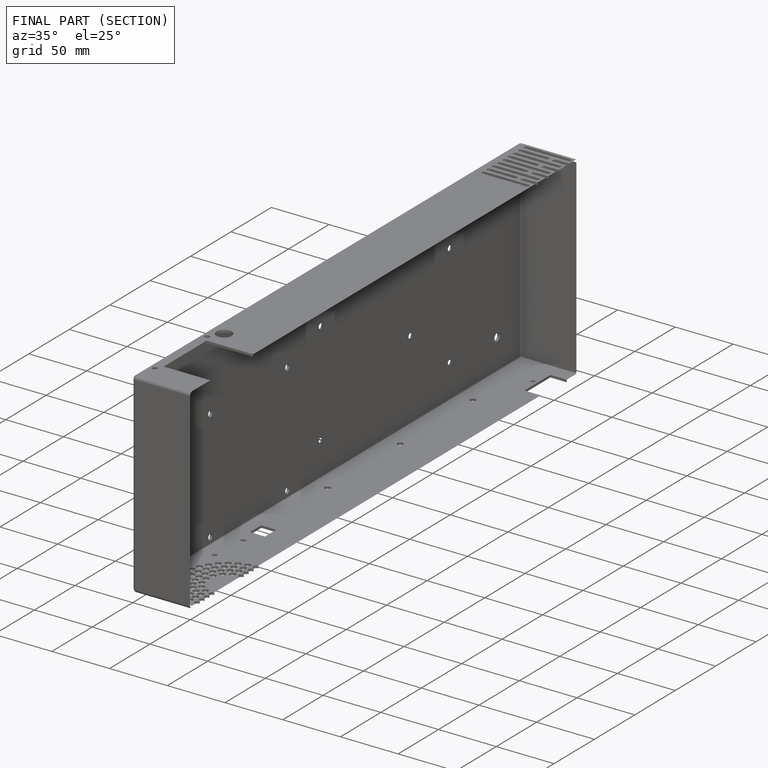
[diagram: finished part — half-section view (interior)]
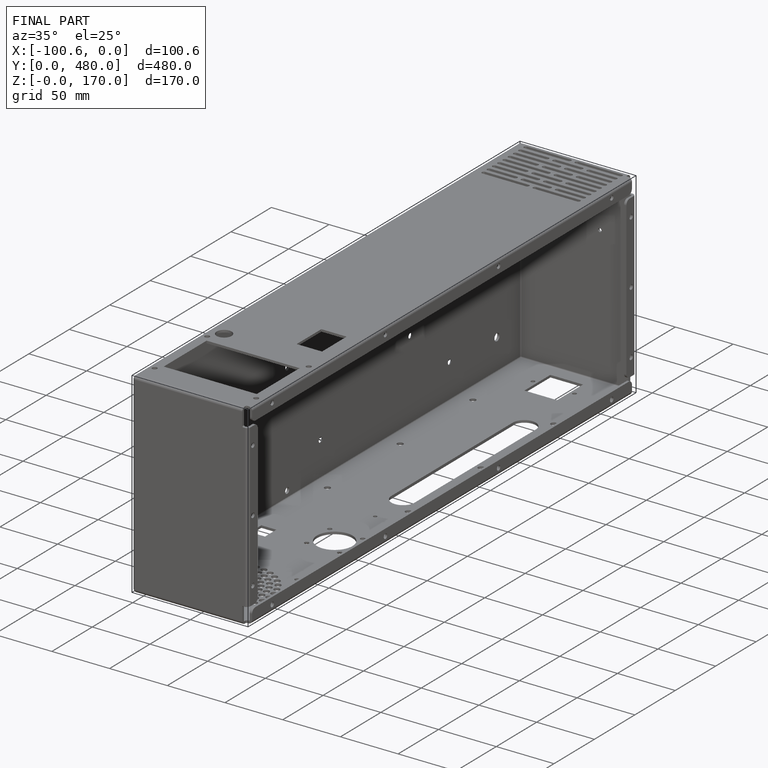
[diagram: finished part — iso view with bounding-box wireframe]
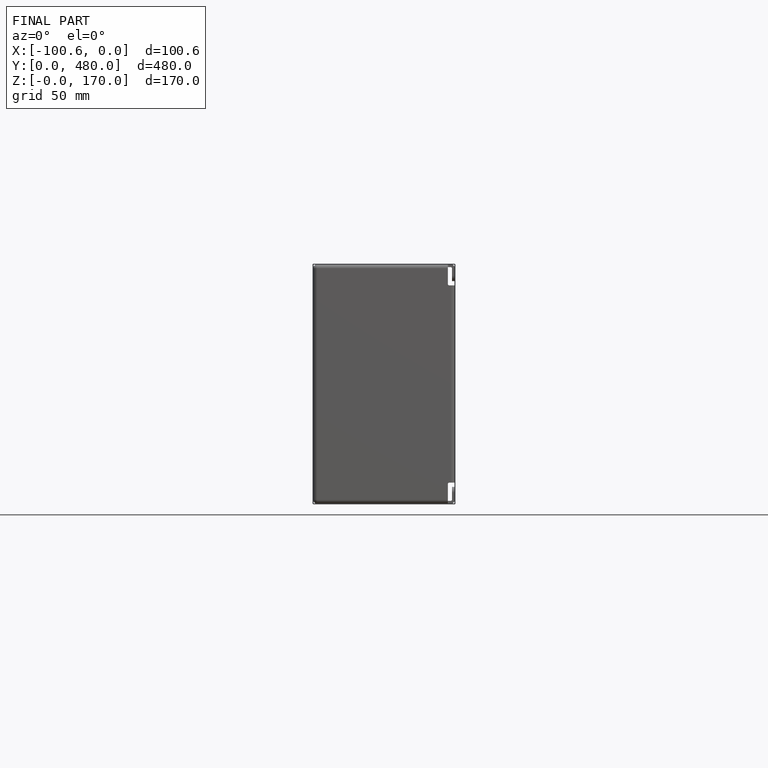
[diagram: finished part — front view with bounding-box wireframe]
